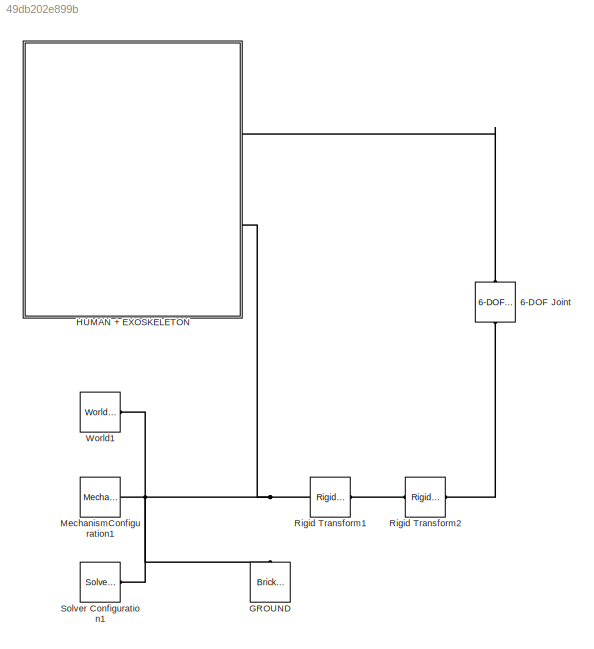
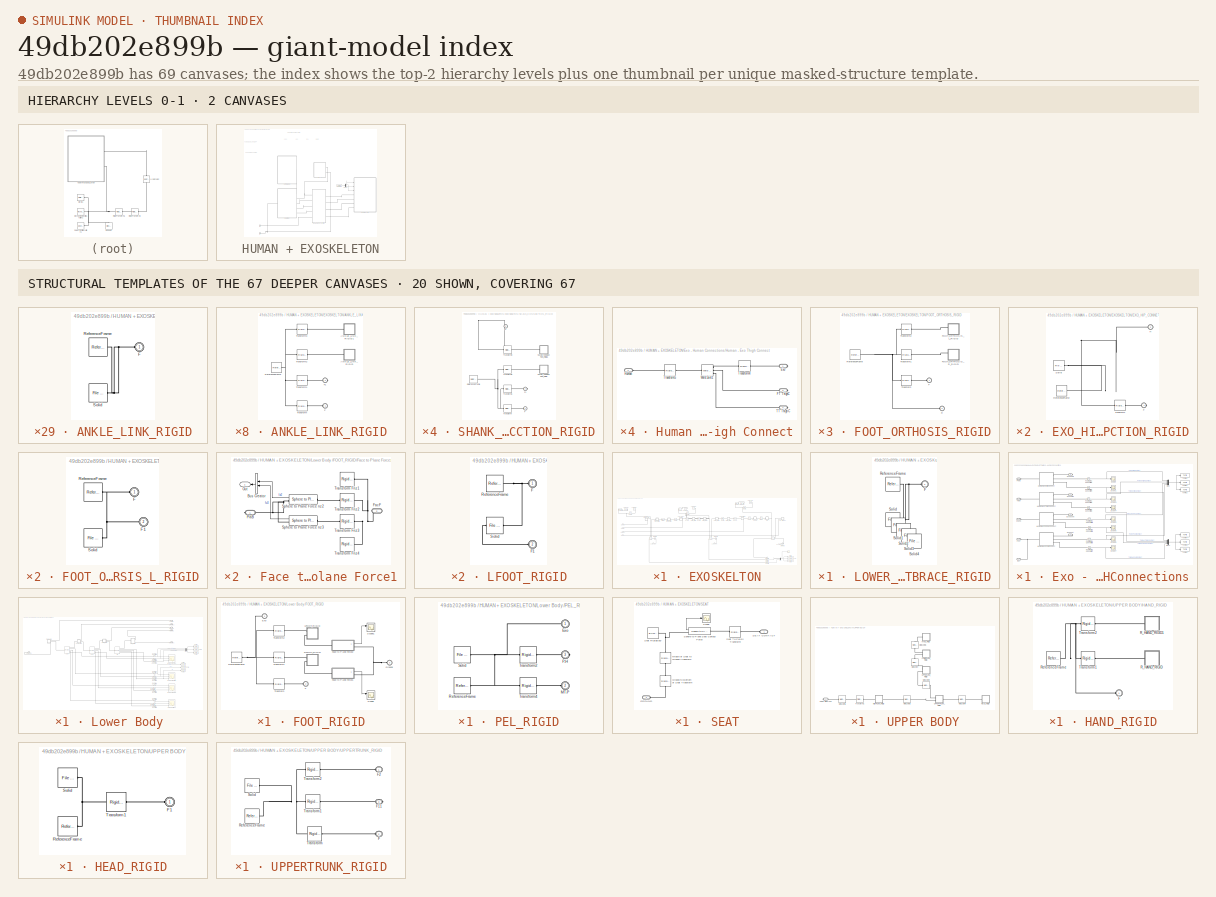
[diagram: thumbnail index - top-2 hierarchy levels (2 canvases) + 20 structural-template representatives of the remaining 67 canvases]
MODEL slx_49db202e899b
KIND model
CONFIG AbsTol = 1e-7
CONFIG EnableMultiTasking = off
CONFIG FixedStep = 0.001
CONFIG InitFcn = interpolating_angle_data;\nHuman_Plus_Exo_DataFile;
CONFIG MaxStep = 1e-2
CONFIG MinStep = auto
CONFIG RelTol = 1e-6
CONFIG SampleTimeConstraint = Unconstrained
CONFIG Solver = ode15s
CONFIG SolverName = ode15s
CONFIG StartTime = SimStart
CONFIG StopTime = SimStop
BLOCK [Reference] 6-DOF Joint  REF=sm_lib/Joints/6-DOF Joint
  Ports = [0, 0, 0, 0, 0, 1, 1]
  SourceBlock = sm_lib/Joints/6-DOF Joint
  SourceProductBaseCode = MS
  SourceProductName = Simscape Multibody
  SourceType = 6-DOF Joint
BLOCK [Reference] GROUND  REF=sm_lib/Body Elements/Brick Solid
  Ports = [0, 0, 0, 0, 0, 0, 1]
  SourceBlock = sm_lib/Body Elements/Brick Solid
  SourceProductBaseCode = MS
  SourceProductName = Simscape Multibody
  SourceType = Brick Solid
BLOCK [SubSystem] HUMAN + EXOSKELETON
  Ports = [0, 0, 0, 0, 0, 0, 2]
  RequestExecContextInheritance = off
BLOCK [Demux] HUMAN + EXOSKELETON/Demux
  DisplayOption = bar
  Outputs = 3
  Ports = [1, 3]
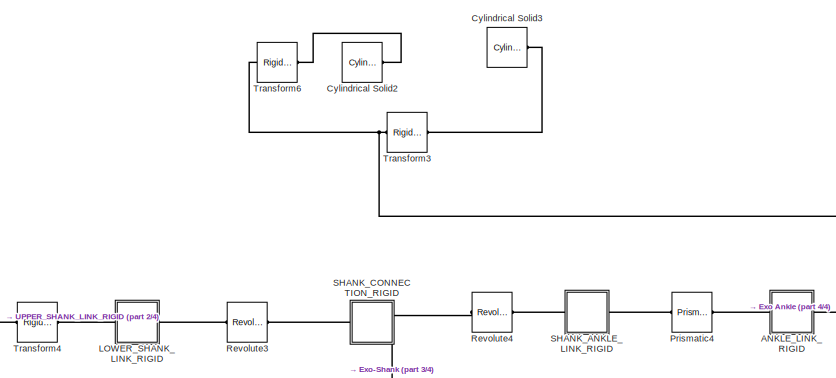
[diagram: HUMAN + EXOSKELETON/EXOSKELTON - part 1/4, top right region]
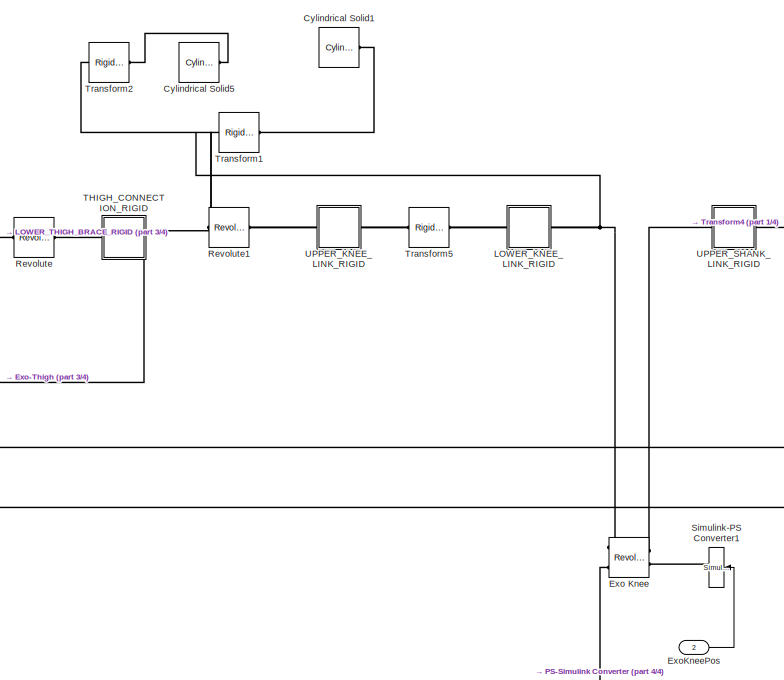
[diagram: HUMAN + EXOSKELETON/EXOSKELTON - part 2/4, central region]
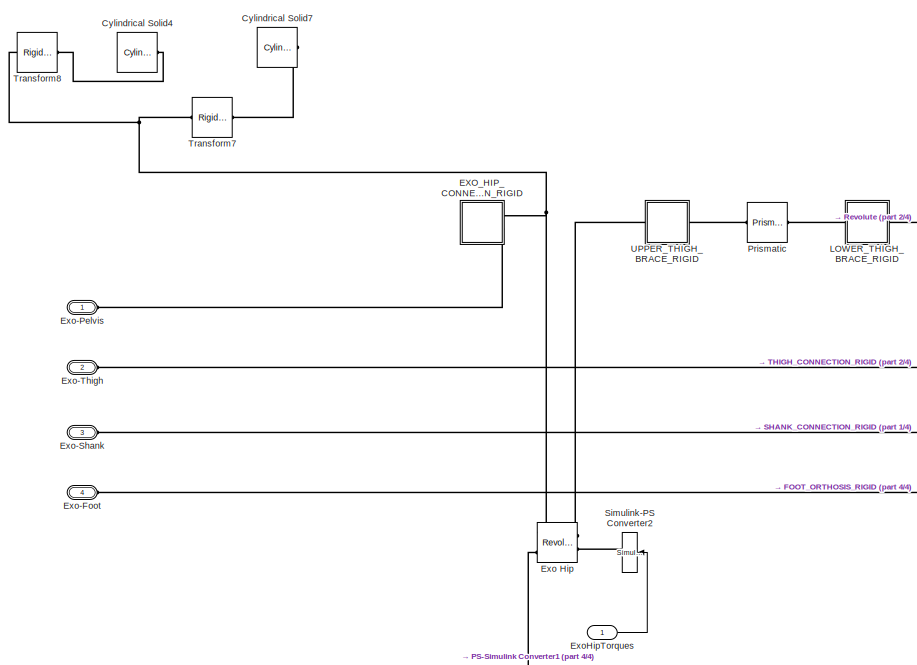
[diagram: HUMAN + EXOSKELETON/EXOSKELTON - part 3/4, middle left region]
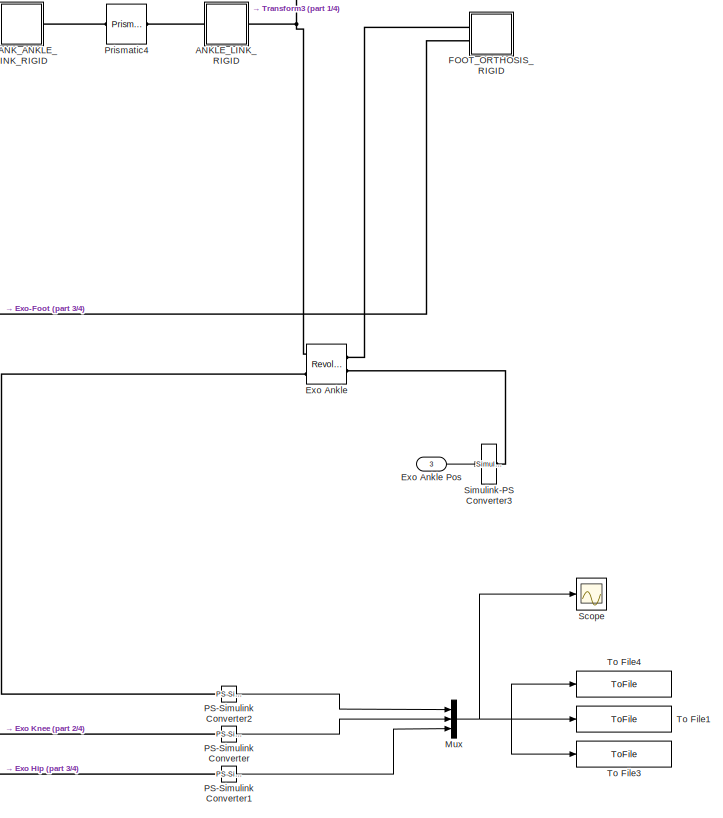
[diagram: HUMAN + EXOSKELETON/EXOSKELTON - part 4/4, middle right region]
BLOCK [SubSystem] HUMAN + EXOSKELETON/EXOSKELTON
  Ports = [3, 0, 0, 0, 0, 4]
  RequestExecContextInheritance = off
BLOCK [Inport] HUMAN + EXOSKELETON/EXOSKELTON/ Exo Ankle Pos
  IconDisplay = Port number
  Port = 3
BLOCK [SubSystem] HUMAN + EXOSKELETON/EXOSKELTON/ANKLE_LINK_RIGID
  Ports = [0, 0, 0, 0, 0, 1, 1]
  RequestExecContextInheritance = off
BLOCK [SubSystem] HUMAN + EXOSKELETON/EXOSKELTON/ANKLE_LINK_RIGID/ANKLE_LINK_RIGID
  Ports = [0, 0, 0, 0, 0, 1]
  RequestExecContextInheritance = off
BLOCK [PMIOPort] HUMAN + EXOSKELETON/EXOSKELTON/ANKLE_LINK_RIGID/ANKLE_LINK_RIGID/F
  Side = Left
BLOCK [Reference] HUMAN + EXOSKELETON/EXOSKELTON/ANKLE_LINK_RIGID/ANKLE_LINK_RIGID/ReferenceFrame  REF=sm_lib/Frames and
Transforms/Reference
Frame
  Ports = [0, 0, 0, 0, 0, 0, 1]
  SourceBlock = sm_lib/Frames and\nTransforms/Reference\nFrame
  SourceProductBaseCode = MS
  SourceProductName = Simscape Multibody
  SourceType = Reference\nFrame
BLOCK [Reference] HUMAN + EXOSKELETON/EXOSKELTON/ANKLE_LINK_RIGID/ANKLE_LINK_RIGID/Solid  REF=sm_lib/Body Elements/File Solid
  Ports = [0, 0, 0, 0, 0, 0, 1]
  SourceBlock = sm_lib/Body Elements/File Solid
  SourceProductBaseCode = MS
  SourceProductName = Simscape Multibody
  SourceType = File Solid
BLOCK [SubSystem] HUMAN + EXOSKELETON/EXOSKELTON/ANKLE_LINK_RIGID/ANKLE_LINK_RIGID1
  Ports = [0, 0, 0, 0, 0, 1]
  RequestExecContextInheritance = off
BLOCK [PMIOPort] HUMAN + EXOSKELETON/EXOSKELTON/ANKLE_LINK_RIGID/ANKLE_LINK_RIGID1/F
  Side = Left
BLOCK [Reference] HUMAN + EXOSKELETON/EXOSKELTON/ANKLE_LINK_RIGID/ANKLE_LINK_RIGID1/ReferenceFrame  REF=sm_lib/Frames and
Transforms/Reference
Frame
  Ports = [0, 0, 0, 0, 0, 0, 1]
  SourceBlock = sm_lib/Frames and\nTransforms/Reference\nFrame
  SourceProductBaseCode = MS
  SourceProductName = Simscape Multibody
  SourceType = Reference\nFrame
BLOCK [Reference] HUMAN + EXOSKELETON/EXOSKELTON/ANKLE_LINK_RIGID/ANKLE_LINK_RIGID1/Solid  REF=sm_lib/Body Elements/File Solid
  Ports = [0, 0, 0, 0, 0, 0, 1]
  SourceBlock = sm_lib/Body Elements/File Solid
  SourceProductBaseCode = MS
  SourceProductName = Simscape Multibody
  SourceType = File Solid
BLOCK [PMIOPort] HUMAN + EXOSKELETON/EXOSKELTON/ANKLE_LINK_RIGID/F
  Side = Left
BLOCK [PMIOPort] HUMAN + EXOSKELETON/EXOSKELTON/ANKLE_LINK_RIGID/F1
  Port = 2
  Side = Right
BLOCK [Reference] HUMAN + EXOSKELETON/EXOSKELTON/ANKLE_LINK_RIGID/ReferenceFrame  REF=sm_lib/Frames and
Transforms/Reference
Frame
  Ports = [0, 0, 0, 0, 0, 0, 1]
  SourceBlock = sm_lib/Frames and\nTransforms/Reference\nFrame
  SourceProductBaseCode = MS
  SourceProductName = Simscape Multibody
  SourceType = Reference\nFrame
BLOCK [Reference] HUMAN + EXOSKELETON/EXOSKELTON/ANKLE_LINK_RIGID/Transform  REF=sm_lib/Frames and
Transforms/Rigid
Transform
  Ports = [0, 0, 0, 0, 0, 1, 1]
  SourceBlock = sm_lib/Frames and\nTransforms/Rigid\nTransform
  SourceProductBaseCode = MS
  SourceProductName = Simscape Multibody
  SourceType = Rigid\nTransform
BLOCK [Reference] HUMAN + EXOSKELETON/EXOSKELTON/ANKLE_LINK_RIGID/Transform1  REF=sm_lib/Frames and
Transforms/Rigid
Transform
  Ports = [0, 0, 0, 0, 0, 1, 1]
  SourceBlock = sm_lib/Frames and\nTransforms/Rigid\nTransform
  SourceProductBaseCode = MS
  SourceProductName = Simscape Multibody
  SourceType = Rigid\nTransform
BLOCK [Reference] HUMAN + EXOSKELETON/EXOSKELTON/ANKLE_LINK_RIGID/Transform2  REF=sm_lib/Frames and
Transforms/Rigid
Transform
  Ports = [0, 0, 0, 0, 0, 1, 1]
  SourceBlock = sm_lib/Frames and\nTransforms/Rigid\nTransform
  SourceProductBaseCode = MS
  SourceProductName = Simscape Multibody
  SourceType = Rigid\nTransform
BLOCK [Reference] HUMAN + EXOSKELETON/EXOSKELTON/ANKLE_LINK_RIGID/Transform3  REF=sm_lib/Frames and
Transforms/Rigid
Transform
  Ports = [0, 0, 0, 0, 0, 1, 1]
  SourceBlock = sm_lib/Frames and\nTransforms/Rigid\nTransform
  SourceProductBaseCode = MS
  SourceProductName = Simscape Multibody
  SourceType = Rigid\nTransform
BLOCK [Reference] HUMAN + EXOSKELETON/EXOSKELTON/Cylindrical Solid1  REF=sm_lib/Body Elements/Cylindrical Solid
  Ports = [0, 0, 0, 0, 0, 1, 1]
  SourceBlock = sm_lib/Body Elements/Cylindrical Solid
  SourceProductBaseCode = MS
  SourceProductName = Simscape Multibody
  SourceType = Cylindrical Solid
BLOCK [Reference] HUMAN + EXOSKELETON/EXOSKELTON/Cylindrical Solid2  REF=sm_lib/Body Elements/Cylindrical Solid
  Ports = [0, 0, 0, 0, 0, 1, 1]
  SourceBlock = sm_lib/Body Elements/Cylindrical Solid
  SourceProductBaseCode = MS
  SourceProductName = Simscape Multibody
  SourceType = Cylindrical Solid
BLOCK [Reference] HUMAN + EXOSKELETON/EXOSKELTON/Cylindrical Solid3  REF=sm_lib/Body Elements/Cylindrical Solid
  Ports = [0, 0, 0, 0, 0, 1, 1]
  SourceBlock = sm_lib/Body Elements/Cylindrical Solid
  SourceProductBaseCode = MS
  SourceProductName = Simscape Multibody
  SourceType = Cylindrical Solid
BLOCK [Reference] HUMAN + EXOSKELETON/EXOSKELTON/Cylindrical Solid4  REF=sm_lib/Body Elements/Cylindrical Solid
  Ports = [0, 0, 0, 0, 0, 1, 1]
  SourceBlock = sm_lib/Body Elements/Cylindrical Solid
  SourceProductBaseCode = MS
  SourceProductName = Simscape Multibody
  SourceType = Cylindrical Solid
BLOCK [Reference] HUMAN + EXOSKELETON/EXOSKELTON/Cylindrical Solid5  REF=sm_lib/Body Elements/Cylindrical Solid
  Ports = [0, 0, 0, 0, 0, 1, 1]
  SourceBlock = sm_lib/Body Elements/Cylindrical Solid
  SourceProductBaseCode = MS
  SourceProductName = Simscape Multibody
  SourceType = Cylindrical Solid
BLOCK [Reference] HUMAN + EXOSKELETON/EXOSKELTON/Cylindrical Solid7  REF=sm_lib/Body Elements/Cylindrical Solid
  Ports = [0, 0, 0, 0, 0, 1, 1]
  SourceBlock = sm_lib/Body Elements/Cylindrical Solid
  SourceProductBaseCode = MS
  SourceProductName = Simscape Multibody
  SourceType = Cylindrical Solid
BLOCK [SubSystem] HUMAN + EXOSKELETON/EXOSKELTON/EXO_HIP_CONNECTION_RIGID
  Ports = [0, 0, 0, 0, 0, 0, 2]
  RequestExecContextInheritance = off
BLOCK [PMIOPort] HUMAN + EXOSKELETON/EXOSKELTON/EXO_HIP_CONNECTION_RIGID/F
  Side = Right
BLOCK [PMIOPort] HUMAN + EXOSKELETON/EXOSKELTON/EXO_HIP_CONNECTION_RIGID/H
  Port = 2
  Side = Right
BLOCK [Reference] HUMAN + EXOSKELETON/EXOSKELTON/EXO_HIP_CONNECTION_RIGID/ReferenceFrame  REF=sm_lib/Frames and
Transforms/Reference
Frame
  Ports = [0, 0, 0, 0, 0, 0, 1]
  SourceBlock = sm_lib/Frames and\nTransforms/Reference\nFrame
  SourceProductBaseCode = MS
  SourceProductName = Simscape Multibody
  SourceType = Reference\nFrame
BLOCK [Reference] HUMAN + EXOSKELETON/EXOSKELTON/EXO_HIP_CONNECTION_RIGID/Solid  REF=sm_lib/Body Elements/File Solid
  Ports = [0, 0, 0, 0, 0, 0, 1]
  SourceBlock = sm_lib/Body Elements/File Solid
  SourceProductBaseCode = MS
  SourceProductName = Simscape Multibody
  SourceType = File Solid
BLOCK [Reference] HUMAN + EXOSKELETON/EXOSKELTON/EXO_HIP_CONNECTION_RIGID/Transform  REF=sm_lib/Frames and
Transforms/Rigid
Transform
  Ports = [0, 0, 0, 0, 0, 1, 1]
  SourceBlock = sm_lib/Frames and\nTransforms/Rigid\nTransform
  SourceProductBaseCode = MS
  SourceProductName = Simscape Multibody
  SourceType = Rigid\nTransform
BLOCK [Reference] HUMAN + EXOSKELETON/EXOSKELTON/Exo Ankle  REF=sm_lib/Joints/Revolute Joint
  Ports = [0, 0, 0, 0, 0, 2, 3]
  SourceBlock = sm_lib/Joints/Revolute Joint
  SourceProductBaseCode = MS
  SourceProductName = Simscape Multibody
  SourceType = Revolute Joint
BLOCK [Reference] HUMAN + EXOSKELETON/EXOSKELTON/Exo Hip  REF=sm_lib/Joints/Revolute Joint
  Ports = [0, 0, 0, 0, 0, 2, 3]
  SourceBlock = sm_lib/Joints/Revolute Joint
  SourceProductBaseCode = MS
  SourceProductName = Simscape Multibody
  SourceType = Revolute Joint
BLOCK [Reference] HUMAN + EXOSKELETON/EXOSKELTON/Exo Knee  REF=sm_lib/Joints/Revolute Joint
  Ports = [0, 0, 0, 0, 0, 2, 3]
  SourceBlock = sm_lib/Joints/Revolute Joint
  SourceProductBaseCode = MS
  SourceProductName = Simscape Multibody
  SourceType = Revolute Joint
BLOCK [PMIOPort] HUMAN + EXOSKELETON/EXOSKELTON/Exo-Foot
  Port = 4
  Side = Left
BLOCK [PMIOPort] HUMAN + EXOSKELETON/EXOSKELTON/Exo-Pelvis
  Side = Left
BLOCK [PMIOPort] HUMAN + EXOSKELETON/EXOSKELTON/Exo-Shank
  Port = 3
  Side = Left
BLOCK [PMIOPort] HUMAN + EXOSKELETON/EXOSKELTON/Exo-Thigh
  Port = 2
  Side = Left
BLOCK [Inport] HUMAN + EXOSKELETON/EXOSKELTON/ExoHipTorques
  IconDisplay = Port number
BLOCK [Inport] HUMAN + EXOSKELETON/EXOSKELTON/ExoKneePos
  IconDisplay = Port number
  Port = 2
BLOCK [SubSystem] HUMAN + EXOSKELETON/EXOSKELTON/FOOT_ORTHOSIS_RIGID
  Ports = [0, 0, 0, 0, 0, 2]
  RequestExecContextInheritance = off
BLOCK [PMIOPort] HUMAN + EXOSKELETON/EXOSKELTON/FOOT_ORTHOSIS_RIGID/F
  Side = Left
BLOCK [SubSystem] HUMAN + EXOSKELETON/EXOSKELTON/FOOT_ORTHOSIS_RIGID/FOOT_ORTHOSIS_L_RIGID
  Ports = [0, 0, 0, 0, 0, 2]
  RequestExecContextInheritance = off
BLOCK [PMIOPort] HUMAN + EXOSKELETON/EXOSKELTON/FOOT_ORTHOSIS_RIGID/FOOT_ORTHOSIS_L_RIGID/F
  Side = Left
BLOCK [PMIOPort] HUMAN + EXOSKELETON/EXOSKELTON/FOOT_ORTHOSIS_RIGID/FOOT_ORTHOSIS_L_RIGID/F1
  Port = 2
  Side = Left
BLOCK [Reference] HUMAN + EXOSKELETON/EXOSKELTON/FOOT_ORTHOSIS_RIGID/FOOT_ORTHOSIS_L_RIGID/ReferenceFrame  REF=sm_lib/Frames and
Transforms/Reference
Frame
  Ports = [0, 0, 0, 0, 0, 0, 1]
  SourceBlock = sm_lib/Frames and\nTransforms/Reference\nFrame
  SourceProductBaseCode = MS
  SourceProductName = Simscape Multibody
  SourceType = Reference\nFrame
BLOCK [Reference] HUMAN + EXOSKELETON/EXOSKELTON/FOOT_ORTHOSIS_RIGID/FOOT_ORTHOSIS_L_RIGID/Solid  REF=sm_lib/Body Elements/File Solid
  Ports = [0, 0, 0, 0, 0, 0, 1]
  SourceBlock = sm_lib/Body Elements/File Solid
  SourceProductBaseCode = MS
  SourceProductName = Simscape Multibody
  SourceType = File Solid
BLOCK [SubSystem] HUMAN + EXOSKELETON/EXOSKELTON/FOOT_ORTHOSIS_RIGID/FOOT_ORTHOSIS_R_RIGID
  Ports = [0, 0, 0, 0, 0, 2]
  RequestExecContextInheritance = off
BLOCK [PMIOPort] HUMAN + EXOSKELETON/EXOSKELTON/FOOT_ORTHOSIS_RIGID/FOOT_ORTHOSIS_R_RIGID/F
  Side = Left
BLOCK [PMIOPort] HUMAN + EXOSKELETON/EXOSKELTON/FOOT_ORTHOSIS_RIGID/FOOT_ORTHOSIS_R_RIGID/F1
  Port = 2
  Side = Left
BLOCK [Reference] HUMAN + EXOSKELETON/EXOSKELTON/FOOT_ORTHOSIS_RIGID/FOOT_ORTHOSIS_R_RIGID/ReferenceFrame  REF=sm_lib/Frames and
Transforms/Reference
Frame
  Ports = [0, 0, 0, 0, 0, 0, 1]
  SourceBlock = sm_lib/Frames and\nTransforms/Reference\nFrame
  SourceProductBaseCode = MS
  SourceProductName = Simscape Multibody
  SourceType = Reference\nFrame
BLOCK [Reference] HUMAN + EXOSKELETON/EXOSKELTON/FOOT_ORTHOSIS_RIGID/FOOT_ORTHOSIS_R_RIGID/Solid  REF=sm_lib/Body Elements/File Solid
  Ports = [0, 0, 0, 0, 0, 0, 1]
  SourceBlock = sm_lib/Body Elements/File Solid
  SourceProductBaseCode = MS
  SourceProductName = Simscape Multibody
  SourceType = File Solid
BLOCK [PMIOPort] HUMAN + EXOSKELETON/EXOSKELTON/FOOT_ORTHOSIS_RIGID/R
  Port = 2
  Side = Left
BLOCK [Reference] HUMAN + EXOSKELETON/EXOSKELTON/FOOT_ORTHOSIS_RIGID/ReferenceFrame  REF=sm_lib/Frames and
Transforms/Reference
Frame
  Ports = [0, 0, 0, 0, 0, 0, 1]
  SourceBlock = sm_lib/Frames and\nTransforms/Reference\nFrame
  SourceProductBaseCode = MS
  SourceProductName = Simscape Multibody
  SourceType = Reference\nFrame
BLOCK [Reference] HUMAN + EXOSKELETON/EXOSKELTON/FOOT_ORTHOSIS_RIGID/Transform  REF=sm_lib/Frames and
Transforms/Rigid
Transform
  Ports = [0, 0, 0, 0, 0, 1, 1]
  SourceBlock = sm_lib/Frames and\nTransforms/Rigid\nTransform
  SourceProductBaseCode = MS
  SourceProductName = Simscape Multibody
  SourceType = Rigid\nTransform
BLOCK [Reference] HUMAN + EXOSKELETON/EXOSKELTON/FOOT_ORTHOSIS_RIGID/Transform1  REF=sm_lib/Frames and
Transforms/Rigid
Transform
  Ports = [0, 0, 0, 0, 0, 1, 1]
  SourceBlock = sm_lib/Frames and\nTransforms/Rigid\nTransform
  SourceProductBaseCode = MS
  SourceProductName = Simscape Multibody
  SourceType = Rigid\nTransform
BLOCK [Reference] HUMAN + EXOSKELETON/EXOSKELTON/FOOT_ORTHOSIS_RIGID/Transform2  REF=sm_lib/Frames and
Transforms/Rigid
Transform
  Ports = [0, 0, 0, 0, 0, 1, 1]
  SourceBlock = sm_lib/Frames and\nTransforms/Rigid\nTransform
  SourceProductBaseCode = MS
  SourceProductName = Simscape Multibody
  SourceType = Rigid\nTransform
BLOCK [SubSystem] HUMAN + EXOSKELETON/EXOSKELTON/LOWER_KNEE_LINK_RIGID
  Ports = [0, 0, 0, 0, 0, 1, 1]
  RequestExecContextInheritance = off
BLOCK [PMIOPort] HUMAN + EXOSKELETON/EXOSKELTON/LOWER_KNEE_LINK_RIGID/F
  Side = Left
BLOCK [PMIOPort] HUMAN + EXOSKELETON/EXOSKELTON/LOWER_KNEE_LINK_RIGID/F1
  Port = 2
  Side = Right
BLOCK [SubSystem] HUMAN + EXOSKELETON/EXOSKELTON/LOWER_KNEE_LINK_RIGID/LOWER_KNEE_LINK_RIGID
  Ports = [0, 0, 0, 0, 0, 1]
  RequestExecContextInheritance = off
BLOCK [PMIOPort] HUMAN + EXOSKELETON/EXOSKELTON/LOWER_KNEE_LINK_RIGID/LOWER_KNEE_LINK_RIGID/F
  Side = Left
BLOCK [Reference] HUMAN + EXOSKELETON/EXOSKELTON/LOWER_KNEE_LINK_RIGID/LOWER_KNEE_LINK_RIGID/ReferenceFrame  REF=sm_lib/Frames and
Transforms/Reference
Frame
  Ports = [0, 0, 0, 0, 0, 0, 1]
  SourceBlock = sm_lib/Frames and\nTransforms/Reference\nFrame
  SourceProductBaseCode = MS
  SourceProductName = Simscape Multibody
  SourceType = Reference\nFrame
BLOCK [Reference] HUMAN + EXOSKELETON/EXOSKELTON/LOWER_KNEE_LINK_RIGID/LOWER_KNEE_LINK_RIGID/Solid  REF=sm_lib/Body Elements/File Solid
  Ports = [0, 0, 0, 0, 0, 0, 1]
  SourceBlock = sm_lib/Body Elements/File Solid
  SourceProductBaseCode = MS
  SourceProductName = Simscape Multibody
  SourceType = File Solid
BLOCK [SubSystem] HUMAN + EXOSKELETON/EXOSKELTON/LOWER_KNEE_LINK_RIGID/LOWER_KNEE_LINK_RIGID1
  Ports = [0, 0, 0, 0, 0, 1]
  RequestExecContextInheritance = off
BLOCK [PMIOPort] HUMAN + EXOSKELETON/EXOSKELTON/LOWER_KNEE_LINK_RIGID/LOWER_KNEE_LINK_RIGID1/F
  Side = Left
BLOCK [Reference] HUMAN + EXOSKELETON/EXOSKELTON/LOWER_KNEE_LINK_RIGID/LOWER_KNEE_LINK_RIGID1/ReferenceFrame  REF=sm_lib/Frames and
Transforms/Reference
Frame
  Ports = [0, 0, 0, 0, 0, 0, 1]
  SourceBlock = sm_lib/Frames and\nTransforms/Reference\nFrame
  SourceProductBaseCode = MS
  SourceProductName = Simscape Multibody
  SourceType = Reference\nFrame
BLOCK [Reference] HUMAN + EXOSKELETON/EXOSKELTON/LOWER_KNEE_LINK_RIGID/LOWER_KNEE_LINK_RIGID1/Solid  REF=sm_lib/Body Elements/File Solid
  Ports = [0, 0, 0, 0, 0, 0, 1]
  SourceBlock = sm_lib/Body Elements/File Solid
  SourceProductBaseCode = MS
  SourceProductName = Simscape Multibody
  SourceType = File Solid
BLOCK [Reference] HUMAN + EXOSKELETON/EXOSKELTON/LOWER_KNEE_LINK_RIGID/ReferenceFrame  REF=sm_lib/Frames and
Transforms/Reference
Frame
  Ports = [0, 0, 0, 0, 0, 0, 1]
  SourceBlock = sm_lib/Frames and\nTransforms/Reference\nFrame
  SourceProductBaseCode = MS
  SourceProductName = Simscape Multibody
  SourceType = Reference\nFrame
BLOCK [Reference] HUMAN + EXOSKELETON/EXOSKELTON/LOWER_KNEE_LINK_RIGID/Transform  REF=sm_lib/Frames and
Transforms/Rigid
Transform
  Ports = [0, 0, 0, 0, 0, 1, 1]
  SourceBlock = sm_lib/Frames and\nTransforms/Rigid\nTransform
  SourceProductBaseCode = MS
  SourceProductName = Simscape Multibody
  SourceType = Rigid\nTransform
BLOCK [Reference] HUMAN + EXOSKELETON/EXOSKELTON/LOWER_KNEE_LINK_RIGID/Transform1  REF=sm_lib/Frames and
Transforms/Rigid
Transform
  Ports = [0, 0, 0, 0, 0, 1, 1]
  SourceBlock = sm_lib/Frames and\nTransforms/Rigid\nTransform
  SourceProductBaseCode = MS
  SourceProductName = Simscape Multibody
  SourceType = Rigid\nTransform
BLOCK [Reference] HUMAN + EXOSKELETON/EXOSKELTON/LOWER_KNEE_LINK_RIGID/Transform2  REF=sm_lib/Frames and
Transforms/Rigid
Transform
  Ports = [0, 0, 0, 0, 0, 1, 1]
  SourceBlock = sm_lib/Frames and\nTransforms/Rigid\nTransform
  SourceProductBaseCode = MS
  SourceProductName = Simscape Multibody
  SourceType = Rigid\nTransform
BLOCK [Reference] HUMAN + EXOSKELETON/EXOSKELTON/LOWER_KNEE_LINK_RIGID/Transform3  REF=sm_lib/Frames and
Transforms/Rigid
Transform
  Ports = [0, 0, 0, 0, 0, 1, 1]
  SourceBlock = sm_lib/Frames and\nTransforms/Rigid\nTransform
  SourceProductBaseCode = MS
  SourceProductName = Simscape Multibody
  SourceType = Rigid\nTransform
BLOCK [SubSystem] HUMAN + EXOSKELETON/EXOSKELTON/LOWER_SHANK_LINK_RIGID
  Ports = [0, 0, 0, 0, 0, 1, 1]
  RequestExecContextInheritance = off
BLOCK [PMIOPort] HUMAN + EXOSKELETON/EXOSKELTON/LOWER_SHANK_LINK_RIGID/F
  Side = Left
BLOCK [PMIOPort] HUMAN + EXOSKELETON/EXOSKELTON/LOWER_SHANK_LINK_RIGID/F1
  Port = 2
  Side = Right
BLOCK [SubSystem] HUMAN + EXOSKELETON/EXOSKELTON/LOWER_SHANK_LINK_RIGID/LOWER_SHANK_LINK_RIGID
  Ports = [0, 0, 0, 0, 0, 1]
  RequestExecContextInheritance = off
BLOCK [PMIOPort] HUMAN + EXOSKELETON/EXOSKELTON/LOWER_SHANK_LINK_RIGID/LOWER_SHANK_LINK_RIGID/F
  Side = Left
BLOCK [Reference] HUMAN + EXOSKELETON/EXOSKELTON/LOWER_SHANK_LINK_RIGID/LOWER_SHANK_LINK_RIGID/ReferenceFrame  REF=sm_lib/Frames and
Transforms/Reference
Frame
  Ports = [0, 0, 0, 0, 0, 0, 1]
  SourceBlock = sm_lib/Frames and\nTransforms/Reference\nFrame
  SourceProductBaseCode = MS
  SourceProductName = Simscape Multibody
  SourceType = Reference\nFrame
BLOCK [Reference] HUMAN + EXOSKELETON/EXOSKELTON/LOWER_SHANK_LINK_RIGID/LOWER_SHANK_LINK_RIGID/Solid  REF=sm_lib/Body Elements/File Solid
  Ports = [0, 0, 0, 0, 0, 0, 1]
  SourceBlock = sm_lib/Body Elements/File Solid
  SourceProductBaseCode = MS
  SourceProductName = Simscape Multibody
  SourceType = File Solid
BLOCK [SubSystem] HUMAN + EXOSKELETON/EXOSKELTON/LOWER_SHANK_LINK_RIGID/LOWER_SHANK_LINK_RIGID1
  Ports = [0, 0, 0, 0, 0, 1]
  RequestExecContextInheritance = off
BLOCK [PMIOPort] HUMAN + EXOSKELETON/EXOSKELTON/LOWER_SHANK_LINK_RIGID/LOWER_SHANK_LINK_RIGID1/F
  Side = Left
BLOCK [Reference] HUMAN + EXOSKELETON/EXOSKELTON/LOWER_SHANK_LINK_RIGID/LOWER_SHANK_LINK_RIGID1/ReferenceFrame  REF=sm_lib/Frames and
Transforms/Reference
Frame
  Ports = [0, 0, 0, 0, 0, 0, 1]
  SourceBlock = sm_lib/Frames and\nTransforms/Reference\nFrame
  SourceProductBaseCode = MS
  SourceProductName = Simscape Multibody
  SourceType = Reference\nFrame
BLOCK [Reference] HUMAN + EXOSKELETON/EXOSKELTON/LOWER_SHANK_LINK_RIGID/LOWER_SHANK_LINK_RIGID1/Solid  REF=sm_lib/Body Elements/File Solid
  Ports = [0, 0, 0, 0, 0, 0, 1]
  SourceBlock = sm_lib/Body Elements/File Solid
  SourceProductBaseCode = MS
  SourceProductName = Simscape Multibody
  SourceType = File Solid
BLOCK [Reference] HUMAN + EXOSKELETON/EXOSKELTON/LOWER_SHANK_LINK_RIGID/ReferenceFrame  REF=sm_lib/Frames and
Transforms/Reference
Frame
  Ports = [0, 0, 0, 0, 0, 0, 1]
  SourceBlock = sm_lib/Frames and\nTransforms/Reference\nFrame
  SourceProductBaseCode = MS
  SourceProductName = Simscape Multibody
  SourceType = Reference\nFrame
BLOCK [Reference] HUMAN + EXOSKELETON/EXOSKELTON/LOWER_SHANK_LINK_RIGID/Transform  REF=sm_lib/Frames and
Transforms/Rigid
Transform
  Ports = [0, 0, 0, 0, 0, 1, 1]
  SourceBlock = sm_lib/Frames and\nTransforms/Rigid\nTransform
  SourceProductBaseCode = MS
  SourceProductName = Simscape Multibody
  SourceType = Rigid\nTransform
BLOCK [Reference] HUMAN + EXOSKELETON/EXOSKELTON/LOWER_SHANK_LINK_RIGID/Transform1  REF=sm_lib/Frames and
Transforms/Rigid
Transform
  Ports = [0, 0, 0, 0, 0, 1, 1]
  SourceBlock = sm_lib/Frames and\nTransforms/Rigid\nTransform
  SourceProductBaseCode = MS
  SourceProductName = Simscape Multibody
  SourceType = Rigid\nTransform
BLOCK [Reference] HUMAN + EXOSKELETON/EXOSKELTON/LOWER_SHANK_LINK_RIGID/Transform2  REF=sm_lib/Frames and
Transforms/Rigid
Transform
  Ports = [0, 0, 0, 0, 0, 1, 1]
  SourceBlock = sm_lib/Frames and\nTransforms/Rigid\nTransform
  SourceProductBaseCode = MS
  SourceProductName = Simscape Multibody
  SourceType = Rigid\nTransform
BLOCK [Reference] HUMAN + EXOSKELETON/EXOSKELTON/LOWER_SHANK_LINK_RIGID/Transform3  REF=sm_lib/Frames and
Transforms/Rigid
Transform
  Ports = [0, 0, 0, 0, 0, 1, 1]
  SourceBlock = sm_lib/Frames and\nTransforms/Rigid\nTransform
  SourceProductBaseCode = MS
  SourceProductName = Simscape Multibody
  SourceType = Rigid\nTransform
BLOCK [SubSystem] HUMAN + EXOSKELETON/EXOSKELTON/LOWER_THIGH_BRACE_RIGID
  Ports = [0, 0, 0, 0, 0, 1, 1]
  RequestExecContextInheritance = off
BLOCK [PMIOPort] HUMAN + EXOSKELETON/EXOSKELTON/LOWER_THIGH_BRACE_RIGID/F
  Side = Left
BLOCK [PMIOPort] HUMAN + EXOSKELETON/EXOSKELTON/LOWER_THIGH_BRACE_RIGID/F1
  Port = 2
  Side = Right
BLOCK [SubSystem] HUMAN + EXOSKELETON/EXOSKELTON/LOWER_THIGH_BRACE_RIGID/LOWER_THIGH_BRACE_RIGID
  Ports = [0, 0, 0, 0, 0, 1]
  RequestExecContextInheritance = off
BLOCK [PMIOPort] HUMAN + EXOSKELETON/EXOSKELTON/LOWER_THIGH_BRACE_RIGID/LOWER_THIGH_BRACE_RIGID/F
  Side = Left
BLOCK [Reference] HUMAN + EXOSKELETON/EXOSKELTON/LOWER_THIGH_BRACE_RIGID/LOWER_THIGH_BRACE_RIGID/ReferenceFrame  REF=sm_lib/Frames and
Transforms/Reference
Frame
  Ports = [0, 0, 0, 0, 0, 0, 1]
  SourceBlock = sm_lib/Frames and\nTransforms/Reference\nFrame
  SourceProductBaseCode = MS
  SourceProductName = Simscape Multibody
  SourceType = Reference\nFrame
BLOCK [Reference] HUMAN + EXOSKELETON/EXOSKELTON/LOWER_THIGH_BRACE_RIGID/LOWER_THIGH_BRACE_RIGID/Solid  REF=sm_lib/Body Elements/File Solid
  Ports = [0, 0, 0, 0, 0, 0, 1]
  SourceBlock = sm_lib/Body Elements/File Solid
  SourceProductBaseCode = MS
  SourceProductName = Simscape Multibody
  SourceType = File Solid
BLOCK [Reference] HUMAN + EXOSKELETON/EXOSKELTON/LOWER_THIGH_BRACE_RIGID/LOWER_THIGH_BRACE_RIGID/Solid1  REF=sm_lib/Body Elements/File Solid
  Ports = [0, 0, 0, 0, 0, 0, 1]
  SourceBlock = sm_lib/Body Elements/File Solid
  SourceProductBaseCode = MS
  SourceProductName = Simscape Multibody
  SourceType = File Solid
BLOCK [Reference] HUMAN + EXOSKELETON/EXOSKELTON/LOWER_THIGH_BRACE_RIGID/LOWER_THIGH_BRACE_RIGID/Solid2  REF=sm_lib/Body Elements/File Solid
  Ports = [0, 0, 0, 0, 0, 0, 1]
  SourceBlock = sm_lib/Body Elements/File Solid
  SourceProductBaseCode = MS
  SourceProductName = Simscape Multibody
  SourceType = File Solid
BLOCK [Reference] HUMAN + EXOSKELETON/EXOSKELTON/LOWER_THIGH_BRACE_RIGID/LOWER_THIGH_BRACE_RIGID/Solid3  REF=sm_lib/Body Elements/File Solid
  Ports = [0, 0, 0, 0, 0, 0, 1]
  SourceBlock = sm_lib/Body Elements/File Solid
  SourceProductBaseCode = MS
  SourceProductName = Simscape Multibody
  SourceType = File Solid
BLOCK [Reference] HUMAN + EXOSKELETON/EXOSKELTON/LOWER_THIGH_BRACE_RIGID/LOWER_THIGH_BRACE_RIGID/Solid4  REF=sm_lib/Body Elements/File Solid
  Ports = [0, 0, 0, 0, 0, 0, 1]
  SourceBlock = sm_lib/Body Elements/File Solid
  SourceProductBaseCode = MS
  SourceProductName = Simscape Multibody
  SourceType = File Solid
BLOCK [SubSystem] HUMAN + EXOSKELETON/EXOSKELTON/LOWER_THIGH_BRACE_RIGID/LOWER_THIGH_BRACE_RIGID1
  Ports = [0, 0, 0, 0, 0, 1]
  RequestExecContextInheritance = off
BLOCK [PMIOPort] HUMAN + EXOSKELETON/EXOSKELTON/LOWER_THIGH_BRACE_RIGID/LOWER_THIGH_BRACE_RIGID1/F
  Side = Left
BLOCK [Reference] HUMAN + EXOSKELETON/EXOSKELTON/LOWER_THIGH_BRACE_RIGID/LOWER_THIGH_BRACE_RIGID1/ReferenceFrame  REF=sm_lib/Frames and
Transforms/Reference
Frame
  Ports = [0, 0, 0, 0, 0, 0, 1]
  SourceBlock = sm_lib/Frames and\nTransforms/Reference\nFrame
  SourceProductBaseCode = MS
  SourceProductName = Simscape Multibody
  SourceType = Reference\nFrame
BLOCK [Reference] HUMAN + EXOSKELETON/EXOSKELTON/LOWER_THIGH_BRACE_RIGID/LOWER_THIGH_BRACE_RIGID1/Solid  REF=sm_lib/Body Elements/File Solid
  Ports = [0, 0, 0, 0, 0, 0, 1]
  SourceBlock = sm_lib/Body Elements/File Solid
  SourceProductBaseCode = MS
  SourceProductName = Simscape Multibody
  SourceType = File Solid
BLOCK [Reference] HUMAN + EXOSKELETON/EXOSKELTON/LOWER_THIGH_BRACE_RIGID/ReferenceFrame  REF=sm_lib/Frames and
Transforms/Reference
Frame
  Ports = [0, 0, 0, 0, 0, 0, 1]
  SourceBlock = sm_lib/Frames and\nTransforms/Reference\nFrame
  SourceProductBaseCode = MS
  SourceProductName = Simscape Multibody
  SourceType = Reference\nFrame
BLOCK [Reference] HUMAN + EXOSKELETON/EXOSKELTON/LOWER_THIGH_BRACE_RIGID/Transform  REF=sm_lib/Frames and
Transforms/Rigid
Transform
  Ports = [0, 0, 0, 0, 0, 1, 1]
  SourceBlock = sm_lib/Frames and\nTransforms/Rigid\nTransform
  SourceProductBaseCode = MS
  SourceProductName = Simscape Multibody
  SourceType = Rigid\nTransform
BLOCK [Reference] HUMAN + EXOSKELETON/EXOSKELTON/LOWER_THIGH_BRACE_RIGID/Transform1  REF=sm_lib/Frames and
Transforms/Rigid
Transform
  Ports = [0, 0, 0, 0, 0, 1, 1]
  SourceBlock = sm_lib/Frames and\nTransforms/Rigid\nTransform
  SourceProductBaseCode = MS
  SourceProductName = Simscape Multibody
  SourceType = Rigid\nTransform
BLOCK [Reference] HUMAN + EXOSKELETON/EXOSKELTON/LOWER_THIGH_BRACE_RIGID/Transform2  REF=sm_lib/Frames and
Transforms/Rigid
Transform
  Ports = [0, 0, 0, 0, 0, 1, 1]
  SourceBlock = sm_lib/Frames and\nTransforms/Rigid\nTransform
  SourceProductBaseCode = MS
  SourceProductName = Simscape Multibody
  SourceType = Rigid\nTransform
BLOCK [Reference] HUMAN + EXOSKELETON/EXOSKELTON/LOWER_THIGH_BRACE_RIGID/Transform3  REF=sm_lib/Frames and
Transforms/Rigid
Transform
  Ports = [0, 0, 0, 0, 0, 1, 1]
  SourceBlock = sm_lib/Frames and\nTransforms/Rigid\nTransform
  SourceProductBaseCode = MS
  SourceProductName = Simscape Multibody
  SourceType = Rigid\nTransform
BLOCK [Mux] HUMAN + EXOSKELETON/EXOSKELTON/Mux
  DisplayOption = bar
  Inputs = 3
  Ports = [3, 1]
BLOCK [Reference] HUMAN + EXOSKELETON/EXOSKELTON/PS-Simulink Converter  REF=nesl_utility/PS-Simulink
Converter
  Ports = [0, 1, 0, 0, 0, 1]
  SourceBlock = nesl_utility/PS-Simulink\nConverter
  SourceProductBaseCode = SS
  SourceProductName = Simscape
  SourceType = PS-Simulink\nConverter
BLOCK [Reference] HUMAN + EXOSKELETON/EXOSKELTON/PS-Simulink Converter1  REF=nesl_utility/PS-Simulink
Converter
  Ports = [0, 1, 0, 0, 0, 1]
  SourceBlock = nesl_utility/PS-Simulink\nConverter
  SourceProductBaseCode = SS
  SourceProductName = Simscape
  SourceType = PS-Simulink\nConverter
BLOCK [Reference] HUMAN + EXOSKELETON/EXOSKELTON/PS-Simulink Converter2  REF=nesl_utility/PS-Simulink
Converter
  Ports = [0, 1, 0, 0, 0, 1]
  SourceBlock = nesl_utility/PS-Simulink\nConverter
  SourceProductBaseCode = SS
  SourceProductName = Simscape
  SourceType = PS-Simulink\nConverter
BLOCK [Reference] HUMAN + EXOSKELETON/EXOSKELTON/Prismatic  REF=sm_lib/Joints/Prismatic
Joint
  Ports = [0, 0, 0, 0, 0, 1, 1]
  SourceBlock = sm_lib/Joints/Prismatic\nJoint
  SourceProductBaseCode = MS
  SourceProductName = Simscape Multibody
  SourceType = Prismatic\nJoint
BLOCK [Reference] HUMAN + EXOSKELETON/EXOSKELTON/Prismatic4  REF=sm_lib/Joints/Prismatic
Joint
  Ports = [0, 0, 0, 0, 0, 1, 1]
  SourceBlock = sm_lib/Joints/Prismatic\nJoint
  SourceProductBaseCode = MS
  SourceProductName = Simscape Multibody
  SourceType = Prismatic\nJoint
BLOCK [Reference] HUMAN + EXOSKELETON/EXOSKELTON/Revolute  REF=sm_lib/Joints/Revolute Joint
  Ports = [0, 0, 0, 0, 0, 1, 1]
  SourceBlock = sm_lib/Joints/Revolute Joint
  SourceProductBaseCode = MS
  SourceProductName = Simscape Multibody
  SourceType = Revolute Joint
BLOCK [Reference] HUMAN + EXOSKELETON/EXOSKELTON/Revolute1  REF=sm_lib/Joints/Revolute Joint
  Ports = [0, 0, 0, 0, 0, 1, 1]
  SourceBlock = sm_lib/Joints/Revolute Joint
  SourceProductBaseCode = MS
  SourceProductName = Simscape Multibody
  SourceType = Revolute Joint
BLOCK [Reference] HUMAN + EXOSKELETON/EXOSKELTON/Revolute3  REF=sm_lib/Joints/Revolute Joint
  Ports = [0, 0, 0, 0, 0, 1, 1]
  SourceBlock = sm_lib/Joints/Revolute Joint
  SourceProductBaseCode = MS
  SourceProductName = Simscape Multibody
  SourceType = Revolute Joint
BLOCK [Reference] HUMAN + EXOSKELETON/EXOSKELTON/Revolute4  REF=sm_lib/Joints/Revolute Joint
  Ports = [0, 0, 0, 0, 0, 1, 1]
  SourceBlock = sm_lib/Joints/Revolute Joint
  SourceProductBaseCode = MS
  SourceProductName = Simscape Multibody
  SourceType = Revolute Joint
BLOCK [SubSystem] HUMAN + EXOSKELETON/EXOSKELTON/SHANK_ANKLE_LINK_RIGID
  Ports = [0, 0, 0, 0, 0, 1, 1]
  RequestExecContextInheritance = off
BLOCK [PMIOPort] HUMAN + EXOSKELETON/EXOSKELTON/SHANK_ANKLE_LINK_RIGID/F
  Side = Left
BLOCK [PMIOPort] HUMAN + EXOSKELETON/EXOSKELTON/SHANK_ANKLE_LINK_RIGID/F1
  Port = 2
  Side = Right
BLOCK [Reference] HUMAN + EXOSKELETON/EXOSKELTON/SHANK_ANKLE_LINK_RIGID/ReferenceFrame  REF=sm_lib/Frames and
Transforms/Reference
Frame
  Ports = [0, 0, 0, 0, 0, 0, 1]
  SourceBlock = sm_lib/Frames and\nTransforms/Reference\nFrame
  SourceProductBaseCode = MS
  SourceProductName = Simscape Multibody
  SourceType = Reference\nFrame
BLOCK [SubSystem] HUMAN + EXOSKELETON/EXOSKELTON/SHANK_ANKLE_LINK_RIGID/SHANK_ANKLE_LINK_RIGID
  Ports = [0, 0, 0, 0, 0, 1]
  RequestExecContextInheritance = off
BLOCK [PMIOPort] HUMAN + EXOSKELETON/EXOSKELTON/SHANK_ANKLE_LINK_RIGID/SHANK_ANKLE_LINK_RIGID/F
  Side = Left
BLOCK [Reference] HUMAN + EXOSKELETON/EXOSKELTON/SHANK_ANKLE_LINK_RIGID/SHANK_ANKLE_LINK_RIGID/ReferenceFrame  REF=sm_lib/Frames and
Transforms/Reference
Frame
  Ports = [0, 0, 0, 0, 0, 0, 1]
  SourceBlock = sm_lib/Frames and\nTransforms/Reference\nFrame
  SourceProductBaseCode = MS
  SourceProductName = Simscape Multibody
  SourceType = Reference\nFrame
BLOCK [Reference] HUMAN + EXOSKELETON/EXOSKELTON/SHANK_ANKLE_LINK_RIGID/SHANK_ANKLE_LINK_RIGID/Solid  REF=sm_lib/Body Elements/File Solid
  Ports = [0, 0, 0, 0, 0, 0, 1]
  SourceBlock = sm_lib/Body Elements/File Solid
  SourceProductBaseCode = MS
  SourceProductName = Simscape Multibody
  SourceType = File Solid
BLOCK [SubSystem] HUMAN + EXOSKELETON/EXOSKELTON/SHANK_ANKLE_LINK_RIGID/SHANK_ANKLE_LINK_RIGID1
  Ports = [0, 0, 0, 0, 0, 1]
  RequestExecContextInheritance = off
BLOCK [PMIOPort] HUMAN + EXOSKELETON/EXOSKELTON/SHANK_ANKLE_LINK_RIGID/SHANK_ANKLE_LINK_RIGID1/F
  Side = Left
BLOCK [Reference] HUMAN + EXOSKELETON/EXOSKELTON/SHANK_ANKLE_LINK_RIGID/SHANK_ANKLE_LINK_RIGID1/ReferenceFrame  REF=sm_lib/Frames and
Transforms/Reference
Frame
  Ports = [0, 0, 0, 0, 0, 0, 1]
  SourceBlock = sm_lib/Frames and\nTransforms/Reference\nFrame
  SourceProductBaseCode = MS
  SourceProductName = Simscape Multibody
  SourceType = Reference\nFrame
BLOCK [Reference] HUMAN + EXOSKELETON/EXOSKELTON/SHANK_ANKLE_LINK_RIGID/SHANK_ANKLE_LINK_RIGID1/Solid  REF=sm_lib/Body Elements/File Solid
  Ports = [0, 0, 0, 0, 0, 0, 1]
  SourceBlock = sm_lib/Body Elements/File Solid
  SourceProductBaseCode = MS
  SourceProductName = Simscape Multibody
  SourceType = File Solid
BLOCK [Reference] HUMAN + EXOSKELETON/EXOSKELTON/SHANK_ANKLE_LINK_RIGID/Transform  REF=sm_lib/Frames and
Transforms/Rigid
Transform
  Ports = [0, 0, 0, 0, 0, 1, 1]
  SourceBlock = sm_lib/Frames and\nTransforms/Rigid\nTransform
  SourceProductBaseCode = MS
  SourceProductName = Simscape Multibody
  SourceType = Rigid\nTransform
BLOCK [Reference] HUMAN + EXOSKELETON/EXOSKELTON/SHANK_ANKLE_LINK_RIGID/Transform1  REF=sm_lib/Frames and
Transforms/Rigid
Transform
  Ports = [0, 0, 0, 0, 0, 1, 1]
  SourceBlock = sm_lib/Frames and\nTransforms/Rigid\nTransform
  SourceProductBaseCode = MS
  SourceProductName = Simscape Multibody
  SourceType = Rigid\nTransform
BLOCK [Reference] HUMAN + EXOSKELETON/EXOSKELTON/SHANK_ANKLE_LINK_RIGID/Transform2  REF=sm_lib/Frames and
Transforms/Rigid
Transform
  Ports = [0, 0, 0, 0, 0, 1, 1]
  SourceBlock = sm_lib/Frames and\nTransforms/Rigid\nTransform
  SourceProductBaseCode = MS
  SourceProductName = Simscape Multibody
  SourceType = Rigid\nTransform
BLOCK [Reference] HUMAN + EXOSKELETON/EXOSKELTON/SHANK_ANKLE_LINK_RIGID/Transform3  REF=sm_lib/Frames and
Transforms/Rigid
Transform
  Ports = [0, 0, 0, 0, 0, 1, 1]
  SourceBlock = sm_lib/Frames and\nTransforms/Rigid\nTransform
  SourceProductBaseCode = MS
  SourceProductName = Simscape Multibody
  SourceType = Rigid\nTransform
BLOCK [SubSystem] HUMAN + EXOSKELETON/EXOSKELTON/SHANK_CONNECTION_RIGID
  Ports = [0, 0, 0, 0, 0, 1, 2]
  RequestExecContextInheritance = off
BLOCK [PMIOPort] HUMAN + EXOSKELETON/EXOSKELTON/SHANK_CONNECTION_RIGID/F
  Side = Left
BLOCK [PMIOPort] HUMAN + EXOSKELETON/EXOSKELTON/SHANK_CONNECTION_RIGID/F1
  Port = 2
  Side = Right
BLOCK [PMIOPort] HUMAN + EXOSKELETON/EXOSKELTON/SHANK_CONNECTION_RIGID/H
  Port = 3
  Side = Right
BLOCK [Reference] HUMAN + EXOSKELETON/EXOSKELTON/SHANK_CONNECTION_RIGID/ReferenceFrame  REF=sm_lib/Frames and
Transforms/Reference
Frame
  Ports = [0, 0, 0, 0, 0, 0, 1]
  SourceBlock = sm_lib/Frames and\nTransforms/Reference\nFrame
  SourceProductBaseCode = MS
  SourceProductName = Simscape Multibody
  SourceType = Reference\nFrame
BLOCK [SubSystem] HUMAN + EXOSKELETON/EXOSKELTON/SHANK_CONNECTION_RIGID/SHANK_CONNECTION_RIGID
  Ports = [0, 0, 0, 0, 0, 1]
  RequestExecContextInheritance = off
BLOCK [PMIOPort] HUMAN + EXOSKELETON/EXOSKELTON/SHANK_CONNECTION_RIGID/SHANK_CONNECTION_RIGID/F
  Side = Left
BLOCK [Reference] HUMAN + EXOSKELETON/EXOSKELTON/SHANK_CONNECTION_RIGID/SHANK_CONNECTION_RIGID/ReferenceFrame  REF=sm_lib/Frames and
Transforms/Reference
Frame
  Ports = [0, 0, 0, 0, 0, 0, 1]
  SourceBlock = sm_lib/Frames and\nTransforms/Reference\nFrame
  SourceProductBaseCode = MS
  SourceProductName = Simscape Multibody
  SourceType = Reference\nFrame
BLOCK [Reference] HUMAN + EXOSKELETON/EXOSKELTON/SHANK_CONNECTION_RIGID/SHANK_CONNECTION_RIGID/Solid  REF=sm_lib/Body Elements/File Solid
  Ports = [0, 0, 0, 0, 0, 0, 1]
  SourceBlock = sm_lib/Body Elements/File Solid
  SourceProductBaseCode = MS
  SourceProductName = Simscape Multibody
  SourceType = File Solid
BLOCK [SubSystem] HUMAN + EXOSKELETON/EXOSKELTON/SHANK_CONNECTION_RIGID/SHANK_CONNECTION_RIGID1
  Ports = [0, 0, 0, 0, 0, 1]
  RequestExecContextInheritance = off
BLOCK [PMIOPort] HUMAN + EXOSKELETON/EXOSKELTON/SHANK_CONNECTION_RIGID/SHANK_CONNECTION_RIGID1/F
  Side = Left
BLOCK [Reference] HUMAN + EXOSKELETON/EXOSKELTON/SHANK_CONNECTION_RIGID/SHANK_CONNECTION_RIGID1/ReferenceFrame  REF=sm_lib/Frames and
Transforms/Reference
Frame
  Ports = [0, 0, 0, 0, 0, 0, 1]
  SourceBlock = sm_lib/Frames and\nTransforms/Reference\nFrame
  SourceProductBaseCode = MS
  SourceProductName = Simscape Multibody
  SourceType = Reference\nFrame
BLOCK [Reference] HUMAN + EXOSKELETON/EXOSKELTON/SHANK_CONNECTION_RIGID/SHANK_CONNECTION_RIGID1/Solid  REF=sm_lib/Body Elements/File Solid
  Ports = [0, 0, 0, 0, 0, 0, 1]
  SourceBlock = sm_lib/Body Elements/File Solid
  SourceProductBaseCode = MS
  SourceProductName = Simscape Multibody
  SourceType = File Solid
BLOCK [Reference] HUMAN + EXOSKELETON/EXOSKELTON/SHANK_CONNECTION_RIGID/Transform  REF=sm_lib/Frames and
Transforms/Rigid
Transform
  Ports = [0, 0, 0, 0, 0, 1, 1]
  SourceBlock = sm_lib/Frames and\nTransforms/Rigid\nTransform
  SourceProductBaseCode = MS
  SourceProductName = Simscape Multibody
  SourceType = Rigid\nTransform
BLOCK [Reference] HUMAN + EXOSKELETON/EXOSKELTON/SHANK_CONNECTION_RIGID/Transform1  REF=sm_lib/Frames and
Transforms/Rigid
Transform
  Ports = [0, 0, 0, 0, 0, 1, 1]
  SourceBlock = sm_lib/Frames and\nTransforms/Rigid\nTransform
  SourceProductBaseCode = MS
  SourceProductName = Simscape Multibody
  SourceType = Rigid\nTransform
BLOCK [Reference] HUMAN + EXOSKELETON/EXOSKELTON/SHANK_CONNECTION_RIGID/Transform2  REF=sm_lib/Frames and
Transforms/Rigid
Transform
  Ports = [0, 0, 0, 0, 0, 1, 1]
  SourceBlock = sm_lib/Frames and\nTransforms/Rigid\nTransform
  SourceProductBaseCode = MS
  SourceProductName = Simscape Multibody
  SourceType = Rigid\nTransform
BLOCK [Reference] HUMAN + EXOSKELETON/EXOSKELTON/SHANK_CONNECTION_RIGID/Transform3  REF=sm_lib/Frames and
Transforms/Rigid
Transform
  Ports = [0, 0, 0, 0, 0, 1, 1]
  SourceBlock = sm_lib/Frames and\nTransforms/Rigid\nTransform
  SourceProductBaseCode = MS
  SourceProductName = Simscape Multibody
  SourceType = Rigid\nTransform
BLOCK [Scope] HUMAN + EXOSKELETON/EXOSKELTON/Scope
  Floating = off
  NumInputPorts = 1
  Ports = [1]
  ScopeSpecificationString = Simulink.scopes.TimeScopeBlockCfg('CurrentConfiguration', extmgr.ConfigurationSet(extmgr.Configuration('Core','General UI',true),extmgr.Configuration('Core','Source UI',true),extmgr.Configuration('Sources','WiredSimulink',true,'DataLoggingVariableName','ScopeData1'),extmgr.Configuration('Visuals','Time Domain',true,'SerializedDisplays',{struct('MinYLimReal','-76.58223','MaxYLimReal','110.67822','Y...<+1540ch>
BLOCK [Reference] HUMAN + EXOSKELETON/EXOSKELTON/Simulink-PS Converter1  REF=nesl_utility/Simulink-PS
Converter
  Ports = [1, 0, 0, 0, 0, 0, 1]
  SourceBlock = nesl_utility/Simulink-PS\nConverter
  SourceProductBaseCode = SS
  SourceProductName = Simscape
  SourceType = Simulink-PS\nConverter
BLOCK [Reference] HUMAN + EXOSKELETON/EXOSKELTON/Simulink-PS Converter2  REF=nesl_utility/Simulink-PS
Converter
  Ports = [1, 0, 0, 0, 0, 0, 1]
  SourceBlock = nesl_utility/Simulink-PS\nConverter
  SourceProductBaseCode = SS
  SourceProductName = Simscape
  SourceType = Simulink-PS\nConverter
BLOCK [Reference] HUMAN + EXOSKELETON/EXOSKELTON/Simulink-PS Converter3  REF=nesl_utility/Simulink-PS
Converter
  Ports = [1, 0, 0, 0, 0, 0, 1]
  SourceBlock = nesl_utility/Simulink-PS\nConverter
  SourceProductBaseCode = SS
  SourceProductName = Simscape
  SourceType = Simulink-PS\nConverter
BLOCK [SubSystem] HUMAN + EXOSKELETON/EXOSKELTON/THIGH_CONNECTION_RIGID
  Ports = [0, 0, 0, 0, 0, 1, 2]
  RequestExecContextInheritance = off
BLOCK [PMIOPort] HUMAN + EXOSKELETON/EXOSKELTON/THIGH_CONNECTION_RIGID/F
  Side = Left
BLOCK [PMIOPort] HUMAN + EXOSKELETON/EXOSKELTON/THIGH_CONNECTION_RIGID/F1
  Port = 2
  Side = Right
BLOCK [PMIOPort] HUMAN + EXOSKELETON/EXOSKELTON/THIGH_CONNECTION_RIGID/H
  Port = 3
  Side = Right
BLOCK [Reference] HUMAN + EXOSKELETON/EXOSKELTON/THIGH_CONNECTION_RIGID/ReferenceFrame  REF=sm_lib/Frames and
Transforms/Reference
Frame
  Ports = [0, 0, 0, 0, 0, 0, 1]
  SourceBlock = sm_lib/Frames and\nTransforms/Reference\nFrame
  SourceProductBaseCode = MS
  SourceProductName = Simscape Multibody
  SourceType = Reference\nFrame
BLOCK [SubSystem] HUMAN + EXOSKELETON/EXOSKELTON/THIGH_CONNECTION_RIGID/THIGH_CONNECTION_RIGID
  Ports = [0, 0, 0, 0, 0, 1]
  RequestExecContextInheritance = off
BLOCK [PMIOPort] HUMAN + EXOSKELETON/EXOSKELTON/THIGH_CONNECTION_RIGID/THIGH_CONNECTION_RIGID/F
  Side = Left
BLOCK [Reference] HUMAN + EXOSKELETON/EXOSKELTON/THIGH_CONNECTION_RIGID/THIGH_CONNECTION_RIGID/ReferenceFrame  REF=sm_lib/Frames and
Transforms/Reference
Frame
  Ports = [0, 0, 0, 0, 0, 0, 1]
  SourceBlock = sm_lib/Frames and\nTransforms/Reference\nFrame
  SourceProductBaseCode = MS
  SourceProductName = Simscape Multibody
  SourceType = Reference\nFrame
BLOCK [Reference] HUMAN + EXOSKELETON/EXOSKELTON/THIGH_CONNECTION_RIGID/THIGH_CONNECTION_RIGID/Solid  REF=sm_lib/Body Elements/File Solid
  Ports = [0, 0, 0, 0, 0, 0, 1]
  SourceBlock = sm_lib/Body Elements/File Solid
  SourceProductBaseCode = MS
  SourceProductName = Simscape Multibody
  SourceType = File Solid
BLOCK [SubSystem] HUMAN + EXOSKELETON/EXOSKELTON/THIGH_CONNECTION_RIGID/THIGH_CONNECTION_RIGID1
  Ports = [0, 0, 0, 0, 0, 1]
  RequestExecContextInheritance = off
BLOCK [PMIOPort] HUMAN + EXOSKELETON/EXOSKELTON/THIGH_CONNECTION_RIGID/THIGH_CONNECTION_RIGID1/F
  Side = Left
BLOCK [Reference] HUMAN + EXOSKELETON/EXOSKELTON/THIGH_CONNECTION_RIGID/THIGH_CONNECTION_RIGID1/ReferenceFrame  REF=sm_lib/Frames and
Transforms/Reference
Frame
  Ports = [0, 0, 0, 0, 0, 0, 1]
  SourceBlock = sm_lib/Frames and\nTransforms/Reference\nFrame
  SourceProductBaseCode = MS
  SourceProductName = Simscape Multibody
  SourceType = Reference\nFrame
BLOCK [Reference] HUMAN + EXOSKELETON/EXOSKELTON/THIGH_CONNECTION_RIGID/THIGH_CONNECTION_RIGID1/Solid  REF=sm_lib/Body Elements/File Solid
  Ports = [0, 0, 0, 0, 0, 0, 1]
  SourceBlock = sm_lib/Body Elements/File Solid
  SourceProductBaseCode = MS
  SourceProductName = Simscape Multibody
  SourceType = File Solid
BLOCK [Reference] HUMAN + EXOSKELETON/EXOSKELTON/THIGH_CONNECTION_RIGID/Transform  REF=sm_lib/Frames and
Transforms/Rigid
Transform
  Ports = [0, 0, 0, 0, 0, 1, 1]
  SourceBlock = sm_lib/Frames and\nTransforms/Rigid\nTransform
  SourceProductBaseCode = MS
  SourceProductName = Simscape Multibody
  SourceType = Rigid\nTransform
BLOCK [Reference] HUMAN + EXOSKELETON/EXOSKELTON/THIGH_CONNECTION_RIGID/Transform1  REF=sm_lib/Frames and
Transforms/Rigid
Transform
  Ports = [0, 0, 0, 0, 0, 1, 1]
  SourceBlock = sm_lib/Frames and\nTransforms/Rigid\nTransform
  SourceProductBaseCode = MS
  SourceProductName = Simscape Multibody
  SourceType = Rigid\nTransform
BLOCK [Reference] HUMAN + EXOSKELETON/EXOSKELTON/THIGH_CONNECTION_RIGID/Transform2  REF=sm_lib/Frames and
Transforms/Rigid
Transform
  Ports = [0, 0, 0, 0, 0, 1, 1]
  SourceBlock = sm_lib/Frames and\nTransforms/Rigid\nTransform
  SourceProductBaseCode = MS
  SourceProductName = Simscape Multibody
  SourceType = Rigid\nTransform
BLOCK [Reference] HUMAN + EXOSKELETON/EXOSKELTON/THIGH_CONNECTION_RIGID/Transform3  REF=sm_lib/Frames and
Transforms/Rigid
Transform
  Ports = [0, 0, 0, 0, 0, 1, 1]
  SourceBlock = sm_lib/Frames and\nTransforms/Rigid\nTransform
  SourceProductBaseCode = MS
  SourceProductName = Simscape Multibody
  SourceType = Rigid\nTransform
BLOCK [ToFile] HUMAN + EXOSKELETON/EXOSKELTON/To File1
  Commented = on
  Filename = ExoskeletonTorquesNom.mat
  MatrixName = ExoskeletonTorquesNom
  Ports = [1]
  SampleTime = 0.001
BLOCK [ToFile] HUMAN + EXOSKELETON/EXOSKELTON/To File3
  Commented = on
  Filename = ExoskeletonTorquesMinus15.mat
  MatrixName = ExoskeletonTorques30
  Ports = [1]
  SampleTime = 0.001
BLOCK [ToFile] HUMAN + EXOSKELETON/EXOSKELTON/To File4
  Filename = ExoskeletonTorquesPlus15.mat
  MatrixName = ExoskeletonTorquesPlus15
  Ports = [1]
  SampleTime = 0.001
BLOCK [Reference] HUMAN + EXOSKELETON/EXOSKELTON/Transform1  REF=sm_lib/Frames and
Transforms/Rigid
Transform
  Ports = [0, 0, 0, 0, 0, 1, 1]
  SourceBlock = sm_lib/Frames and\nTransforms/Rigid\nTransform
  SourceProductBaseCode = MS
  SourceProductName = Simscape Multibody
  SourceType = Rigid\nTransform
BLOCK [Reference] HUMAN + EXOSKELETON/EXOSKELTON/Transform2  REF=sm_lib/Frames and
Transforms/Rigid
Transform
  Ports = [0, 0, 0, 0, 0, 1, 1]
  SourceBlock = sm_lib/Frames and\nTransforms/Rigid\nTransform
  SourceProductBaseCode = MS
  SourceProductName = Simscape Multibody
  SourceType = Rigid\nTransform
BLOCK [Reference] HUMAN + EXOSKELETON/EXOSKELTON/Transform3  REF=sm_lib/Frames and
Transforms/Rigid
Transform
  Ports = [0, 0, 0, 0, 0, 1, 1]
  SourceBlock = sm_lib/Frames and\nTransforms/Rigid\nTransform
  SourceProductBaseCode = MS
  SourceProductName = Simscape Multibody
  SourceType = Rigid\nTransform
BLOCK [Reference] HUMAN + EXOSKELETON/EXOSKELTON/Transform4  REF=sm_lib/Frames and
Transforms/Rigid
Transform
  Ports = [0, 0, 0, 0, 0, 1, 1]
  SourceBlock = sm_lib/Frames and\nTransforms/Rigid\nTransform
  SourceProductBaseCode = MS
  SourceProductName = Simscape Multibody
  SourceType = Rigid\nTransform
BLOCK [Reference] HUMAN + EXOSKELETON/EXOSKELTON/Transform5  REF=sm_lib/Frames and
Transforms/Rigid
Transform
  Ports = [0, 0, 0, 0, 0, 1, 1]
  SourceBlock = sm_lib/Frames and\nTransforms/Rigid\nTransform
  SourceProductBaseCode = MS
  SourceProductName = Simscape Multibody
  SourceType = Rigid\nTransform
BLOCK [Reference] HUMAN + EXOSKELETON/EXOSKELTON/Transform6  REF=sm_lib/Frames and
Transforms/Rigid
Transform
  Ports = [0, 0, 0, 0, 0, 1, 1]
  SourceBlock = sm_lib/Frames and\nTransforms/Rigid\nTransform
  SourceProductBaseCode = MS
  SourceProductName = Simscape Multibody
  SourceType = Rigid\nTransform
BLOCK [Reference] HUMAN + EXOSKELETON/EXOSKELTON/Transform7  REF=sm_lib/Frames and
Transforms/Rigid
Transform
  Ports = [0, 0, 0, 0, 0, 1, 1]
  SourceBlock = sm_lib/Frames and\nTransforms/Rigid\nTransform
  SourceProductBaseCode = MS
  SourceProductName = Simscape Multibody
  SourceType = Rigid\nTransform
BLOCK [Reference] HUMAN + EXOSKELETON/EXOSKELTON/Transform8  REF=sm_lib/Frames and
Transforms/Rigid
Transform
  Ports = [0, 0, 0, 0, 0, 1, 1]
  SourceBlock = sm_lib/Frames and\nTransforms/Rigid\nTransform
  SourceProductBaseCode = MS
  SourceProductName = Simscape Multibody
  SourceType = Rigid\nTransform
BLOCK [SubSystem] HUMAN + EXOSKELETON/EXOSKELTON/UPPER_KNEE_LINK_RIGID
  Ports = [0, 0, 0, 0, 0, 1, 1]
  RequestExecContextInheritance = off
BLOCK [PMIOPort] HUMAN + EXOSKELETON/EXOSKELTON/UPPER_KNEE_LINK_RIGID/F
  Side = Left
BLOCK [PMIOPort] HUMAN + EXOSKELETON/EXOSKELTON/UPPER_KNEE_LINK_RIGID/F1
  Port = 2
  Side = Right
BLOCK [Reference] HUMAN + EXOSKELETON/EXOSKELTON/UPPER_KNEE_LINK_RIGID/ReferenceFrame  REF=sm_lib/Frames and
Transforms/Reference
Frame
  Ports = [0, 0, 0, 0, 0, 0, 1]
  SourceBlock = sm_lib/Frames and\nTransforms/Reference\nFrame
  SourceProductBaseCode = MS
  SourceProductName = Simscape Multibody
  SourceType = Reference\nFrame
BLOCK [Reference] HUMAN + EXOSKELETON/EXOSKELTON/UPPER_KNEE_LINK_RIGID/Transform  REF=sm_lib/Frames and
Transforms/Rigid
Transform
  Ports = [0, 0, 0, 0, 0, 1, 1]
  SourceBlock = sm_lib/Frames and\nTransforms/Rigid\nTransform
  SourceProductBaseCode = MS
  SourceProductName = Simscape Multibody
  SourceType = Rigid\nTransform
BLOCK [Reference] HUMAN + EXOSKELETON/EXOSKELTON/UPPER_KNEE_LINK_RIGID/Transform1  REF=sm_lib/Frames and
Transforms/Rigid
Transform
  Ports = [0, 0, 0, 0, 0, 1, 1]
  SourceBlock = sm_lib/Frames and\nTransforms/Rigid\nTransform
  SourceProductBaseCode = MS
  SourceProductName = Simscape Multibody
  SourceType = Rigid\nTransform
BLOCK [Reference] HUMAN + EXOSKELETON/EXOSKELTON/UPPER_KNEE_LINK_RIGID/Transform2  REF=sm_lib/Frames and
Transforms/Rigid
Transform
  Ports = [0, 0, 0, 0, 0, 1, 1]
  SourceBlock = sm_lib/Frames and\nTransforms/Rigid\nTransform
  SourceProductBaseCode = MS
  SourceProductName = Simscape Multibody
  SourceType = Rigid\nTransform
BLOCK [Reference] HUMAN + EXOSKELETON/EXOSKELTON/UPPER_KNEE_LINK_RIGID/Transform3  REF=sm_lib/Frames and
Transforms/Rigid
Transform
  Ports = [0, 0, 0, 0, 0, 1, 1]
  SourceBlock = sm_lib/Frames and\nTransforms/Rigid\nTransform
  SourceProductBaseCode = MS
  SourceProductName = Simscape Multibody
  SourceType = Rigid\nTransform
BLOCK [SubSystem] HUMAN + EXOSKELETON/EXOSKELTON/UPPER_KNEE_LINK_RIGID/UPPER_KNEE_LINK_RIGID
  Ports = [0, 0, 0, 0, 0, 1]
  RequestExecContextInheritance = off
BLOCK [PMIOPort] HUMAN + EXOSKELETON/EXOSKELTON/UPPER_KNEE_LINK_RIGID/UPPER_KNEE_LINK_RIGID/F
  Side = Left
BLOCK [Reference] HUMAN + EXOSKELETON/EXOSKELTON/UPPER_KNEE_LINK_RIGID/UPPER_KNEE_LINK_RIGID/ReferenceFrame  REF=sm_lib/Frames and
Transforms/Reference
Frame
  Ports = [0, 0, 0, 0, 0, 0, 1]
  SourceBlock = sm_lib/Frames and\nTransforms/Reference\nFrame
  SourceProductBaseCode = MS
  SourceProductName = Simscape Multibody
  SourceType = Reference\nFrame
BLOCK [Reference] HUMAN + EXOSKELETON/EXOSKELTON/UPPER_KNEE_LINK_RIGID/UPPER_KNEE_LINK_RIGID/Solid  REF=sm_lib/Body Elements/File Solid
  Ports = [0, 0, 0, 0, 0, 0, 1]
  SourceBlock = sm_lib/Body Elements/File Solid
  SourceProductBaseCode = MS
  SourceProductName = Simscape Multibody
  SourceType = File Solid
BLOCK [SubSystem] HUMAN + EXOSKELETON/EXOSKELTON/UPPER_KNEE_LINK_RIGID/UPPER_KNEE_LINK_RIGID1
  Ports = [0, 0, 0, 0, 0, 1]
  RequestExecContextInheritance = off
BLOCK [PMIOPort] HUMAN + EXOSKELETON/EXOSKELTON/UPPER_KNEE_LINK_RIGID/UPPER_KNEE_LINK_RIGID1/F
  Side = Left
BLOCK [Reference] HUMAN + EXOSKELETON/EXOSKELTON/UPPER_KNEE_LINK_RIGID/UPPER_KNEE_LINK_RIGID1/ReferenceFrame  REF=sm_lib/Frames and
Transforms/Reference
Frame
  Ports = [0, 0, 0, 0, 0, 0, 1]
  SourceBlock = sm_lib/Frames and\nTransforms/Reference\nFrame
  SourceProductBaseCode = MS
  SourceProductName = Simscape Multibody
  SourceType = Reference\nFrame
BLOCK [Reference] HUMAN + EXOSKELETON/EXOSKELTON/UPPER_KNEE_LINK_RIGID/UPPER_KNEE_LINK_RIGID1/Solid  REF=sm_lib/Body Elements/File Solid
  Ports = [0, 0, 0, 0, 0, 0, 1]
  SourceBlock = sm_lib/Body Elements/File Solid
  SourceProductBaseCode = MS
  SourceProductName = Simscape Multibody
  SourceType = File Solid
BLOCK [SubSystem] HUMAN + EXOSKELETON/EXOSKELTON/UPPER_SHANK_LINK_RIGID
  Ports = [0, 0, 0, 0, 0, 1, 1]
  RequestExecContextInheritance = off
BLOCK [PMIOPort] HUMAN + EXOSKELETON/EXOSKELTON/UPPER_SHANK_LINK_RIGID/F
  Side = Left
BLOCK [PMIOPort] HUMAN + EXOSKELETON/EXOSKELTON/UPPER_SHANK_LINK_RIGID/F1
  Port = 2
  Side = Right
BLOCK [Reference] HUMAN + EXOSKELETON/EXOSKELTON/UPPER_SHANK_LINK_RIGID/ReferenceFrame  REF=sm_lib/Frames and
Transforms/Reference
Frame
  Ports = [0, 0, 0, 0, 0, 0, 1]
  SourceBlock = sm_lib/Frames and\nTransforms/Reference\nFrame
  SourceProductBaseCode = MS
  SourceProductName = Simscape Multibody
  SourceType = Reference\nFrame
BLOCK [Reference] HUMAN + EXOSKELETON/EXOSKELTON/UPPER_SHANK_LINK_RIGID/Transform  REF=sm_lib/Frames and
Transforms/Rigid
Transform
  Ports = [0, 0, 0, 0, 0, 1, 1]
  SourceBlock = sm_lib/Frames and\nTransforms/Rigid\nTransform
  SourceProductBaseCode = MS
  SourceProductName = Simscape Multibody
  SourceType = Rigid\nTransform
BLOCK [Reference] HUMAN + EXOSKELETON/EXOSKELTON/UPPER_SHANK_LINK_RIGID/Transform1  REF=sm_lib/Frames and
Transforms/Rigid
Transform
  Ports = [0, 0, 0, 0, 0, 1, 1]
  SourceBlock = sm_lib/Frames and\nTransforms/Rigid\nTransform
  SourceProductBaseCode = MS
  SourceProductName = Simscape Multibody
  SourceType = Rigid\nTransform
BLOCK [Reference] HUMAN + EXOSKELETON/EXOSKELTON/UPPER_SHANK_LINK_RIGID/Transform2  REF=sm_lib/Frames and
Transforms/Rigid
Transform
  Ports = [0, 0, 0, 0, 0, 1, 1]
  SourceBlock = sm_lib/Frames and\nTransforms/Rigid\nTransform
  SourceProductBaseCode = MS
  SourceProductName = Simscape Multibody
  SourceType = Rigid\nTransform
BLOCK [Reference] HUMAN + EXOSKELETON/EXOSKELTON/UPPER_SHANK_LINK_RIGID/Transform3  REF=sm_lib/Frames and
Transforms/Rigid
Transform
  Ports = [0, 0, 0, 0, 0, 1, 1]
  SourceBlock = sm_lib/Frames and\nTransforms/Rigid\nTransform
  SourceProductBaseCode = MS
  SourceProductName = Simscape Multibody
  SourceType = Rigid\nTransform
BLOCK [SubSystem] HUMAN + EXOSKELETON/EXOSKELTON/UPPER_SHANK_LINK_RIGID/UPPER_SHANK_LINK_RIGID
  Ports = [0, 0, 0, 0, 0, 1]
  RequestExecContextInheritance = off
BLOCK [PMIOPort] HUMAN + EXOSKELETON/EXOSKELTON/UPPER_SHANK_LINK_RIGID/UPPER_SHANK_LINK_RIGID/F
  Side = Left
BLOCK [Reference] HUMAN + EXOSKELETON/EXOSKELTON/UPPER_SHANK_LINK_RIGID/UPPER_SHANK_LINK_RIGID/ReferenceFrame  REF=sm_lib/Frames and
Transforms/Reference
Frame
  Ports = [0, 0, 0, 0, 0, 0, 1]
  SourceBlock = sm_lib/Frames and\nTransforms/Reference\nFrame
  SourceProductBaseCode = MS
  SourceProductName = Simscape Multibody
  SourceType = Reference\nFrame
BLOCK [Reference] HUMAN + EXOSKELETON/EXOSKELTON/UPPER_SHANK_LINK_RIGID/UPPER_SHANK_LINK_RIGID/Solid  REF=sm_lib/Body Elements/File Solid
  Ports = [0, 0, 0, 0, 0, 0, 1]
  SourceBlock = sm_lib/Body Elements/File Solid
  SourceProductBaseCode = MS
  SourceProductName = Simscape Multibody
  SourceType = File Solid
BLOCK [SubSystem] HUMAN + EXOSKELETON/EXOSKELTON/UPPER_SHANK_LINK_RIGID/UPPER_SHANK_LINK_RIGID1
  Ports = [0, 0, 0, 0, 0, 1]
  RequestExecContextInheritance = off
BLOCK [PMIOPort] HUMAN + EXOSKELETON/EXOSKELTON/UPPER_SHANK_LINK_RIGID/UPPER_SHANK_LINK_RIGID1/F
  Side = Left
BLOCK [Reference] HUMAN + EXOSKELETON/EXOSKELTON/UPPER_SHANK_LINK_RIGID/UPPER_SHANK_LINK_RIGID1/ReferenceFrame  REF=sm_lib/Frames and
Transforms/Reference
Frame
  Ports = [0, 0, 0, 0, 0, 0, 1]
  SourceBlock = sm_lib/Frames and\nTransforms/Reference\nFrame
  SourceProductBaseCode = MS
  SourceProductName = Simscape Multibody
  SourceType = Reference\nFrame
BLOCK [Reference] HUMAN + EXOSKELETON/EXOSKELTON/UPPER_SHANK_LINK_RIGID/UPPER_SHANK_LINK_RIGID1/Solid  REF=sm_lib/Body Elements/File Solid
  Ports = [0, 0, 0, 0, 0, 0, 1]
  SourceBlock = sm_lib/Body Elements/File Solid
  SourceProductBaseCode = MS
  SourceProductName = Simscape Multibody
  SourceType = File Solid
BLOCK [SubSystem] HUMAN + EXOSKELETON/EXOSKELTON/UPPER_THIGH_BRACE_RIGID
  Ports = [0, 0, 0, 0, 0, 1, 1]
  RequestExecContextInheritance = off
BLOCK [PMIOPort] HUMAN + EXOSKELETON/EXOSKELTON/UPPER_THIGH_BRACE_RIGID/F
  Side = Left
BLOCK [PMIOPort] HUMAN + EXOSKELETON/EXOSKELTON/UPPER_THIGH_BRACE_RIGID/F1
  Port = 2
  Side = Right
BLOCK [Reference] HUMAN + EXOSKELETON/EXOSKELTON/UPPER_THIGH_BRACE_RIGID/ReferenceFrame  REF=sm_lib/Frames and
Transforms/Reference
Frame
  Ports = [0, 0, 0, 0, 0, 0, 1]
  SourceBlock = sm_lib/Frames and\nTransforms/Reference\nFrame
  SourceProductBaseCode = MS
  SourceProductName = Simscape Multibody
  SourceType = Reference\nFrame
BLOCK [Reference] HUMAN + EXOSKELETON/EXOSKELTON/UPPER_THIGH_BRACE_RIGID/Transform  REF=sm_lib/Frames and
Transforms/Rigid
Transform
  Ports = [0, 0, 0, 0, 0, 1, 1]
  SourceBlock = sm_lib/Frames and\nTransforms/Rigid\nTransform
  SourceProductBaseCode = MS
  SourceProductName = Simscape Multibody
  SourceType = Rigid\nTransform
BLOCK [Reference] HUMAN + EXOSKELETON/EXOSKELTON/UPPER_THIGH_BRACE_RIGID/Transform1  REF=sm_lib/Frames and
Transforms/Rigid
Transform
  Ports = [0, 0, 0, 0, 0, 1, 1]
  SourceBlock = sm_lib/Frames and\nTransforms/Rigid\nTransform
  SourceProductBaseCode = MS
  SourceProductName = Simscape Multibody
  SourceType = Rigid\nTransform
BLOCK [Reference] HUMAN + EXOSKELETON/EXOSKELTON/UPPER_THIGH_BRACE_RIGID/Transform3  REF=sm_lib/Frames and
Transforms/Rigid
Transform
  Ports = [0, 0, 0, 0, 0, 1, 1]
  SourceBlock = sm_lib/Frames and\nTransforms/Rigid\nTransform
  SourceProductBaseCode = MS
  SourceProductName = Simscape Multibody
  SourceType = Rigid\nTransform
BLOCK [Reference] HUMAN + EXOSKELETON/EXOSKELTON/UPPER_THIGH_BRACE_RIGID/Transform4  REF=sm_lib/Frames and
Transforms/Rigid
Transform
  Ports = [0, 0, 0, 0, 0, 1, 1]
  SourceBlock = sm_lib/Frames and\nTransforms/Rigid\nTransform
  SourceProductBaseCode = MS
  SourceProductName = Simscape Multibody
  SourceType = Rigid\nTransform
BLOCK [SubSystem] HUMAN + EXOSKELETON/EXOSKELTON/UPPER_THIGH_BRACE_RIGID/UPPER_THIGH_BRACE_RIGID
  Ports = [0, 0, 0, 0, 0, 1]
  RequestExecContextInheritance = off
BLOCK [PMIOPort] HUMAN + EXOSKELETON/EXOSKELTON/UPPER_THIGH_BRACE_RIGID/UPPER_THIGH_BRACE_RIGID/F
  Side = Left
BLOCK [Reference] HUMAN + EXOSKELETON/EXOSKELTON/UPPER_THIGH_BRACE_RIGID/UPPER_THIGH_BRACE_RIGID/ReferenceFrame  REF=sm_lib/Frames and
Transforms/Reference
Frame
  Ports = [0, 0, 0, 0, 0, 0, 1]
  SourceBlock = sm_lib/Frames and\nTransforms/Reference\nFrame
  SourceProductBaseCode = MS
  SourceProductName = Simscape Multibody
  SourceType = Reference\nFrame
BLOCK [Reference] HUMAN + EXOSKELETON/EXOSKELTON/UPPER_THIGH_BRACE_RIGID/UPPER_THIGH_BRACE_RIGID/Solid  REF=sm_lib/Body Elements/File Solid
  Ports = [0, 0, 0, 0, 0, 0, 1]
  SourceBlock = sm_lib/Body Elements/File Solid
  SourceProductBaseCode = MS
  SourceProductName = Simscape Multibody
  SourceType = File Solid
BLOCK [SubSystem] HUMAN + EXOSKELETON/EXOSKELTON/UPPER_THIGH_BRACE_RIGID/UPPER_THIGH_BRACE_RIGID1
  Ports = [0, 0, 0, 0, 0, 1]
  RequestExecContextInheritance = off
BLOCK [PMIOPort] HUMAN + EXOSKELETON/EXOSKELTON/UPPER_THIGH_BRACE_RIGID/UPPER_THIGH_BRACE_RIGID1/F
  Side = Left
BLOCK [Reference] HUMAN + EXOSKELETON/EXOSKELTON/UPPER_THIGH_BRACE_RIGID/UPPER_THIGH_BRACE_RIGID1/ReferenceFrame  REF=sm_lib/Frames and
Transforms/Reference
Frame
  Ports = [0, 0, 0, 0, 0, 0, 1]
  SourceBlock = sm_lib/Frames and\nTransforms/Reference\nFrame
  SourceProductBaseCode = MS
  SourceProductName = Simscape Multibody
  SourceType = Reference\nFrame
BLOCK [Reference] HUMAN + EXOSKELETON/EXOSKELTON/UPPER_THIGH_BRACE_RIGID/UPPER_THIGH_BRACE_RIGID1/Solid  REF=sm_lib/Body Elements/File Solid
  Ports = [0, 0, 0, 0, 0, 0, 1]
  SourceBlock = sm_lib/Body Elements/File Solid
  SourceProductBaseCode = MS
  SourceProductName = Simscape Multibody
  SourceType = File Solid
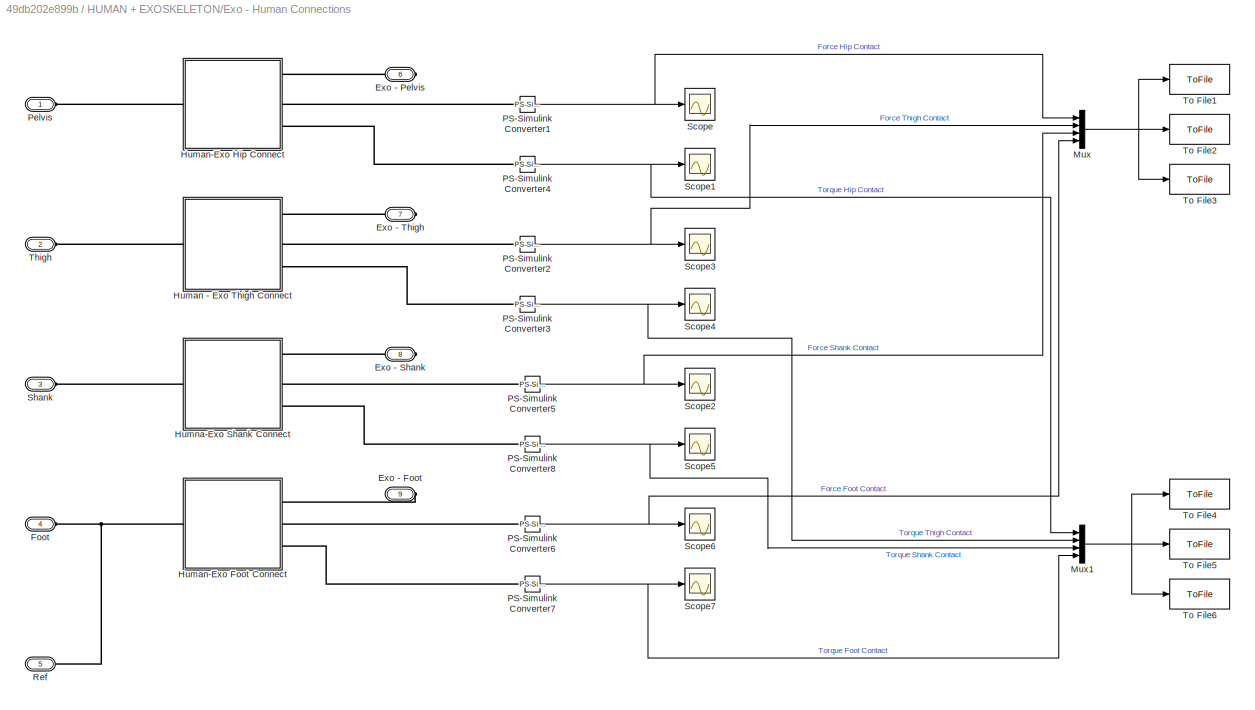
BLOCK [SubSystem] HUMAN + EXOSKELETON/Exo - Human Connections
  Ports = [0, 0, 0, 0, 0, 5, 4]
  RequestExecContextInheritance = off
BLOCK [PMIOPort] HUMAN + EXOSKELETON/Exo - Human Connections/Exo - Foot
  Port = 9
  Side = Right
BLOCK [PMIOPort] HUMAN + EXOSKELETON/Exo - Human Connections/Exo - Pelvis
  Port = 6
  Side = Right
BLOCK [PMIOPort] HUMAN + EXOSKELETON/Exo - Human Connections/Exo - Shank
  Port = 8
  Side = Right
BLOCK [PMIOPort] HUMAN + EXOSKELETON/Exo - Human Connections/Exo - Thigh
  Port = 7
  Side = Right
BLOCK [PMIOPort] HUMAN + EXOSKELETON/Exo - Human Connections/Foot
  Port = 4
  Side = Left
BLOCK [SubSystem] HUMAN + EXOSKELETON/Exo - Human Connections/Human - Exo Thigh Connect
  Ports = [0, 0, 0, 0, 0, 1, 3]
  RequestExecContextInheritance = off
BLOCK [PMIOPort] HUMAN + EXOSKELETON/Exo - Human Connections/Human - Exo Thigh Connect/Exo
  Side = Right
BLOCK [PMIOPort] HUMAN + EXOSKELETON/Exo - Human Connections/Human - Exo Thigh Connect/FT ThighC
  Port = 3
  Side = Right
BLOCK [PMIOPort] HUMAN + EXOSKELETON/Exo - Human Connections/Human - Exo Thigh Connect/Human
  Port = 2
  Side = Left
BLOCK [PMIOPort] HUMAN + EXOSKELETON/Exo - Human Connections/Human - Exo Thigh Connect/TT Thigh C
  Port = 4
  Side = Right
BLOCK [Reference] HUMAN + EXOSKELETON/Exo - Human Connections/Human - Exo Thigh Connect/Transform4  REF=sm_lib/Frames and
Transforms/Rigid
Transform
  Ports = [0, 0, 0, 0, 0, 1, 1]
  SourceBlock = sm_lib/Frames and\nTransforms/Rigid\nTransform
  SourceProductBaseCode = MS
  SourceProductName = Simscape Multibody
  SourceType = Rigid\nTransform
BLOCK [Reference] HUMAN + EXOSKELETON/Exo - Human Connections/Human - Exo Thigh Connect/Transform5  REF=sm_lib/Frames and
Transforms/Rigid
Transform
  Ports = [0, 0, 0, 0, 0, 1, 1]
  SourceBlock = sm_lib/Frames and\nTransforms/Rigid\nTransform
  SourceProductBaseCode = MS
  SourceProductName = Simscape Multibody
  SourceType = Rigid\nTransform
BLOCK [Reference] HUMAN + EXOSKELETON/Exo - Human Connections/Human - Exo Thigh Connect/Weld Joint1  REF=sm_lib/Joints/Weld Joint
  Ports = [0, 0, 0, 0, 0, 1, 3]
  SourceBlock = sm_lib/Joints/Weld Joint
  SourceProductBaseCode = MS
  SourceProductName = Simscape Multibody
  SourceType = Weld Joint
BLOCK [SubSystem] HUMAN + EXOSKELETON/Exo - Human Connections/Human-Exo Foot Connect
  Ports = [0, 0, 0, 0, 0, 1, 3]
  RequestExecContextInheritance = off
BLOCK [PMIOPort] HUMAN + EXOSKELETON/Exo - Human Connections/Human-Exo Foot Connect/Exo
  Port = 2
  Side = Right
BLOCK [PMIOPort] HUMAN + EXOSKELETON/Exo - Human Connections/Human-Exo Foot Connect/FT footC
  Port = 3
  Side = Right
BLOCK [PMIOPort] HUMAN + EXOSKELETON/Exo - Human Connections/Human-Exo Foot Connect/Human
  Side = Left
BLOCK [PMIOPort] HUMAN + EXOSKELETON/Exo - Human Connections/Human-Exo Foot Connect/TT footC
  Port = 4
  Side = Right
BLOCK [Reference] HUMAN + EXOSKELETON/Exo - Human Connections/Human-Exo Foot Connect/Transform4  REF=sm_lib/Frames and
Transforms/Rigid
Transform
  Ports = [0, 0, 0, 0, 0, 1, 1]
  SourceBlock = sm_lib/Frames and\nTransforms/Rigid\nTransform
  SourceProductBaseCode = MS
  SourceProductName = Simscape Multibody
  SourceType = Rigid\nTransform
BLOCK [Reference] HUMAN + EXOSKELETON/Exo - Human Connections/Human-Exo Foot Connect/Transform5  REF=sm_lib/Frames and
Transforms/Rigid
Transform
  Ports = [0, 0, 0, 0, 0, 1, 1]
  SourceBlock = sm_lib/Frames and\nTransforms/Rigid\nTransform
  SourceProductBaseCode = MS
  SourceProductName = Simscape Multibody
  SourceType = Rigid\nTransform
BLOCK [Reference] HUMAN + EXOSKELETON/Exo - Human Connections/Human-Exo Foot Connect/Weld Joint1  REF=sm_lib/Joints/Weld Joint
  Ports = [0, 0, 0, 0, 0, 1, 3]
  SourceBlock = sm_lib/Joints/Weld Joint
  SourceProductBaseCode = MS
  SourceProductName = Simscape Multibody
  SourceType = Weld Joint
BLOCK [SubSystem] HUMAN + EXOSKELETON/Exo - Human Connections/Human-Exo Hip Connect
  Ports = [0, 0, 0, 0, 0, 1, 3]
  RequestExecContextInheritance = off
BLOCK [PMIOPort] HUMAN + EXOSKELETON/Exo - Human Connections/Human-Exo Hip Connect/Exo
  Side = Right
BLOCK [PMIOPort] HUMAN + EXOSKELETON/Exo - Human Connections/Human-Exo Hip Connect/FT HipC
  Port = 3
  Side = Right
BLOCK [PMIOPort] HUMAN + EXOSKELETON/Exo - Human Connections/Human-Exo Hip Connect/Human
  Port = 2
  Side = Left
BLOCK [PMIOPort] HUMAN + EXOSKELETON/Exo - Human Connections/Human-Exo Hip Connect/TT Hip 
  Port = 4
  Side = Right
BLOCK [Reference] HUMAN + EXOSKELETON/Exo - Human Connections/Human-Exo Hip Connect/Transform1  REF=sm_lib/Frames and
Transforms/Rigid
Transform
  Ports = [0, 0, 0, 0, 0, 1, 1]
  SourceBlock = sm_lib/Frames and\nTransforms/Rigid\nTransform
  SourceProductBaseCode = MS
  SourceProductName = Simscape Multibody
  SourceType = Rigid\nTransform
BLOCK [Reference] HUMAN + EXOSKELETON/Exo - Human Connections/Human-Exo Hip Connect/Transform3  REF=sm_lib/Frames and
Transforms/Rigid
Transform
  Ports = [0, 0, 0, 0, 0, 1, 1]
  SourceBlock = sm_lib/Frames and\nTransforms/Rigid\nTransform
  SourceProductBaseCode = MS
  SourceProductName = Simscape Multibody
  SourceType = Rigid\nTransform
BLOCK [Reference] HUMAN + EXOSKELETON/Exo - Human Connections/Human-Exo Hip Connect/Weld Joint  REF=sm_lib/Joints/Weld Joint
  Ports = [0, 0, 0, 0, 0, 1, 3]
  SourceBlock = sm_lib/Joints/Weld Joint
  SourceProductBaseCode = MS
  SourceProductName = Simscape Multibody
  SourceType = Weld Joint
BLOCK [SubSystem] HUMAN + EXOSKELETON/Exo - Human Connections/Humna-Exo Shank Connect
  Ports = [0, 0, 0, 0, 0, 1, 3]
  RequestExecContextInheritance = off
BLOCK [PMIOPort] HUMAN + EXOSKELETON/Exo - Human Connections/Humna-Exo Shank Connect/Exo
  Side = Right
BLOCK [PMIOPort] HUMAN + EXOSKELETON/Exo - Human Connections/Humna-Exo Shank Connect/FT ShankC 
  Port = 3
  Side = Right
BLOCK [PMIOPort] HUMAN + EXOSKELETON/Exo - Human Connections/Humna-Exo Shank Connect/Human
  Port = 2
  Side = Left
BLOCK [PMIOPort] HUMAN + EXOSKELETON/Exo - Human Connections/Humna-Exo Shank Connect/TT ShankC
  Port = 4
  Side = Right
BLOCK [Reference] HUMAN + EXOSKELETON/Exo - Human Connections/Humna-Exo Shank Connect/Transform6  REF=sm_lib/Frames and
Transforms/Rigid
Transform
  Ports = [0, 0, 0, 0, 0, 1, 1]
  SourceBlock = sm_lib/Frames and\nTransforms/Rigid\nTransform
  SourceProductBaseCode = MS
  SourceProductName = Simscape Multibody
  SourceType = Rigid\nTransform
BLOCK [Reference] HUMAN + EXOSKELETON/Exo - Human Connections/Humna-Exo Shank Connect/Transform7  REF=sm_lib/Frames and
Transforms/Rigid
Transform
  Ports = [0, 0, 0, 0, 0, 1, 1]
  SourceBlock = sm_lib/Frames and\nTransforms/Rigid\nTransform
  SourceProductBaseCode = MS
  SourceProductName = Simscape Multibody
  SourceType = Rigid\nTransform
BLOCK [Reference] HUMAN + EXOSKELETON/Exo - Human Connections/Humna-Exo Shank Connect/Weld Joint2  REF=sm_lib/Joints/Weld Joint
  Ports = [0, 0, 0, 0, 0, 1, 3]
  SourceBlock = sm_lib/Joints/Weld Joint
  SourceProductBaseCode = MS
  SourceProductName = Simscape Multibody
  SourceType = Weld Joint
BLOCK [Mux] HUMAN + EXOSKELETON/Exo - Human Connections/Mux
  DisplayOption = bar
  Ports = [4, 1]
BLOCK [Mux] HUMAN + EXOSKELETON/Exo - Human Connections/Mux1
  DisplayOption = bar
  Ports = [4, 1]
BLOCK [Reference] HUMAN + EXOSKELETON/Exo - Human Connections/PS-Simulink Converter1  REF=nesl_utility/PS-Simulink
Converter
  Ports = [0, 1, 0, 0, 0, 1]
  SourceBlock = nesl_utility/PS-Simulink\nConverter
  SourceProductBaseCode = SS
  SourceProductName = Simscape
  SourceType = PS-Simulink\nConverter
BLOCK [Reference] HUMAN + EXOSKELETON/Exo - Human Connections/PS-Simulink Converter2  REF=nesl_utility/PS-Simulink
Converter
  Ports = [0, 1, 0, 0, 0, 1]
  SourceBlock = nesl_utility/PS-Simulink\nConverter
  SourceProductBaseCode = SS
  SourceProductName = Simscape
  SourceType = PS-Simulink\nConverter
BLOCK [Reference] HUMAN + EXOSKELETON/Exo - Human Connections/PS-Simulink Converter3  REF=nesl_utility/PS-Simulink
Converter
  Ports = [0, 1, 0, 0, 0, 1]
  SourceBlock = nesl_utility/PS-Simulink\nConverter
  SourceProductBaseCode = SS
  SourceProductName = Simscape
  SourceType = PS-Simulink\nConverter
BLOCK [Reference] HUMAN + EXOSKELETON/Exo - Human Connections/PS-Simulink Converter4  REF=nesl_utility/PS-Simulink
Converter
  Ports = [0, 1, 0, 0, 0, 1]
  SourceBlock = nesl_utility/PS-Simulink\nConverter
  SourceProductBaseCode = SS
  SourceProductName = Simscape
  SourceType = PS-Simulink\nConverter
BLOCK [Reference] HUMAN + EXOSKELETON/Exo - Human Connections/PS-Simulink Converter5  REF=nesl_utility/PS-Simulink
Converter
  Ports = [0, 1, 0, 0, 0, 1]
  SourceBlock = nesl_utility/PS-Simulink\nConverter
  SourceProductBaseCode = SS
  SourceProductName = Simscape
  SourceType = PS-Simulink\nConverter
BLOCK [Reference] HUMAN + EXOSKELETON/Exo - Human Connections/PS-Simulink Converter6  REF=nesl_utility/PS-Simulink
Converter
  Ports = [0, 1, 0, 0, 0, 1]
  SourceBlock = nesl_utility/PS-Simulink\nConverter
  SourceProductBaseCode = SS
  SourceProductName = Simscape
  SourceType = PS-Simulink\nConverter
BLOCK [Reference] HUMAN + EXOSKELETON/Exo - Human Connections/PS-Simulink Converter7  REF=nesl_utility/PS-Simulink
Converter
  Ports = [0, 1, 0, 0, 0, 1]
  SourceBlock = nesl_utility/PS-Simulink\nConverter
  SourceProductBaseCode = SS
  SourceProductName = Simscape
  SourceType = PS-Simulink\nConverter
BLOCK [Reference] HUMAN + EXOSKELETON/Exo - Human Connections/PS-Simulink Converter8  REF=nesl_utility/PS-Simulink
Converter
  Ports = [0, 1, 0, 0, 0, 1]
  SourceBlock = nesl_utility/PS-Simulink\nConverter
  SourceProductBaseCode = SS
  SourceProductName = Simscape
  SourceType = PS-Simulink\nConverter
BLOCK [PMIOPort] HUMAN + EXOSKELETON/Exo - Human Connections/Pelvis
  Side = Left
BLOCK [PMIOPort] HUMAN + EXOSKELETON/Exo - Human Connections/Ref
  Port = 5
  Side = Left
BLOCK [Scope] HUMAN + EXOSKELETON/Exo - Human Connections/Scope
  Floating = off
  NumInputPorts = 1
  Ports = [1]
  ScopeSpecificationString = Simulink.scopes.TimeScopeBlockCfg('CurrentConfiguration', extmgr.ConfigurationSet(extmgr.Configuration('Core','General UI',true),extmgr.Configuration('Core','Source UI',true),extmgr.Configuration('Sources','WiredSimulink',true,'DataLoggingVariableName','ScopeData1'),extmgr.Configuration('Visuals','Time Domain',true,'SerializedDisplays',{struct('MinYLimReal','-106.07849','MaxYLimReal','310.54006','...<+1466ch>
BLOCK [Scope] HUMAN + EXOSKELETON/Exo - Human Connections/Scope1
  Floating = off
  NumInputPorts = 1
  Ports = [1]
  ScopeSpecificationString = Simulink.scopes.TimeScopeBlockCfg('CurrentConfiguration', extmgr.ConfigurationSet(extmgr.Configuration('Core','General UI',true),extmgr.Configuration('Core','Source UI',true),extmgr.Configuration('Sources','WiredSimulink',true,'DataLoggingVariableName','ScopeData2'),extmgr.Configuration('Visuals','Time Domain',true,'SerializedDisplays',{struct('MinYLimReal','-10.2677','MaxYLimReal','12.97103','YLa...<+1459ch>
BLOCK [Scope] HUMAN + EXOSKELETON/Exo - Human Connections/Scope2
  Floating = off
  NumInputPorts = 1
  Ports = [1]
  ScopeSpecificationString = Simulink.scopes.TimeScopeBlockCfg('CurrentConfiguration', extmgr.ConfigurationSet(extmgr.Configuration('Core','General UI',true),extmgr.Configuration('Core','Source UI',true),extmgr.Configuration('Sources','WiredSimulink',true,'DataLoggingVariableName','ScopeData3'),extmgr.Configuration('Visuals','Time Domain',true,'SerializedDisplays',{struct('MinYLimReal','-470.41656','MaxYLimReal','343.85606','...<+1472ch>
BLOCK [Scope] HUMAN + EXOSKELETON/Exo - Human Connections/Scope3
  Floating = off
  NumInputPorts = 1
  Ports = [1]
  ScopeSpecificationString = Simulink.scopes.TimeScopeBlockCfg('CurrentConfiguration', extmgr.ConfigurationSet(extmgr.Configuration('Core','General UI',true),extmgr.Configuration('Core','Source UI',true),extmgr.Configuration('Sources','WiredSimulink',true,'DataLoggingVariableName','ScopeData4'),extmgr.Configuration('Visuals','Time Domain',true,'SerializedDisplays',{struct('MinYLimReal','-13.08594','MaxYLimReal','117.7735','YL...<+1464ch>
BLOCK [Scope] HUMAN + EXOSKELETON/Exo - Human Connections/Scope4
  Floating = off
  NumInputPorts = 1
  Ports = [1]
  ScopeSpecificationString = Simulink.scopes.TimeScopeBlockCfg('CurrentConfiguration', extmgr.ConfigurationSet(extmgr.Configuration('Core','General UI',true),extmgr.Configuration('Core','Source UI',true),extmgr.Configuration('Sources','WiredSimulink',true,'DataLoggingVariableName','ScopeData5'),extmgr.Configuration('Visuals','Time Domain',true,'SerializedDisplays',{struct('MinYLimReal','-0.31855','MaxYLimReal','2.86691','YLab...<+1461ch>
BLOCK [Scope] HUMAN + EXOSKELETON/Exo - Human Connections/Scope5
  Floating = off
  NumInputPorts = 1
  Ports = [1]
  ScopeSpecificationString = Simulink.scopes.TimeScopeBlockCfg('CurrentConfiguration', extmgr.ConfigurationSet(extmgr.Configuration('Core','General UI',true),extmgr.Configuration('Core','Source UI',true),extmgr.Configuration('Sources','WiredSimulink',true,'DataLoggingVariableName','ScopeData6'),extmgr.Configuration('Visuals','Time Domain',true,'SerializedDisplays',{struct('MinYLimReal','-5.19611','MaxYLimReal','0.57735','YLab...<+1461ch>
BLOCK [Scope] HUMAN + EXOSKELETON/Exo - Human Connections/Scope6
  Floating = off
  NumInputPorts = 1
  Ports = [1]
  ScopeSpecificationString = Simulink.scopes.TimeScopeBlockCfg('CurrentConfiguration', extmgr.ConfigurationSet(extmgr.Configuration('Core','General UI',true),extmgr.Configuration('Core','Source UI',true),extmgr.Configuration('Sources','WiredSimulink',true,'DataLoggingVariableName','ScopeData7'),extmgr.Configuration('Visuals','Time Domain',true,'SerializedDisplays',{struct('MinYLimReal','-11.92078','MaxYLimReal','26.85159','YL...<+1461ch>
BLOCK [Scope] HUMAN + EXOSKELETON/Exo - Human Connections/Scope7
  Floating = off
  NumInputPorts = 1
  Ports = [1]
  ScopeSpecificationString = Simulink.scopes.TimeScopeBlockCfg('CurrentConfiguration', extmgr.ConfigurationSet(extmgr.Configuration('Core','General UI',true),extmgr.Configuration('Core','Source UI',true),extmgr.Configuration('Sources','WiredSimulink',true,'DataLoggingVariableName','ScopeData8'),extmgr.Configuration('Visuals','Time Domain',true,'SerializedDisplays',{struct('MinYLimReal','-0.73051','MaxYLimReal','6.57454','YLab...<+1458ch>
BLOCK [PMIOPort] HUMAN + EXOSKELETON/Exo - Human Connections/Shank
  Port = 3
  Side = Left
BLOCK [PMIOPort] HUMAN + EXOSKELETON/Exo - Human Connections/Thigh
  Port = 2
  Side = Left
BLOCK [ToFile] HUMAN + EXOSKELETON/Exo - Human Connections/To File1
  Filename = ForceContact100.mat
  MatrixName = ForceContact100
  Ports = [1]
  SampleTime = 0.001
BLOCK [ToFile] HUMAN + EXOSKELETON/Exo - Human Connections/To File2
  Filename = ForceContact60.mat
  MatrixName = ForceContact60
  Ports = [1]
  SampleTime = 0.001
BLOCK [ToFile] HUMAN + EXOSKELETON/Exo - Human Connections/To File3
  Filename = ForceContact30.mat
  MatrixName = ForceContact30
  Ports = [1]
  SampleTime = 0.001
BLOCK [ToFile] HUMAN + EXOSKELETON/Exo - Human Connections/To File4
  Filename = TorqueContact100.mat
  MatrixName = ForceContact100
  Ports = [1]
  SampleTime = 0.001
BLOCK [ToFile] HUMAN + EXOSKELETON/Exo - Human Connections/To File5
  Filename = TorqueContact60.mat
  MatrixName = TorqueContact60
  Ports = [1]
  SampleTime = 0.001
BLOCK [ToFile] HUMAN + EXOSKELETON/Exo - Human Connections/To File6
  Filename = TorqueContact30.mat
  MatrixName = TorqueContact30
  Ports = [1]
  SampleTime = 0.001
BLOCK [FromFile] HUMAN + EXOSKELETON/From File4
  FileName = ExoskeletonPositions.mat
  SampleTime = 0.001
BLOCK [PMIOPort] HUMAN + EXOSKELETON/G
  Port = 2
  Side = Right
BLOCK [SubSystem] HUMAN + EXOSKELETON/Lower Body 
  Ports = [0, 0, 0, 0, 0, 1, 5]
  RequestExecContextInheritance = off
BLOCK [Reference] HUMAN + EXOSKELETON/Lower Body /Ankle   REF=sm_lib/Joints/Revolute Joint
  Ports = [0, 0, 0, 0, 0, 1, 5]
  SourceBlock = sm_lib/Joints/Revolute Joint
  SourceProductBaseCode = MS
  SourceProductName = Simscape Multibody
  SourceType = Revolute Joint
BLOCK [SubSystem] HUMAN + EXOSKELETON/Lower Body /FOOT_RIGID
  Ports = [0, 0, 0, 0, 0, 3]
  RequestExecContextInheritance = off
BLOCK [PMIOPort] HUMAN + EXOSKELETON/Lower Body /FOOT_RIGID/Exo
  Side = Left
BLOCK [PMIOPort] HUMAN + EXOSKELETON/Lower Body /FOOT_RIGID/F
  Port = 2
  Side = Left
BLOCK [SubSystem] HUMAN + EXOSKELETON/Lower Body /FOOT_RIGID/Face to Plane Force1
  AncestorBlock = Contact_Forces_Lib/3D/Composite\nForces/Face to Plane Force
  Ports = [0, 1, 0, 0, 0, 1, 1]
  RequestExecContextInheritance = off
BLOCK [BusCreator] HUMAN + EXOSKELETON/Lower Body /FOOT_RIGID/Face to Plane Force1/Bus Creator
  DisplayOption = bar
  InheritFromInputs = on
  Inputs = 4
  Ports = [4, 1]
BLOCK [PMIOPort] HUMAN + EXOSKELETON/Lower Body /FOOT_RIGID/Face to Plane Force1/FacF
  Port = 2
  Side = Left
BLOCK [Outport] HUMAN + EXOSKELETON/Lower Body /FOOT_RIGID/Face to Plane Force1/Out
  IconDisplay = Port number
  VectorParamsAs1DForOutWhenUnconnected = off
BLOCK [PMIOPort] HUMAN + EXOSKELETON/Lower Body /FOOT_RIGID/Face to Plane Force1/PlaB
  Side = Right
BLOCK [Reference] HUMAN + EXOSKELETON/Lower Body /FOOT_RIGID/Face to Plane Force1/Sphere to Plane Force nz2  REF=Contact_Forces_Lib/3D/Sphere to Plane Force
  Ports = [0, 1, 0, 0, 0, 1, 1]
  SourceBlock = Contact_Forces_Lib/3D/Sphere to Plane Force
  SourceProductName = Simscape Multibody Contact Forces Library
  SourceType = Sphere to Plane Force
BLOCK [Reference] HUMAN + EXOSKELETON/Lower Body /FOOT_RIGID/Face to Plane Force1/Sphere to Plane Force nz3  REF=Contact_Forces_Lib/3D/Sphere to Plane Force
  Ports = [0, 1, 0, 0, 0, 1, 1]
  SourceBlock = Contact_Forces_Lib/3D/Sphere to Plane Force
  SourceProductName = Simscape Multibody Contact Forces Library
  SourceType = Sphere to Plane Force
BLOCK [Reference] HUMAN + EXOSKELETON/Lower Body /FOOT_RIGID/Face to Plane Force1/Transform Fnz1  REF=sm_lib/Frames and
Transforms/Rigid
Transform
  Ports = [0, 0, 0, 0, 0, 1, 1]
  SourceBlock = sm_lib/Frames and\nTransforms/Rigid\nTransform
  SourceProductBaseCode = MS
  SourceProductName = Simscape Multibody
  SourceType = Rigid\nTransform
BLOCK [Reference] HUMAN + EXOSKELETON/Lower Body /FOOT_RIGID/Face to Plane Force1/Transform Fnz2  REF=sm_lib/Frames and
Transforms/Rigid
Transform
  Ports = [0, 0, 0, 0, 0, 1, 1]
  SourceBlock = sm_lib/Frames and\nTransforms/Rigid\nTransform
  SourceProductBaseCode = MS
  SourceProductName = Simscape Multibody
  SourceType = Rigid\nTransform
BLOCK [Reference] HUMAN + EXOSKELETON/Lower Body /FOOT_RIGID/Face to Plane Force1/Transform Fnz3  REF=sm_lib/Frames and
Transforms/Rigid
Transform
  Ports = [0, 0, 0, 0, 0, 1, 1]
  SourceBlock = sm_lib/Frames and\nTransforms/Rigid\nTransform
  SourceProductBaseCode = MS
  SourceProductName = Simscape Multibody
  SourceType = Rigid\nTransform
BLOCK [Reference] HUMAN + EXOSKELETON/Lower Body /FOOT_RIGID/Face to Plane Force1/Transform Fnz4  REF=sm_lib/Frames and
Transforms/Rigid
Transform
  Ports = [0, 0, 0, 0, 0, 1, 1]
  SourceBlock = sm_lib/Frames and\nTransforms/Rigid\nTransform
  SourceProductBaseCode = MS
  SourceProductName = Simscape Multibody
  SourceType = Rigid\nTransform
BLOCK [SubSystem] HUMAN + EXOSKELETON/Lower Body /FOOT_RIGID/Face to Plane Force2
  AncestorBlock = Contact_Forces_Lib/3D/Composite\nForces/Face to Plane Force
  Ports = [0, 1, 0, 0, 0, 1, 1]
  RequestExecContextInheritance = off
BLOCK [BusCreator] HUMAN + EXOSKELETON/Lower Body /FOOT_RIGID/Face to Plane Force2/Bus Creator
  DisplayOption = bar
  InheritFromInputs = on
  Inputs = 4
  Ports = [4, 1]
BLOCK [PMIOPort] HUMAN + EXOSKELETON/Lower Body /FOOT_RIGID/Face to Plane Force2/FacF
  Port = 2
  Side = Left
BLOCK [Outport] HUMAN + EXOSKELETON/Lower Body /FOOT_RIGID/Face to Plane Force2/Out
  IconDisplay = Port number
  VectorParamsAs1DForOutWhenUnconnected = off
BLOCK [PMIOPort] HUMAN + EXOSKELETON/Lower Body /FOOT_RIGID/Face to Plane Force2/PlaB
  Side = Right
BLOCK [Reference] HUMAN + EXOSKELETON/Lower Body /FOOT_RIGID/Face to Plane Force2/Sphere to Plane Force nz1  REF=Contact_Forces_Lib/3D/Sphere to Plane Force
  Ports = [0, 1, 0, 0, 0, 1, 1]
  SourceBlock = Contact_Forces_Lib/3D/Sphere to Plane Force
  SourceProductName = Simscape Multibody Contact Forces Library
  SourceType = Sphere to Plane Force
BLOCK [Reference] HUMAN + EXOSKELETON/Lower Body /FOOT_RIGID/Face to Plane Force2/Sphere to Plane Force nz4  REF=Contact_Forces_Lib/3D/Sphere to Plane Force
  Ports = [0, 1, 0, 0, 0, 1, 1]
  SourceBlock = Contact_Forces_Lib/3D/Sphere to Plane Force
  SourceProductName = Simscape Multibody Contact Forces Library
  SourceType = Sphere to Plane Force
BLOCK [Reference] HUMAN + EXOSKELETON/Lower Body /FOOT_RIGID/Face to Plane Force2/Transform Fnz1  REF=sm_lib/Frames and
Transforms/Rigid
Transform
  Ports = [0, 0, 0, 0, 0, 1, 1]
  SourceBlock = sm_lib/Frames and\nTransforms/Rigid\nTransform
  SourceProductBaseCode = MS
  SourceProductName = Simscape Multibody
  SourceType = Rigid\nTransform
BLOCK [Reference] HUMAN + EXOSKELETON/Lower Body /FOOT_RIGID/Face to Plane Force2/Transform Fnz2  REF=sm_lib/Frames and
Transforms/Rigid
Transform
  Ports = [0, 0, 0, 0, 0, 1, 1]
  SourceBlock = sm_lib/Frames and\nTransforms/Rigid\nTransform
  SourceProductBaseCode = MS
  SourceProductName = Simscape Multibody
  SourceType = Rigid\nTransform
BLOCK [Reference] HUMAN + EXOSKELETON/Lower Body /FOOT_RIGID/Face to Plane Force2/Transform Fnz3  REF=sm_lib/Frames and
Transforms/Rigid
Transform
  Ports = [0, 0, 0, 0, 0, 1, 1]
  SourceBlock = sm_lib/Frames and\nTransforms/Rigid\nTransform
  SourceProductBaseCode = MS
  SourceProductName = Simscape Multibody
  SourceType = Rigid\nTransform
BLOCK [Reference] HUMAN + EXOSKELETON/Lower Body /FOOT_RIGID/Face to Plane Force2/Transform Fnz4  REF=sm_lib/Frames and
Transforms/Rigid
Transform
  Ports = [0, 0, 0, 0, 0, 1, 1]
  SourceBlock = sm_lib/Frames and\nTransforms/Rigid\nTransform
  SourceProductBaseCode = MS
  SourceProductName = Simscape Multibody
  SourceType = Rigid\nTransform
BLOCK [PMIOPort] HUMAN + EXOSKELETON/Lower Body /FOOT_RIGID/Ground 
  Port = 3
  Side = Left
BLOCK [SubSystem] HUMAN + EXOSKELETON/Lower Body /FOOT_RIGID/LFOOT_RIGID
  Ports = [0, 0, 0, 0, 0, 2]
  RequestExecContextInheritance = off
BLOCK [PMIOPort] HUMAN + EXOSKELETON/Lower Body /FOOT_RIGID/LFOOT_RIGID/F
  Side = Left
BLOCK [PMIOPort] HUMAN + EXOSKELETON/Lower Body /FOOT_RIGID/LFOOT_RIGID/F1
  Port = 2
  Side = Left
BLOCK [Reference] HUMAN + EXOSKELETON/Lower Body /FOOT_RIGID/LFOOT_RIGID/ReferenceFrame  REF=sm_lib/Frames and
Transforms/Reference
Frame
  Ports = [0, 0, 0, 0, 0, 0, 1]
  SourceBlock = sm_lib/Frames and\nTransforms/Reference\nFrame
  SourceProductBaseCode = MS
  SourceProductName = Simscape Multibody
  SourceType = Reference\nFrame
BLOCK [Reference] HUMAN + EXOSKELETON/Lower Body /FOOT_RIGID/LFOOT_RIGID/Solid  REF=sm_lib/Body Elements/File Solid
  Ports = [0, 0, 0, 0, 0, 1, 1]
  SourceBlock = sm_lib/Body Elements/File Solid
  SourceProductBaseCode = MS
  SourceProductName = Simscape Multibody
  SourceType = File Solid
BLOCK [SubSystem] HUMAN + EXOSKELETON/Lower Body /FOOT_RIGID/RFOOT_RIGID
  Ports = [0, 0, 0, 0, 0, 2]
  RequestExecContextInheritance = off
BLOCK [PMIOPort] HUMAN + EXOSKELETON/Lower Body /FOOT_RIGID/RFOOT_RIGID/F
  Side = Left
BLOCK [PMIOPort] HUMAN + EXOSKELETON/Lower Body /FOOT_RIGID/RFOOT_RIGID/F1
  Port = 2
  Side = Left
BLOCK [Reference] HUMAN + EXOSKELETON/Lower Body /FOOT_RIGID/RFOOT_RIGID/ReferenceFrame  REF=sm_lib/Frames and
Transforms/Reference
Frame
  Ports = [0, 0, 0, 0, 0, 0, 1]
  SourceBlock = sm_lib/Frames and\nTransforms/Reference\nFrame
  SourceProductBaseCode = MS
  SourceProductName = Simscape Multibody
  SourceType = Reference\nFrame
BLOCK [Reference] HUMAN + EXOSKELETON/Lower Body /FOOT_RIGID/RFOOT_RIGID/Solid  REF=sm_lib/Body Elements/File Solid
  Ports = [0, 0, 0, 0, 0, 1, 1]
  SourceBlock = sm_lib/Body Elements/File Solid
  SourceProductBaseCode = MS
  SourceProductName = Simscape Multibody
  SourceType = File Solid
BLOCK [Reference] HUMAN + EXOSKELETON/Lower Body /FOOT_RIGID/ReferenceFrame  REF=sm_lib/Frames and
Transforms/Reference
Frame
  Ports = [0, 0, 0, 0, 0, 0, 1]
  SourceBlock = sm_lib/Frames and\nTransforms/Reference\nFrame
  SourceProductBaseCode = MS
  SourceProductName = Simscape Multibody
  SourceType = Reference\nFrame
BLOCK [Scope] HUMAN + EXOSKELETON/Lower Body /FOOT_RIGID/Scope
  Floating = off
  NumInputPorts = 2
  Ports = [2]
  ScopeSpecificationString = Simulink.scopes.TimeScopeBlockCfg('CurrentConfiguration', extmgr.ConfigurationSet(extmgr.Configuration('Core','General UI',true),extmgr.Configuration('Core','Source UI',true),extmgr.Configuration('Sources','WiredSimulink',true,'DataLoggingVariableName','ScopeData1'),extmgr.Configuration('Visuals','Time Domain',true,'SerializedDisplays',{struct('MinYLimReal','-47.2849','MaxYLimReal','403.28154','YL...<+2048ch>
BLOCK [Scope] HUMAN + EXOSKELETON/Lower Body /FOOT_RIGID/Scope1
  Floating = off
  NumInputPorts = 2
  Ports = [2]
  ScopeSpecificationString = Simulink.scopes.TimeScopeBlockCfg('CurrentConfiguration', extmgr.ConfigurationSet(extmgr.Configuration('Core','General UI',true),extmgr.Configuration('Core','Source UI',true),extmgr.Configuration('Sources','WiredSimulink',true,'DataLoggingVariableName','ScopeData2'),extmgr.Configuration('Visuals','Time Domain',true,'SerializedDisplays',{struct('MinYLimReal','-47.2849','MaxYLimReal','403.28153','YL...<+2045ch>
BLOCK [Reference] HUMAN + EXOSKELETON/Lower Body /FOOT_RIGID/Transform  REF=sm_lib/Frames and
Transforms/Rigid
Transform
  Ports = [0, 0, 0, 0, 0, 1, 1]
  SourceBlock = sm_lib/Frames and\nTransforms/Rigid\nTransform
  SourceProductBaseCode = MS
  SourceProductName = Simscape Multibody
  SourceType = Rigid\nTransform
BLOCK [Reference] HUMAN + EXOSKELETON/Lower Body /FOOT_RIGID/Transform1  REF=sm_lib/Frames and
Transforms/Rigid
Transform
  Ports = [0, 0, 0, 0, 0, 1, 1]
  SourceBlock = sm_lib/Frames and\nTransforms/Rigid\nTransform
  SourceProductBaseCode = MS
  SourceProductName = Simscape Multibody
  SourceType = Rigid\nTransform
BLOCK [Reference] HUMAN + EXOSKELETON/Lower Body /FOOT_RIGID/Transform2  REF=sm_lib/Frames and
Transforms/Rigid
Transform
  Ports = [0, 0, 0, 0, 0, 1, 1]
  SourceBlock = sm_lib/Frames and\nTransforms/Rigid\nTransform
  SourceProductBaseCode = MS
  SourceProductName = Simscape Multibody
  SourceType = Rigid\nTransform
BLOCK [PMIOPort] HUMAN + EXOSKELETON/Lower Body /Foot - Exo
  Port = 5
  Side = Right
BLOCK [PMIOPort] HUMAN + EXOSKELETON/Lower Body /Foot-Ground
  Port = 6
  Side = Left
BLOCK [Reference] HUMAN + EXOSKELETON/Lower Body /Hip  REF=sm_lib/Joints/Revolute Joint
  Ports = [0, 0, 0, 0, 0, 1, 5]
  SourceBlock = sm_lib/Joints/Revolute Joint
  SourceProductBaseCode = MS
  SourceProductName = Simscape Multibody
  SourceType = Revolute Joint
BLOCK [Scope] HUMAN + EXOSKELETON/Lower Body /Human Joint Position
  Floating = off
  NumInputPorts = 3
  Ports = [3]
  ScopeSpecificationString = Simulink.scopes.TimeScopeBlockCfg('CurrentConfiguration', extmgr.ConfigurationSet(extmgr.Configuration('Core','General UI',true),extmgr.Configuration('Core','Source UI',true),extmgr.Configuration('Sources','WiredSimulink',true,'DataLoggingVariableName','ScopeData2','SampleTime','0.001'),extmgr.Configuration('Visuals','Time Domain',true,'SerializedDisplays',{struct('MinYLimReal','-2.15165','MaxYLim...<+1501ch>
BLOCK [Scope] HUMAN + EXOSKELETON/Lower Body /Human Joint Torque
  Floating = off
  NumInputPorts = 3
  Ports = [3]
  ScopeSpecificationString = Simulink.scopes.TimeScopeBlockCfg('CurrentConfiguration', extmgr.ConfigurationSet(extmgr.Configuration('Core','General UI',true),extmgr.Configuration('Core','Source UI',true),extmgr.Configuration('Sources','WiredSimulink',true,'DataLoggingVariableName','HumanActiveTorque','DataLogging',true,'DataLoggingSaveFormat','Structure','SampleTime','0.001'),extmgr.Configuration('Visuals','Time Domain',true,...<+2163ch>
BLOCK [Scope] HUMAN + EXOSKELETON/Lower Body /Human Joint Velocity
  Floating = off
  NumInputPorts = 3
  Ports = [3]
  ScopeSpecificationString = Simulink.scopes.TimeScopeBlockCfg('CurrentConfiguration', extmgr.ConfigurationSet(extmgr.Configuration('Core','General UI',true),extmgr.Configuration('Core','Source UI',true),extmgr.Configuration('Sources','WiredSimulink',true,'DataLoggingVariableName','ScopeData3','SampleTime','0.001'),extmgr.Configuration('Visuals','Time Domain',true,'SerializedDisplays',{struct('MinYLimReal','-2.54468','MaxYLim...<+1551ch>
BLOCK [Scope] HUMAN + EXOSKELETON/Lower Body /Human Positions1
  Floating = off
  NumInputPorts = 3
  Ports = [3]
  ScopeSpecificationString = Simulink.scopes.TimeScopeBlockCfg('CurrentConfiguration', extmgr.ConfigurationSet(extmgr.Configuration('Core','General UI',true),extmgr.Configuration('Core','Source UI',true),extmgr.Configuration('Sources','WiredSimulink',true,'DataLoggingVariableName','ScopeData1','SampleTime','0.001'),extmgr.Configuration('Visuals','Time Domain',true,'SerializedDisplays',{struct('MinYLimReal','-16.15281','MaxYLi...<+1553ch>
BLOCK [Reference] HUMAN + EXOSKELETON/Lower Body /Knee  REF=sm_lib/Joints/Revolute Joint
  Ports = [0, 0, 0, 0, 0, 1, 5]
  SourceBlock = sm_lib/Joints/Revolute Joint
  SourceProductBaseCode = MS
  SourceProductName = Simscape Multibody
  SourceType = Revolute Joint
BLOCK [Mux] HUMAN + EXOSKELETON/Lower Body /Mux
  DisplayOption = bar
  Inputs = 3
  Ports = [3, 1]
BLOCK [SubSystem] HUMAN + EXOSKELETON/Lower Body /PEL_RIGID
  Ports = [0, 0, 0, 0, 0, 2, 1]
  RequestExecContextInheritance = off
BLOCK [PMIOPort] HUMAN + EXOSKELETON/Lower Body /PEL_RIGID/Exo
  Side = Left
BLOCK [PMIOPort] HUMAN + EXOSKELETON/Lower Body /PEL_RIGID/MT-P 
  Port = 2
  Side = Left
BLOCK [PMIOPort] HUMAN + EXOSKELETON/Lower Body /PEL_RIGID/P-H
  Port = 3
  Side = Right
BLOCK [Reference] HUMAN + EXOSKELETON/Lower Body /PEL_RIGID/ReferenceFrame  REF=sm_lib/Frames and
Transforms/Reference
Frame
  Ports = [0, 0, 0, 0, 0, 0, 1]
  SourceBlock = sm_lib/Frames and\nTransforms/Reference\nFrame
  SourceProductBaseCode = MS
  SourceProductName = Simscape Multibody
  SourceType = Reference\nFrame
BLOCK [Reference] HUMAN + EXOSKELETON/Lower Body /PEL_RIGID/Solid  REF=sm_lib/Body Elements/File Solid
  Ports = [0, 0, 0, 0, 0, 0, 1]
  SourceBlock = sm_lib/Body Elements/File Solid
  SourceProductBaseCode = MS
  SourceProductName = Simscape Multibody
  SourceType = File Solid
BLOCK [Reference] HUMAN + EXOSKELETON/Lower Body /PEL_RIGID/Transform2  REF=sm_lib/Frames and
Transforms/Rigid
Transform
  Ports = [0, 0, 0, 0, 0, 1, 1]
  SourceBlock = sm_lib/Frames and\nTransforms/Rigid\nTransform
  SourceProductBaseCode = MS
  SourceProductName = Simscape Multibody
  SourceType = Rigid\nTransform
BLOCK [Reference] HUMAN + EXOSKELETON/Lower Body /PEL_RIGID/Transform4  REF=sm_lib/Frames and
Transforms/Rigid
Transform
  Ports = [0, 0, 0, 0, 0, 1, 1]
  SourceBlock = sm_lib/Frames and\nTransforms/Rigid\nTransform
  SourceProductBaseCode = MS
  SourceProductName = Simscape Multibody
  SourceType = Rigid\nTransform
BLOCK [Reference] HUMAN + EXOSKELETON/Lower Body /PS-Simulink Converter  REF=nesl_utility/PS-Simulink
Converter
  Ports = [0, 1, 0, 0, 0, 1]
  SourceBlock = nesl_utility/PS-Simulink\nConverter
  SourceProductBaseCode = SS
  SourceProductName = Simscape
  SourceType = PS-Simulink\nConverter
BLOCK [Reference] HUMAN + EXOSKELETON/Lower Body /PS-Simulink Converter1  REF=nesl_utility/PS-Simulink
Converter
  Ports = [0, 1, 0, 0, 0, 1]
  SourceBlock = nesl_utility/PS-Simulink\nConverter
  SourceProductBaseCode = SS
  SourceProductName = Simscape
  SourceType = PS-Simulink\nConverter
BLOCK [Reference] HUMAN + EXOSKELETON/Lower Body /PS-Simulink Converter10  REF=nesl_utility/PS-Simulink
Converter
  Ports = [0, 1, 0, 0, 0, 1]
  SourceBlock = nesl_utility/PS-Simulink\nConverter
  SourceProductBaseCode = SS
  SourceProductName = Simscape
  SourceType = PS-Simulink\nConverter
BLOCK [Reference] HUMAN + EXOSKELETON/Lower Body /PS-Simulink Converter11  REF=nesl_utility/PS-Simulink
Converter
  Ports = [0, 1, 0, 0, 0, 1]
  SourceBlock = nesl_utility/PS-Simulink\nConverter
  SourceProductBaseCode = SS
  SourceProductName = Simscape
  SourceType = PS-Simulink\nConverter
BLOCK [Reference] HUMAN + EXOSKELETON/Lower Body /PS-Simulink Converter2  REF=nesl_utility/PS-Simulink
Converter
  Ports = [0, 1, 0, 0, 0, 1]
  SourceBlock = nesl_utility/PS-Simulink\nConverter
  SourceProductBaseCode = SS
  SourceProductName = Simscape
  SourceType = PS-Simulink\nConverter
BLOCK [Reference] HUMAN + EXOSKELETON/Lower Body /PS-Simulink Converter3  REF=nesl_utility/PS-Simulink
Converter
  Ports = [0, 1, 0, 0, 0, 1]
  SourceBlock = nesl_utility/PS-Simulink\nConverter
  SourceProductBaseCode = SS
  SourceProductName = Simscape
  SourceType = PS-Simulink\nConverter
BLOCK [Reference] HUMAN + EXOSKELETON/Lower Body /PS-Simulink Converter4  REF=nesl_utility/PS-Simulink
Converter
  Ports = [0, 1, 0, 0, 0, 1]
  SourceBlock = nesl_utility/PS-Simulink\nConverter
  SourceProductBaseCode = SS
  SourceProductName = Simscape
  SourceType = PS-Simulink\nConverter
BLOCK [Reference] HUMAN + EXOSKELETON/Lower Body /PS-Simulink Converter5  REF=nesl_utility/PS-Simulink
Converter
  Ports = [0, 1, 0, 0, 0, 1]
  SourceBlock = nesl_utility/PS-Simulink\nConverter
  SourceProductBaseCode = SS
  SourceProductName = Simscape
  SourceType = PS-Simulink\nConverter
BLOCK [Reference] HUMAN + EXOSKELETON/Lower Body /PS-Simulink Converter6  REF=nesl_utility/PS-Simulink
Converter
  Ports = [0, 1, 0, 0, 0, 1]
  SourceBlock = nesl_utility/PS-Simulink\nConverter
  SourceProductBaseCode = SS
  SourceProductName = Simscape
  SourceType = PS-Simulink\nConverter
BLOCK [Reference] HUMAN + EXOSKELETON/Lower Body /PS-Simulink Converter7  REF=nesl_utility/PS-Simulink
Converter
  Ports = [0, 1, 0, 0, 0, 1]
  SourceBlock = nesl_utility/PS-Simulink\nConverter
  SourceProductBaseCode = SS
  SourceProductName = Simscape
  SourceType = PS-Simulink\nConverter
BLOCK [Reference] HUMAN + EXOSKELETON/Lower Body /PS-Simulink Converter8  REF=nesl_utility/PS-Simulink
Converter
  Ports = [0, 1, 0, 0, 0, 1]
  SourceBlock = nesl_utility/PS-Simulink\nConverter
  SourceProductBaseCode = SS
  SourceProductName = Simscape
  SourceType = PS-Simulink\nConverter
BLOCK [Reference] HUMAN + EXOSKELETON/Lower Body /PS-Simulink Converter9  REF=nesl_utility/PS-Simulink
Converter
  Ports = [0, 1, 0, 0, 0, 1]
  SourceBlock = nesl_utility/PS-Simulink\nConverter
  SourceProductBaseCode = SS
  SourceProductName = Simscape
  SourceType = PS-Simulink\nConverter
BLOCK [PMIOPort] HUMAN + EXOSKELETON/Lower Body /Pelvis - Exo
  Port = 2
  Side = Right
BLOCK [PMIOPort] HUMAN + EXOSKELETON/Lower Body /Pelvis-Trunk
  Side = Right
BLOCK [SubSystem] HUMAN + EXOSKELETON/Lower Body /SHANK_RIGID
  Ports = [0, 0, 0, 0, 0, 2, 1]
  RequestExecContextInheritance = off
BLOCK [PMIOPort] HUMAN + EXOSKELETON/Lower Body /SHANK_RIGID/Exo
  Side = Left
BLOCK [PMIOPort] HUMAN + EXOSKELETON/Lower Body /SHANK_RIGID/F
  Port = 2
  Side = Left
BLOCK [PMIOPort] HUMAN + EXOSKELETON/Lower Body /SHANK_RIGID/F1
  Port = 3
  Side = Right
BLOCK [SubSystem] HUMAN + EXOSKELETON/Lower Body /SHANK_RIGID/LSHANK_RIGID
  Ports = [0, 0, 0, 0, 0, 1]
  RequestExecContextInheritance = off
BLOCK [PMIOPort] HUMAN + EXOSKELETON/Lower Body /SHANK_RIGID/LSHANK_RIGID/F
  Side = Left
BLOCK [Reference] HUMAN + EXOSKELETON/Lower Body /SHANK_RIGID/LSHANK_RIGID/ReferenceFrame  REF=sm_lib/Frames and
Transforms/Reference
Frame
  Ports = [0, 0, 0, 0, 0, 0, 1]
  SourceBlock = sm_lib/Frames and\nTransforms/Reference\nFrame
  SourceProductBaseCode = MS
  SourceProductName = Simscape Multibody
  SourceType = Reference\nFrame
BLOCK [Reference] HUMAN + EXOSKELETON/Lower Body /SHANK_RIGID/LSHANK_RIGID/Solid  REF=sm_lib/Body Elements/File Solid
  Ports = [0, 0, 0, 0, 0, 0, 1]
  SourceBlock = sm_lib/Body Elements/File Solid
  SourceProductBaseCode = MS
  SourceProductName = Simscape Multibody
  SourceType = File Solid
BLOCK [SubSystem] HUMAN + EXOSKELETON/Lower Body /SHANK_RIGID/RSHANK_RIGID
  Ports = [0, 0, 0, 0, 0, 1]
  RequestExecContextInheritance = off
BLOCK [PMIOPort] HUMAN + EXOSKELETON/Lower Body /SHANK_RIGID/RSHANK_RIGID/F
  Side = Left
BLOCK [Reference] HUMAN + EXOSKELETON/Lower Body /SHANK_RIGID/RSHANK_RIGID/ReferenceFrame  REF=sm_lib/Frames and
Transforms/Reference
Frame
  Ports = [0, 0, 0, 0, 0, 0, 1]
  SourceBlock = sm_lib/Frames and\nTransforms/Reference\nFrame
  SourceProductBaseCode = MS
  SourceProductName = Simscape Multibody
  SourceType = Reference\nFrame
BLOCK [Reference] HUMAN + EXOSKELETON/Lower Body /SHANK_RIGID/RSHANK_RIGID/Solid  REF=sm_lib/Body Elements/File Solid
  Ports = [0, 0, 0, 0, 0, 0, 1]
  SourceBlock = sm_lib/Body Elements/File Solid
  SourceProductBaseCode = MS
  SourceProductName = Simscape Multibody
  SourceType = File Solid
BLOCK [Reference] HUMAN + EXOSKELETON/Lower Body /SHANK_RIGID/ReferenceFrame  REF=sm_lib/Frames and
Transforms/Reference
Frame
  Ports = [0, 0, 0, 0, 0, 0, 1]
  SourceBlock = sm_lib/Frames and\nTransforms/Reference\nFrame
  SourceProductBaseCode = MS
  SourceProductName = Simscape Multibody
  SourceType = Reference\nFrame
BLOCK [Reference] HUMAN + EXOSKELETON/Lower Body /SHANK_RIGID/Transform  REF=sm_lib/Frames and
Transforms/Rigid
Transform
  Ports = [0, 0, 0, 0, 0, 1, 1]
  SourceBlock = sm_lib/Frames and\nTransforms/Rigid\nTransform
  SourceProductBaseCode = MS
  SourceProductName = Simscape Multibody
  SourceType = Rigid\nTransform
BLOCK [Reference] HUMAN + EXOSKELETON/Lower Body /SHANK_RIGID/Transform1  REF=sm_lib/Frames and
Transforms/Rigid
Transform
  Ports = [0, 0, 0, 0, 0, 1, 1]
  SourceBlock = sm_lib/Frames and\nTransforms/Rigid\nTransform
  SourceProductBaseCode = MS
  SourceProductName = Simscape Multibody
  SourceType = Rigid\nTransform
BLOCK [Reference] HUMAN + EXOSKELETON/Lower Body /SHANK_RIGID/Transform2  REF=sm_lib/Frames and
Transforms/Rigid
Transform
  Ports = [0, 0, 0, 0, 0, 1, 1]
  SourceBlock = sm_lib/Frames and\nTransforms/Rigid\nTransform
  SourceProductBaseCode = MS
  SourceProductName = Simscape Multibody
  SourceType = Rigid\nTransform
BLOCK [Reference] HUMAN + EXOSKELETON/Lower Body /SHANK_RIGID/Transform3  REF=sm_lib/Frames and
Transforms/Rigid
Transform
  Ports = [0, 0, 0, 0, 0, 1, 1]
  SourceBlock = sm_lib/Frames and\nTransforms/Rigid\nTransform
  SourceProductBaseCode = MS
  SourceProductName = Simscape Multibody
  SourceType = Rigid\nTransform
BLOCK [PMIOPort] HUMAN + EXOSKELETON/Lower Body /Shank - Exo
  Port = 4
  Side = Right
BLOCK [SubSystem] HUMAN + EXOSKELETON/Lower Body /THIGH_RIGID
  Ports = [0, 0, 0, 0, 0, 2, 1]
  RequestExecContextInheritance = off
BLOCK [PMIOPort] HUMAN + EXOSKELETON/Lower Body /THIGH_RIGID/Exo
  Side = Left
BLOCK [PMIOPort] HUMAN + EXOSKELETON/Lower Body /THIGH_RIGID/F
  Port = 2
  Side = Left
BLOCK [PMIOPort] HUMAN + EXOSKELETON/Lower Body /THIGH_RIGID/F2
  Port = 3
  Side = Right
BLOCK [SubSystem] HUMAN + EXOSKELETON/Lower Body /THIGH_RIGID/LTHIGH_RIGID
  Ports = [0, 0, 0, 0, 0, 1]
  RequestExecContextInheritance = off
BLOCK [PMIOPort] HUMAN + EXOSKELETON/Lower Body /THIGH_RIGID/LTHIGH_RIGID/F
  Side = Left
BLOCK [Reference] HUMAN + EXOSKELETON/Lower Body /THIGH_RIGID/LTHIGH_RIGID/ReferenceFrame  REF=sm_lib/Frames and
Transforms/Reference
Frame
  Ports = [0, 0, 0, 0, 0, 0, 1]
  SourceBlock = sm_lib/Frames and\nTransforms/Reference\nFrame
  SourceProductBaseCode = MS
  SourceProductName = Simscape Multibody
  SourceType = Reference\nFrame
BLOCK [Reference] HUMAN + EXOSKELETON/Lower Body /THIGH_RIGID/LTHIGH_RIGID/Solid  REF=sm_lib/Body Elements/File Solid
  Ports = [0, 0, 0, 0, 0, 0, 1]
  SourceBlock = sm_lib/Body Elements/File Solid
  SourceProductBaseCode = MS
  SourceProductName = Simscape Multibody
  SourceType = File Solid
BLOCK [SubSystem] HUMAN + EXOSKELETON/Lower Body /THIGH_RIGID/RTHIGH_RIGID
  Ports = [0, 0, 0, 0, 0, 1]
  RequestExecContextInheritance = off
BLOCK [PMIOPort] HUMAN + EXOSKELETON/Lower Body /THIGH_RIGID/RTHIGH_RIGID/F
  Side = Left
BLOCK [Reference] HUMAN + EXOSKELETON/Lower Body /THIGH_RIGID/RTHIGH_RIGID/ReferenceFrame  REF=sm_lib/Frames and
Transforms/Reference
Frame
  Ports = [0, 0, 0, 0, 0, 0, 1]
  SourceBlock = sm_lib/Frames and\nTransforms/Reference\nFrame
  SourceProductBaseCode = MS
  SourceProductName = Simscape Multibody
  SourceType = Reference\nFrame
BLOCK [Reference] HUMAN + EXOSKELETON/Lower Body /THIGH_RIGID/RTHIGH_RIGID/Solid  REF=sm_lib/Body Elements/File Solid
  Ports = [0, 0, 0, 0, 0, 0, 1]
  SourceBlock = sm_lib/Body Elements/File Solid
  SourceProductBaseCode = MS
  SourceProductName = Simscape Multibody
  SourceType = File Solid
BLOCK [Reference] HUMAN + EXOSKELETON/Lower Body /THIGH_RIGID/ReferenceFrame  REF=sm_lib/Frames and
Transforms/Reference
Frame
  Ports = [0, 0, 0, 0, 0, 0, 1]
  SourceBlock = sm_lib/Frames and\nTransforms/Reference\nFrame
  SourceProductBaseCode = MS
  SourceProductName = Simscape Multibody
  SourceType = Reference\nFrame
BLOCK [Reference] HUMAN + EXOSKELETON/Lower Body /THIGH_RIGID/Transform  REF=sm_lib/Frames and
Transforms/Rigid
Transform
  Ports = [0, 0, 0, 0, 0, 1, 1]
  SourceBlock = sm_lib/Frames and\nTransforms/Rigid\nTransform
  SourceProductBaseCode = MS
  SourceProductName = Simscape Multibody
  SourceType = Rigid\nTransform
BLOCK [Reference] HUMAN + EXOSKELETON/Lower Body /THIGH_RIGID/Transform2  REF=sm_lib/Frames and
Transforms/Rigid
Transform
  Ports = [0, 0, 0, 0, 0, 1, 1]
  SourceBlock = sm_lib/Frames and\nTransforms/Rigid\nTransform
  SourceProductBaseCode = MS
  SourceProductName = Simscape Multibody
  SourceType = Rigid\nTransform
BLOCK [Reference] HUMAN + EXOSKELETON/Lower Body /THIGH_RIGID/Transform3  REF=sm_lib/Frames and
Transforms/Rigid
Transform
  Ports = [0, 0, 0, 0, 0, 1, 1]
  SourceBlock = sm_lib/Frames and\nTransforms/Rigid\nTransform
  SourceProductBaseCode = MS
  SourceProductName = Simscape Multibody
  SourceType = Rigid\nTransform
BLOCK [Reference] HUMAN + EXOSKELETON/Lower Body /THIGH_RIGID/Transform4  REF=sm_lib/Frames and
Transforms/Rigid
Transform
  Ports = [0, 0, 0, 0, 0, 1, 1]
  SourceBlock = sm_lib/Frames and\nTransforms/Rigid\nTransform
  SourceProductBaseCode = MS
  SourceProductName = Simscape Multibody
  SourceType = Rigid\nTransform
BLOCK [PMIOPort] HUMAN + EXOSKELETON/Lower Body /Thigh - Exo
  Port = 3
  Side = Right
BLOCK [ToFile] HUMAN + EXOSKELETON/Lower Body /To File1
  Commented = on
  Filename = HumanTorques60.mat
  MatrixName = HumanHipTorques60
  Ports = [1]
  SampleTime = 0.001
BLOCK [ToFile] HUMAN + EXOSKELETON/Lower Body /To File2
  Commented = on
  Filename = HumanTorques30.mat
  MatrixName = HumanHipTorques30
  Ports = [1]
  SampleTime = 0.001
BLOCK [ToFile] HUMAN + EXOSKELETON/Lower Body /To File3
  Commented = on
  Filename = HumanKneePos.mat
  MatrixName = HumanKneePos
  Ports = [1]
BLOCK [ToFile] HUMAN + EXOSKELETON/Lower Body /To File4
  Commented = on
  Filename = HumanAnklePos.mat
  MatrixName = HumanAnklePos
  Ports = [1]
BLOCK [ToFile] HUMAN + EXOSKELETON/Lower Body /To File5
  Commented = on
  Filename = HumanHipPos.mat
  MatrixName = HumanHipPos
  Ports = [1]
BLOCK [ToFile] HUMAN + EXOSKELETON/Lower Body /To File6
  Commented = on
  Filename = HumanTorques100.mat
  MatrixName = HumanHipTorques100
  Ports = [1]
  SampleTime = 0.001
BLOCK [PMIOPort] HUMAN + EXOSKELETON/R 
  Side = Right
BLOCK [SubSystem] HUMAN + EXOSKELETON/SEAT
  Ports = [0, 0, 0, 0, 0, 2]
  RequestExecContextInheritance = off
BLOCK [PMIOPort] HUMAN + EXOSKELETON/SEAT/GROUND
  Port = 2
  Side = Left
BLOCK [Reference] HUMAN + EXOSKELETON/SEAT/Ground to Bottom of Seat Transform  REF=sm_lib/Frames and
Transforms/Rigid
Transform
  Ports = [0, 0, 0, 0, 0, 1, 1]
  SourceBlock = sm_lib/Frames and\nTransforms/Rigid\nTransform
  SourceProductBaseCode = MS
  SourceProductName = Simscape Multibody
  SourceType = Rigid\nTransform
BLOCK [Reference] HUMAN + EXOSKELETON/SEAT/Middle of Seat to Ground Transform  REF=sm_lib/Frames and
Transforms/Rigid
Transform
  Ports = [0, 0, 0, 0, 0, 1, 1]
  SourceBlock = sm_lib/Frames and\nTransforms/Rigid\nTransform
  SourceProductBaseCode = MS
  SourceProductName = Simscape Multibody
  SourceType = Rigid\nTransform
BLOCK [PMIOPort] HUMAN + EXOSKELETON/SEAT/SEAT CONTACT
  Side = Left
BLOCK [Scope] HUMAN + EXOSKELETON/SEAT/Scope
  Floating = off
  NumInputPorts = 1
  Ports = [1]
  ScopeSpecificationString = Simulink.scopes.TimeScopeBlockCfg('CurrentConfiguration', extmgr.ConfigurationSet(extmgr.Configuration('Core','General UI',true),extmgr.Configuration('Core','Source UI',true),extmgr.Configuration('Sources','WiredSimulink',true,'DataLoggingVariableName','ScopeData3'),extmgr.Configuration('Visuals','Time Domain',true,'SerializedDisplays',{struct('MinYLimReal','-198.13958','MaxYLimReal','547.62918','...<+2834ch>
BLOCK [Reference] HUMAN + EXOSKELETON/SEAT/Seat RigidBody  REF=sm_lib/Body Elements/Brick Solid
  Ports = [0, 0, 0, 0, 0, 0, 1]
  SourceBlock = sm_lib/Body Elements/Brick Solid
  SourceProductBaseCode = MS
  SourceProductName = Simscape Multibody
  SourceType = Brick Solid
BLOCK [Reference] HUMAN + EXOSKELETON/SEAT/Seat To Pelvis Transform  REF=sm_lib/Frames and
Transforms/Rigid
Transform
  Ports = [0, 0, 0, 0, 0, 1, 1]
  SourceBlock = sm_lib/Frames and\nTransforms/Rigid\nTransform
  SourceProductBaseCode = MS
  SourceProductName = Simscape Multibody
  SourceType = Rigid\nTransform
BLOCK [Reference] HUMAN + EXOSKELETON/SEAT/Sphere to Plane Seat Contact Force  REF=Contact_Forces_Lib/3D/Sphere to Plane Force
  Ports = [0, 1, 0, 0, 0, 1, 1]
  SourceBlock = Contact_Forces_Lib/3D/Sphere to Plane Force
  SourceProductName = Simscape Multibody Contact Forces Library
  SourceType = Sphere to Plane Force
BLOCK [SubSystem] HUMAN + EXOSKELETON/UPPER BODY
  Ports = [0, 0, 0, 0, 0, 0, 1]
  RequestExecContextInheritance = off
BLOCK [SubSystem] HUMAN + EXOSKELETON/UPPER BODY/HAND_RIGID
  Ports = [0, 0, 0, 0, 0, 1]
  RequestExecContextInheritance = off
BLOCK [PMIOPort] HUMAN + EXOSKELETON/UPPER BODY/HAND_RIGID/F
  Side = Left
BLOCK [SubSystem] HUMAN + EXOSKELETON/UPPER BODY/HAND_RIGID/R_HAND_RIGID
  Ports = [0, 0, 0, 0, 0, 1]
  RequestExecContextInheritance = off
BLOCK [PMIOPort] HUMAN + EXOSKELETON/UPPER BODY/HAND_RIGID/R_HAND_RIGID/F
  Side = Left
BLOCK [Reference] HUMAN + EXOSKELETON/UPPER BODY/HAND_RIGID/R_HAND_RIGID/ReferenceFrame  REF=sm_lib/Frames and
Transforms/Reference
Frame
  Ports = [0, 0, 0, 0, 0, 0, 1]
  SourceBlock = sm_lib/Frames and\nTransforms/Reference\nFrame
  SourceProductBaseCode = MS
  SourceProductName = Simscape Multibody
  SourceType = Reference\nFrame
BLOCK [Reference] HUMAN + EXOSKELETON/UPPER BODY/HAND_RIGID/R_HAND_RIGID/Solid  REF=sm_lib/Body Elements/File Solid
  Ports = [0, 0, 0, 0, 0, 0, 1]
  SourceBlock = sm_lib/Body Elements/File Solid
  SourceProductBaseCode = MS
  SourceProductName = Simscape Multibody
  SourceType = File Solid
BLOCK [SubSystem] HUMAN + EXOSKELETON/UPPER BODY/HAND_RIGID/R_HAND_RIGID1
  Ports = [0, 0, 0, 0, 0, 1]
  RequestExecContextInheritance = off
BLOCK [PMIOPort] HUMAN + EXOSKELETON/UPPER BODY/HAND_RIGID/R_HAND_RIGID1/F
  Side = Left
BLOCK [Reference] HUMAN + EXOSKELETON/UPPER BODY/HAND_RIGID/R_HAND_RIGID1/ReferenceFrame  REF=sm_lib/Frames and
Transforms/Reference
Frame
  Ports = [0, 0, 0, 0, 0, 0, 1]
  SourceBlock = sm_lib/Frames and\nTransforms/Reference\nFrame
  SourceProductBaseCode = MS
  SourceProductName = Simscape Multibody
  SourceType = Reference\nFrame
BLOCK [Reference] HUMAN + EXOSKELETON/UPPER BODY/HAND_RIGID/R_HAND_RIGID1/Solid  REF=sm_lib/Body Elements/File Solid
  Ports = [0, 0, 0, 0, 0, 0, 1]
  SourceBlock = sm_lib/Body Elements/File Solid
  SourceProductBaseCode = MS
  SourceProductName = Simscape Multibody
  SourceType = File Solid
BLOCK [Reference] HUMAN + EXOSKELETON/UPPER BODY/HAND_RIGID/ReferenceFrame  REF=sm_lib/Frames and
Transforms/Reference
Frame
  Ports = [0, 0, 0, 0, 0, 0, 1]
  SourceBlock = sm_lib/Frames and\nTransforms/Reference\nFrame
  SourceProductBaseCode = MS
  SourceProductName = Simscape Multibody
  SourceType = Reference\nFrame
BLOCK [Reference] HUMAN + EXOSKELETON/UPPER BODY/HAND_RIGID/Transform1  REF=sm_lib/Frames and
Transforms/Rigid
Transform
  Ports = [0, 0, 0, 0, 0, 1, 1]
  SourceBlock = sm_lib/Frames and\nTransforms/Rigid\nTransform
  SourceProductBaseCode = MS
  SourceProductName = Simscape Multibody
  SourceType = Rigid\nTransform
BLOCK [Reference] HUMAN + EXOSKELETON/UPPER BODY/HAND_RIGID/Transform2  REF=sm_lib/Frames and
Transforms/Rigid
Transform
  Ports = [0, 0, 0, 0, 0, 1, 1]
  SourceBlock = sm_lib/Frames and\nTransforms/Rigid\nTransform
  SourceProductBaseCode = MS
  SourceProductName = Simscape Multibody
  SourceType = Rigid\nTransform
BLOCK [SubSystem] HUMAN + EXOSKELETON/UPPER BODY/HEAD_RIGID
  Ports = [0, 0, 0, 0, 0, 1]
  RequestExecContextInheritance = off
BLOCK [PMIOPort] HUMAN + EXOSKELETON/UPPER BODY/HEAD_RIGID/F1
  Side = Left
BLOCK [Reference] HUMAN + EXOSKELETON/UPPER BODY/HEAD_RIGID/ReferenceFrame  REF=sm_lib/Frames and
Transforms/Reference
Frame
  Ports = [0, 0, 0, 0, 0, 0, 1]
  SourceBlock = sm_lib/Frames and\nTransforms/Reference\nFrame
  SourceProductBaseCode = MS
  SourceProductName = Simscape Multibody
  SourceType = Reference\nFrame
BLOCK [Reference] HUMAN + EXOSKELETON/UPPER BODY/HEAD_RIGID/Solid  REF=sm_lib/Body Elements/File Solid
  Ports = [0, 0, 0, 0, 0, 0, 1]
  SourceBlock = sm_lib/Body Elements/File Solid
  SourceProductBaseCode = MS
  SourceProductName = Simscape Multibody
  SourceType = File Solid
BLOCK [Reference] HUMAN + EXOSKELETON/UPPER BODY/HEAD_RIGID/Transform1  REF=sm_lib/Frames and
Transforms/Rigid
Transform
  Ports = [0, 0, 0, 0, 0, 1, 1]
  SourceBlock = sm_lib/Frames and\nTransforms/Rigid\nTransform
  SourceProductBaseCode = MS
  SourceProductName = Simscape Multibody
  SourceType = Rigid\nTransform
BLOCK [SubSystem] HUMAN + EXOSKELETON/UPPER BODY/LOWERARM_RIGID
  Ports = [0, 0, 0, 0, 0, 2]
  RequestExecContextInheritance = off
BLOCK [PMIOPort] HUMAN + EXOSKELETON/UPPER BODY/LOWERARM_RIGID/F
  Port = 2
  Side = Left
BLOCK [PMIOPort] HUMAN + EXOSKELETON/UPPER BODY/LOWERARM_RIGID/F1
  Side = Left
BLOCK [SubSystem] HUMAN + EXOSKELETON/UPPER BODY/LOWERARM_RIGID/L_LOWER_ARM_RIGID
  Ports = [0, 0, 0, 0, 0, 1]
  RequestExecContextInheritance = off
BLOCK [PMIOPort] HUMAN + EXOSKELETON/UPPER BODY/LOWERARM_RIGID/L_LOWER_ARM_RIGID/F
  Side = Left
BLOCK [Reference] HUMAN + EXOSKELETON/UPPER BODY/LOWERARM_RIGID/L_LOWER_ARM_RIGID/ReferenceFrame  REF=sm_lib/Frames and
Transforms/Reference
Frame
  Ports = [0, 0, 0, 0, 0, 0, 1]
  SourceBlock = sm_lib/Frames and\nTransforms/Reference\nFrame
  SourceProductBaseCode = MS
  SourceProductName = Simscape Multibody
  SourceType = Reference\nFrame
BLOCK [Reference] HUMAN + EXOSKELETON/UPPER BODY/LOWERARM_RIGID/L_LOWER_ARM_RIGID/Solid  REF=sm_lib/Body Elements/File Solid
  Ports = [0, 0, 0, 0, 0, 0, 1]
  SourceBlock = sm_lib/Body Elements/File Solid
  SourceProductBaseCode = MS
  SourceProductName = Simscape Multibody
  SourceType = File Solid
BLOCK [SubSystem] HUMAN + EXOSKELETON/UPPER BODY/LOWERARM_RIGID/R_LOWER_ARM_RIGID
  Ports = [0, 0, 0, 0, 0, 1]
  RequestExecContextInheritance = off
BLOCK [PMIOPort] HUMAN + EXOSKELETON/UPPER BODY/LOWERARM_RIGID/R_LOWER_ARM_RIGID/F
  Side = Left
BLOCK [Reference] HUMAN + EXOSKELETON/UPPER BODY/LOWERARM_RIGID/R_LOWER_ARM_RIGID/ReferenceFrame  REF=sm_lib/Frames and
Transforms/Reference
Frame
  Ports = [0, 0, 0, 0, 0, 0, 1]
  SourceBlock = sm_lib/Frames and\nTransforms/Reference\nFrame
  SourceProductBaseCode = MS
  SourceProductName = Simscape Multibody
  SourceType = Reference\nFrame
BLOCK [Reference] HUMAN + EXOSKELETON/UPPER BODY/LOWERARM_RIGID/R_LOWER_ARM_RIGID/Solid  REF=sm_lib/Body Elements/File Solid
  Ports = [0, 0, 0, 0, 0, 0, 1]
  SourceBlock = sm_lib/Body Elements/File Solid
  SourceProductBaseCode = MS
  SourceProductName = Simscape Multibody
  SourceType = File Solid
BLOCK [Reference] HUMAN + EXOSKELETON/UPPER BODY/LOWERARM_RIGID/ReferenceFrame  REF=sm_lib/Frames and
Transforms/Reference
Frame
  Ports = [0, 0, 0, 0, 0, 0, 1]
  SourceBlock = sm_lib/Frames and\nTransforms/Reference\nFrame
  SourceProductBaseCode = MS
  SourceProductName = Simscape Multibody
  SourceType = Reference\nFrame
BLOCK [Reference] HUMAN + EXOSKELETON/UPPER BODY/LOWERARM_RIGID/Transform1  REF=sm_lib/Frames and
Transforms/Rigid
Transform
  Ports = [0, 0, 0, 0, 0, 1, 1]
  SourceBlock = sm_lib/Frames and\nTransforms/Rigid\nTransform
  SourceProductBaseCode = MS
  SourceProductName = Simscape Multibody
  SourceType = Rigid\nTransform
BLOCK [Reference] HUMAN + EXOSKELETON/UPPER BODY/LOWERARM_RIGID/Transform2  REF=sm_lib/Frames and
Transforms/Rigid
Transform
  Ports = [0, 0, 0, 0, 0, 1, 1]
  SourceBlock = sm_lib/Frames and\nTransforms/Rigid\nTransform
  SourceProductBaseCode = MS
  SourceProductName = Simscape Multibody
  SourceType = Rigid\nTransform
BLOCK [Reference] HUMAN + EXOSKELETON/UPPER BODY/LOWERARM_RIGID/Transform3  REF=sm_lib/Frames and
Transforms/Rigid
Transform
  Ports = [0, 0, 0, 0, 0, 1, 1]
  SourceBlock = sm_lib/Frames and\nTransforms/Rigid\nTransform
  SourceProductBaseCode = MS
  SourceProductName = Simscape Multibody
  SourceType = Rigid\nTransform
BLOCK [SubSystem] HUMAN + EXOSKELETON/UPPER BODY/MIDTRUNK_RIGID
  Ports = [0, 0, 0, 0, 0, 1, 1]
  RequestExecContextInheritance = off
BLOCK [PMIOPort] HUMAN + EXOSKELETON/UPPER BODY/MIDTRUNK_RIGID/F1
  Port = 2
  Side = Right
BLOCK [PMIOPort] HUMAN + EXOSKELETON/UPPER BODY/MIDTRUNK_RIGID/F2
  Side = Left
BLOCK [Reference] HUMAN + EXOSKELETON/UPPER BODY/MIDTRUNK_RIGID/ReferenceFrame  REF=sm_lib/Frames and
Transforms/Reference
Frame
  Ports = [0, 0, 0, 0, 0, 0, 1]
  SourceBlock = sm_lib/Frames and\nTransforms/Reference\nFrame
  SourceProductBaseCode = MS
  SourceProductName = Simscape Multibody
  SourceType = Reference\nFrame
BLOCK [Reference] HUMAN + EXOSKELETON/UPPER BODY/MIDTRUNK_RIGID/Solid  REF=sm_lib/Body Elements/File Solid
  Ports = [0, 0, 0, 0, 0, 0, 1]
  SourceBlock = sm_lib/Body Elements/File Solid
  SourceProductBaseCode = MS
  SourceProductName = Simscape Multibody
  SourceType = File Solid
BLOCK [Reference] HUMAN + EXOSKELETON/UPPER BODY/MIDTRUNK_RIGID/Transform1  REF=sm_lib/Frames and
Transforms/Rigid
Transform
  Ports = [0, 0, 0, 0, 0, 1, 1]
  SourceBlock = sm_lib/Frames and\nTransforms/Rigid\nTransform
  SourceProductBaseCode = MS
  SourceProductName = Simscape Multibody
  SourceType = Rigid\nTransform
BLOCK [PMIOPort] HUMAN + EXOSKELETON/UPPER BODY/Pelvis - Mid Trunk
  Side = Right
BLOCK [Reference] HUMAN + EXOSKELETON/UPPER BODY/Transform1  REF=sm_lib/Frames and
Transforms/Rigid
Transform
  Ports = [0, 0, 0, 0, 0, 1, 1]
  SourceBlock = sm_lib/Frames and\nTransforms/Rigid\nTransform
  SourceProductBaseCode = MS
  SourceProductName = Simscape Multibody
  SourceType = Rigid\nTransform
BLOCK [SubSystem] HUMAN + EXOSKELETON/UPPER BODY/UPPERARM_RIGID
  Ports = [0, 0, 0, 0, 0, 2]
  RequestExecContextInheritance = off
BLOCK [PMIOPort] HUMAN + EXOSKELETON/UPPER BODY/UPPERARM_RIGID/F
  Port = 2
  Side = Left
BLOCK [PMIOPort] HUMAN + EXOSKELETON/UPPER BODY/UPPERARM_RIGID/F2
  Side = Left
BLOCK [SubSystem] HUMAN + EXOSKELETON/UPPER BODY/UPPERARM_RIGID/L_UPPER_ARM_RIGID
  Ports = [0, 0, 0, 0, 0, 1]
  RequestExecContextInheritance = off
BLOCK [PMIOPort] HUMAN + EXOSKELETON/UPPER BODY/UPPERARM_RIGID/L_UPPER_ARM_RIGID/F
  Side = Left
BLOCK [Reference] HUMAN + EXOSKELETON/UPPER BODY/UPPERARM_RIGID/L_UPPER_ARM_RIGID/ReferenceFrame  REF=sm_lib/Frames and
Transforms/Reference
Frame
  Ports = [0, 0, 0, 0, 0, 0, 1]
  SourceBlock = sm_lib/Frames and\nTransforms/Reference\nFrame
  SourceProductBaseCode = MS
  SourceProductName = Simscape Multibody
  SourceType = Reference\nFrame
BLOCK [Reference] HUMAN + EXOSKELETON/UPPER BODY/UPPERARM_RIGID/L_UPPER_ARM_RIGID/Solid  REF=sm_lib/Body Elements/File Solid
  Ports = [0, 0, 0, 0, 0, 0, 1]
  SourceBlock = sm_lib/Body Elements/File Solid
  SourceProductBaseCode = MS
  SourceProductName = Simscape Multibody
  SourceType = File Solid
BLOCK [SubSystem] HUMAN + EXOSKELETON/UPPER BODY/UPPERARM_RIGID/R_UPPER_ARM_RIGID
  Ports = [0, 0, 0, 0, 0, 1]
  RequestExecContextInheritance = off
BLOCK [PMIOPort] HUMAN + EXOSKELETON/UPPER BODY/UPPERARM_RIGID/R_UPPER_ARM_RIGID/F
  Side = Left
BLOCK [Reference] HUMAN + EXOSKELETON/UPPER BODY/UPPERARM_RIGID/R_UPPER_ARM_RIGID/ReferenceFrame  REF=sm_lib/Frames and
Transforms/Reference
Frame
  Ports = [0, 0, 0, 0, 0, 0, 1]
  SourceBlock = sm_lib/Frames and\nTransforms/Reference\nFrame
  SourceProductBaseCode = MS
  SourceProductName = Simscape Multibody
  SourceType = Reference\nFrame
BLOCK [Reference] HUMAN + EXOSKELETON/UPPER BODY/UPPERARM_RIGID/R_UPPER_ARM_RIGID/Solid  REF=sm_lib/Body Elements/File Solid
  Ports = [0, 0, 0, 0, 0, 0, 1]
  SourceBlock = sm_lib/Body Elements/File Solid
  SourceProductBaseCode = MS
  SourceProductName = Simscape Multibody
  SourceType = File Solid
BLOCK [Reference] HUMAN + EXOSKELETON/UPPER BODY/UPPERARM_RIGID/ReferenceFrame  REF=sm_lib/Frames and
Transforms/Reference
Frame
  Ports = [0, 0, 0, 0, 0, 0, 1]
  SourceBlock = sm_lib/Frames and\nTransforms/Reference\nFrame
  SourceProductBaseCode = MS
  SourceProductName = Simscape Multibody
  SourceType = Reference\nFrame
BLOCK [Reference] HUMAN + EXOSKELETON/UPPER BODY/UPPERARM_RIGID/Transform2  REF=sm_lib/Frames and
Transforms/Rigid
Transform
  Ports = [0, 0, 0, 0, 0, 1, 1]
  SourceBlock = sm_lib/Frames and\nTransforms/Rigid\nTransform
  SourceProductBaseCode = MS
  SourceProductName = Simscape Multibody
  SourceType = Rigid\nTransform
BLOCK [Reference] HUMAN + EXOSKELETON/UPPER BODY/UPPERARM_RIGID/Transform3  REF=sm_lib/Frames and
Transforms/Rigid
Transform
  Ports = [0, 0, 0, 0, 0, 1, 1]
  SourceBlock = sm_lib/Frames and\nTransforms/Rigid\nTransform
  SourceProductBaseCode = MS
  SourceProductName = Simscape Multibody
  SourceType = Rigid\nTransform
BLOCK [Reference] HUMAN + EXOSKELETON/UPPER BODY/UPPERARM_RIGID/Transform4  REF=sm_lib/Frames and
Transforms/Rigid
Transform
  Ports = [0, 0, 0, 0, 0, 1, 1]
  SourceBlock = sm_lib/Frames and\nTransforms/Rigid\nTransform
  SourceProductBaseCode = MS
  SourceProductName = Simscape Multibody
  SourceType = Rigid\nTransform
BLOCK [SubSystem] HUMAN + EXOSKELETON/UPPER BODY/UPPERTRUNK_RIGID
  Ports = [0, 0, 0, 0, 0, 2, 1]
  RequestExecContextInheritance = off
BLOCK [PMIOPort] HUMAN + EXOSKELETON/UPPER BODY/UPPERTRUNK_RIGID/F
  Port = 2
  Side = Left
BLOCK [PMIOPort] HUMAN + EXOSKELETON/UPPER BODY/UPPERTRUNK_RIGID/F11
  Port = 3
  Side = Right
BLOCK [PMIOPort] HUMAN + EXOSKELETON/UPPER BODY/UPPERTRUNK_RIGID/F2
  Side = Left
BLOCK [Reference] HUMAN + EXOSKELETON/UPPER BODY/UPPERTRUNK_RIGID/ReferenceFrame  REF=sm_lib/Frames and
Transforms/Reference
Frame
  Ports = [0, 0, 0, 0, 0, 0, 1]
  SourceBlock = sm_lib/Frames and\nTransforms/Reference\nFrame
  SourceProductBaseCode = MS
  SourceProductName = Simscape Multibody
  SourceType = Reference\nFrame
BLOCK [Reference] HUMAN + EXOSKELETON/UPPER BODY/UPPERTRUNK_RIGID/Solid  REF=sm_lib/Body Elements/File Solid
  Ports = [0, 0, 0, 0, 0, 0, 1]
  SourceBlock = sm_lib/Body Elements/File Solid
  SourceProductBaseCode = MS
  SourceProductName = Simscape Multibody
  SourceType = File Solid
BLOCK [Reference] HUMAN + EXOSKELETON/UPPER BODY/UPPERTRUNK_RIGID/Transform  REF=sm_lib/Frames and
Transforms/Rigid
Transform
  Ports = [0, 0, 0, 0, 0, 1, 1]
  SourceBlock = sm_lib/Frames and\nTransforms/Rigid\nTransform
  SourceProductBaseCode = MS
  SourceProductName = Simscape Multibody
  SourceType = Rigid\nTransform
BLOCK [Reference] HUMAN + EXOSKELETON/UPPER BODY/UPPERTRUNK_RIGID/Transform1  REF=sm_lib/Frames and
Transforms/Rigid
Transform
  Ports = [0, 0, 0, 0, 0, 1, 1]
  SourceBlock = sm_lib/Frames and\nTransforms/Rigid\nTransform
  SourceProductBaseCode = MS
  SourceProductName = Simscape Multibody
  SourceType = Rigid\nTransform
BLOCK [Reference] HUMAN + EXOSKELETON/UPPER BODY/UPPERTRUNK_RIGID/Transform2  REF=sm_lib/Frames and
Transforms/Rigid
Transform
  Ports = [0, 0, 0, 0, 0, 1, 1]
  SourceBlock = sm_lib/Frames and\nTransforms/Rigid\nTransform
  SourceProductBaseCode = MS
  SourceProductName = Simscape Multibody
  SourceType = Rigid\nTransform
BLOCK [Reference] HUMAN + EXOSKELETON/UPPER BODY/Weld Joint  REF=sm_lib/Joints/Weld Joint
  Ports = [0, 0, 0, 0, 0, 1, 1]
  SourceBlock = sm_lib/Joints/Weld Joint
  SourceProductBaseCode = MS
  SourceProductName = Simscape Multibody
  SourceType = Weld Joint
BLOCK [Reference] HUMAN + EXOSKELETON/UPPER BODY/Weld Joint1  REF=sm_lib/Joints/Weld Joint
  Ports = [0, 0, 0, 0, 0, 1, 1]
  SourceBlock = sm_lib/Joints/Weld Joint
  SourceProductBaseCode = MS
  SourceProductName = Simscape Multibody
  SourceType = Weld Joint
BLOCK [Reference] HUMAN + EXOSKELETON/UPPER BODY/Weld Joint2  REF=sm_lib/Joints/Weld Joint
  Ports = [0, 0, 0, 0, 0, 1, 1]
  SourceBlock = sm_lib/Joints/Weld Joint
  SourceProductBaseCode = MS
  SourceProductName = Simscape Multibody
  SourceType = Weld Joint
BLOCK [Reference] HUMAN + EXOSKELETON/UPPER BODY/Weld Joint3  REF=sm_lib/Joints/Weld Joint
  Ports = [0, 0, 0, 0, 0, 1, 1]
  SourceBlock = sm_lib/Joints/Weld Joint
  SourceProductBaseCode = MS
  SourceProductName = Simscape Multibody
  SourceType = Weld Joint
BLOCK [Reference] HUMAN + EXOSKELETON/UPPER BODY/Weld Joint4  REF=sm_lib/Joints/Weld Joint
  Ports = [0, 0, 0, 0, 0, 1, 1]
  SourceBlock = sm_lib/Joints/Weld Joint
  SourceProductBaseCode = MS
  SourceProductName = Simscape Multibody
  SourceType = Weld Joint
BLOCK [Reference] HUMAN + EXOSKELETON/UPPER BODY/Weld Joint5  REF=sm_lib/Joints/Weld Joint
  Ports = [0, 0, 0, 0, 0, 1, 1]
  SourceBlock = sm_lib/Joints/Weld Joint
  SourceProductBaseCode = MS
  SourceProductName = Simscape Multibody
  SourceType = Weld Joint
BLOCK [Reference] MechanismConfiguration1  REF=sm_lib/Utilities/Mechanism
Configuration
  Ports = [0, 0, 0, 0, 0, 0, 1]
  SourceBlock = sm_lib/Utilities/Mechanism\nConfiguration
  SourceProductBaseCode = MS
  SourceProductName = Simscape Multibody
  SourceType = Mechanism\nConfiguration
BLOCK [Reference] Rigid Transform1  REF=sm_lib/Frames and
Transforms/Rigid
Transform
  Ports = [0, 0, 0, 0, 0, 1, 1]
  SourceBlock = sm_lib/Frames and\nTransforms/Rigid\nTransform
  SourceProductBaseCode = MS
  SourceProductName = Simscape Multibody
  SourceType = Rigid\nTransform
BLOCK [Reference] Rigid Transform2  REF=sm_lib/Frames and
Transforms/Rigid
Transform
  Ports = [0, 0, 0, 0, 0, 1, 1]
  SourceBlock = sm_lib/Frames and\nTransforms/Rigid\nTransform
  SourceProductBaseCode = MS
  SourceProductName = Simscape Multibody
  SourceType = Rigid\nTransform
BLOCK [Reference] Solver Configuration1  REF=nesl_utility/Solver
Configuration
  Ports = [0, 0, 0, 0, 0, 0, 1]
  SourceBlock = nesl_utility/Solver\nConfiguration
  SourceProductBaseCode = SS
  SourceProductName = Simscape
  SourceType = Solver\nConfiguration
BLOCK [Reference] World1  REF=sm_lib/Frames and
Transforms/World Frame
  Ports = [0, 0, 0, 0, 0, 0, 1]
  SourceBlock = sm_lib/Frames and\nTransforms/World Frame
  SourceProductBaseCode = MS
  SourceProductName = Simscape Multibody
  SourceType = World Frame
ANNOTATION HUMAN + EXOSKELETON: TAKE EXOSKELETON OFF
ANNOTATION HUMAN + EXOSKELETON: 30%
ANNOTATION HUMAN + EXOSKELETON: 60%
ANNOTATION HUMAN + EXOSKELETON: PUT EXOSKELETON ON
ANNOTATION HUMAN + EXOSKELETON: Percentage Compensation
ANNOTATION HUMAN + EXOSKELETON: 100%
ANNOTATION HUMAN + EXOSKELETON: NONE
LINE HUMAN + EXOSKELETON/Demux:1 -> HUMAN + EXOSKELETON/EXOSKELTON:3
LINE HUMAN + EXOSKELETON/Demux:2 -> HUMAN + EXOSKELETON/EXOSKELTON:2
LINE HUMAN + EXOSKELETON/Demux:3 -> HUMAN + EXOSKELETON/EXOSKELTON:1
LINE HUMAN + EXOSKELETON/EXOSKELTON/ Exo Ankle Pos:1 -> HUMAN + EXOSKELETON/EXOSKELTON/Simulink-PS Converter3:1
LINE HUMAN + EXOSKELETON/EXOSKELTON/ExoHipTorques:1 -> HUMAN + EXOSKELETON/EXOSKELTON/Simulink-PS Converter2:1
LINE HUMAN + EXOSKELETON/EXOSKELTON/ExoKneePos:1 -> HUMAN + EXOSKELETON/EXOSKELTON/Simulink-PS Converter1:1
NET HUMAN + EXOSKELETON/EXOSKELTON/Mux:1 -> HUMAN + EXOSKELETON/EXOSKELTON/Scope:1, HUMAN + EXOSKELETON/EXOSKELTON/To File1:1, HUMAN + EXOSKELETON/EXOSKELTON/To File3:1, HUMAN + EXOSKELETON/EXOSKELTON/To File4:1
LINE HUMAN + EXOSKELETON/EXOSKELTON/PS-Simulink Converter1:1 -> HUMAN + EXOSKELETON/EXOSKELTON/Mux:3
LINE HUMAN + EXOSKELETON/EXOSKELTON/PS-Simulink Converter2:1 -> HUMAN + EXOSKELETON/EXOSKELTON/Mux:1
LINE HUMAN + EXOSKELETON/EXOSKELTON/PS-Simulink Converter:1 -> HUMAN + EXOSKELETON/EXOSKELTON/Mux:2
NET HUMAN + EXOSKELETON/Exo - Human Connections/Mux1:1 -> HUMAN + EXOSKELETON/Exo - Human Connections/To File4:1, HUMAN + EXOSKELETON/Exo - Human Connections/To File5:1, HUMAN + EXOSKELETON/Exo - Human Connections/To File6:1
NET HUMAN + EXOSKELETON/Exo - Human Connections/Mux:1 -> HUMAN + EXOSKELETON/Exo - Human Connections/To File1:1, HUMAN + EXOSKELETON/Exo - Human Connections/To File2:1, HUMAN + EXOSKELETON/Exo - Human Connections/To File3:1
NET HUMAN + EXOSKELETON/Exo - Human Connections/PS-Simulink Converter1:1 -> HUMAN + EXOSKELETON/Exo - Human Connections/Mux:1, HUMAN + EXOSKELETON/Exo - Human Connections/Scope:1
NET HUMAN + EXOSKELETON/Exo - Human Connections/PS-Simulink Converter2:1 -> HUMAN + EXOSKELETON/Exo - Human Connections/Mux:2, HUMAN + EXOSKELETON/Exo - Human Connections/Scope3:1
NET HUMAN + EXOSKELETON/Exo - Human Connections/PS-Simulink Converter3:1 -> HUMAN + EXOSKELETON/Exo - Human Connections/Mux1:2, HUMAN + EXOSKELETON/Exo - Human Connections/Scope4:1
NET HUMAN + EXOSKELETON/Exo - Human Connections/PS-Simulink Converter4:1 -> HUMAN + EXOSKELETON/Exo - Human Connections/Mux1:1, HUMAN + EXOSKELETON/Exo - Human Connections/Scope1:1
NET HUMAN + EXOSKELETON/Exo - Human Connections/PS-Simulink Converter5:1 -> HUMAN + EXOSKELETON/Exo - Human Connections/Mux:3, HUMAN + EXOSKELETON/Exo - Human Connections/Scope2:1
NET HUMAN + EXOSKELETON/Exo - Human Connections/PS-Simulink Converter6:1 -> HUMAN + EXOSKELETON/Exo - Human Connections/Mux:4, HUMAN + EXOSKELETON/Exo - Human Connections/Scope6:1
NET HUMAN + EXOSKELETON/Exo - Human Connections/PS-Simulink Converter7:1 -> HUMAN + EXOSKELETON/Exo - Human Connections/Mux1:4, HUMAN + EXOSKELETON/Exo - Human Connections/Scope7:1
NET HUMAN + EXOSKELETON/Exo - Human Connections/PS-Simulink Converter8:1 -> HUMAN + EXOSKELETON/Exo - Human Connections/Mux1:3, HUMAN + EXOSKELETON/Exo - Human Connections/Scope5:1
LINE HUMAN + EXOSKELETON/From File4:1 -> HUMAN + EXOSKELETON/Demux:1
LINE HUMAN + EXOSKELETON/Lower Body /FOOT_RIGID/Face to Plane Force1:1 -> HUMAN + EXOSKELETON/Lower Body /FOOT_RIGID/Scope:1
LINE HUMAN + EXOSKELETON/Lower Body /FOOT_RIGID/Face to Plane Force2:1 -> HUMAN + EXOSKELETON/Lower Body /FOOT_RIGID/Scope1:1
NET HUMAN + EXOSKELETON/Lower Body /Mux:1 -> HUMAN + EXOSKELETON/Lower Body /To File1:1, HUMAN + EXOSKELETON/Lower Body /To File2:1, HUMAN + EXOSKELETON/Lower Body /To File6:1
NET HUMAN + EXOSKELETON/Lower Body /PS-Simulink Converter10:1 -> HUMAN + EXOSKELETON/Lower Body /Human Joint Torque:2, HUMAN + EXOSKELETON/Lower Body /Mux:2
NET HUMAN + EXOSKELETON/Lower Body /PS-Simulink Converter11:1 -> HUMAN + EXOSKELETON/Lower Body /Human Joint Torque:3, HUMAN + EXOSKELETON/Lower Body /Mux:3
NET HUMAN + EXOSKELETON/Lower Body /PS-Simulink Converter1:1 -> HUMAN + EXOSKELETON/Lower Body /Human Joint Position:2, HUMAN + EXOSKELETON/Lower Body /To File3:1
NET HUMAN + EXOSKELETON/Lower Body /PS-Simulink Converter2:1 -> HUMAN + EXOSKELETON/Lower Body /Human Joint Position:3, HUMAN + EXOSKELETON/Lower Body /To File5:1
LINE HUMAN + EXOSKELETON/Lower Body /PS-Simulink Converter3:1 -> HUMAN + EXOSKELETON/Lower Body /Human Joint Velocity:1
LINE HUMAN + EXOSKELETON/Lower Body /PS-Simulink Converter4:1 -> HUMAN + EXOSKELETON/Lower Body /Human Joint Velocity:2
LINE HUMAN + EXOSKELETON/Lower Body /PS-Simulink Converter5:1 -> HUMAN + EXOSKELETON/Lower Body /Human Joint Velocity:3
LINE HUMAN + EXOSKELETON/Lower Body /PS-Simulink Converter6:1 -> HUMAN + EXOSKELETON/Lower Body /Human Positions1:1
LINE HUMAN + EXOSKELETON/Lower Body /PS-Simulink Converter7:1 -> HUMAN + EXOSKELETON/Lower Body /Human Positions1:2
LINE HUMAN + EXOSKELETON/Lower Body /PS-Simulink Converter8:1 -> HUMAN + EXOSKELETON/Lower Body /Human Positions1:3
NET HUMAN + EXOSKELETON/Lower Body /PS-Simulink Converter9:1 -> HUMAN + EXOSKELETON/Lower Body /Human Joint Torque:1, HUMAN + EXOSKELETON/Lower Body /Mux:1
NET HUMAN + EXOSKELETON/Lower Body /PS-Simulink Converter:1 -> HUMAN + EXOSKELETON/Lower Body /Human Joint Position:1, HUMAN + EXOSKELETON/Lower Body /To File4:1
LINE HUMAN + EXOSKELETON/SEAT/Sphere to Plane Seat Contact Force:1 -> HUMAN + EXOSKELETON/SEAT/Scope:1
PLINE 6-DOF Joint:LConn1 -- Rigid Transform2:RConn1
PLINE 6-DOF Joint:RConn1 -- HUMAN + EXOSKELETON:RConn1
PNET net1: GROUND:RConn1 -- HUMAN + EXOSKELETON:RConn2 -- MechanismConfiguration1:RConn1 -- Rigid Transform1:LConn1 -- Solver Configuration1:RConn1 -- World1:RConn1
PNET net2: HUMAN + EXOSKELETON/EXOSKELTON/ANKLE_LINK_RIGID/ANKLE_LINK_RIGID/F:RConn1 -- HUMAN + EXOSKELETON/EXOSKELTON/ANKLE_LINK_RIGID/ANKLE_LINK_RIGID/ReferenceFrame:RConn1 -- HUMAN + EXOSKELETON/EXOSKELTON/ANKLE_LINK_RIGID/ANKLE_LINK_RIGID/Solid:RConn1
PNET net3: HUMAN + EXOSKELETON/EXOSKELTON/ANKLE_LINK_RIGID/ANKLE_LINK_RIGID1/F:RConn1 -- HUMAN + EXOSKELETON/EXOSKELTON/ANKLE_LINK_RIGID/ANKLE_LINK_RIGID1/ReferenceFrame:RConn1 -- HUMAN + EXOSKELETON/EXOSKELTON/ANKLE_LINK_RIGID/ANKLE_LINK_RIGID1/Solid:RConn1
PLINE HUMAN + EXOSKELETON/EXOSKELTON/ANKLE_LINK_RIGID/ANKLE_LINK_RIGID1:LConn1 -- HUMAN + EXOSKELETON/EXOSKELTON/ANKLE_LINK_RIGID/Transform3:RConn1
PLINE HUMAN + EXOSKELETON/EXOSKELTON/ANKLE_LINK_RIGID/ANKLE_LINK_RIGID:LConn1 -- HUMAN + EXOSKELETON/EXOSKELTON/ANKLE_LINK_RIGID/Transform2:RConn1
PLINE HUMAN + EXOSKELETON/EXOSKELTON/ANKLE_LINK_RIGID/F1:RConn1 -- HUMAN + EXOSKELETON/EXOSKELTON/ANKLE_LINK_RIGID/Transform1:LConn1
PLINE HUMAN + EXOSKELETON/EXOSKELTON/ANKLE_LINK_RIGID/F:RConn1 -- HUMAN + EXOSKELETON/EXOSKELTON/ANKLE_LINK_RIGID/Transform:RConn1
PNET net4: HUMAN + EXOSKELETON/EXOSKELTON/ANKLE_LINK_RIGID/ReferenceFrame:RConn1 -- HUMAN + EXOSKELETON/EXOSKELTON/ANKLE_LINK_RIGID/Transform1:RConn1 -- HUMAN + EXOSKELETON/EXOSKELTON/ANKLE_LINK_RIGID/Transform2:LConn1 -- HUMAN + EXOSKELETON/EXOSKELTON/ANKLE_LINK_RIGID/Transform3:LConn1 -- HUMAN + EXOSKELETON/EXOSKELTON/ANKLE_LINK_RIGID/Transform:LConn1
PLINE HUMAN + EXOSKELETON/EXOSKELTON/ANKLE_LINK_RIGID:LConn1 -- HUMAN + EXOSKELETON/EXOSKELTON/Prismatic4:LConn1
PNET net5: HUMAN + EXOSKELETON/EXOSKELTON/ANKLE_LINK_RIGID:RConn1 -- HUMAN + EXOSKELETON/EXOSKELTON/Exo Ankle:RConn1 -- HUMAN + EXOSKELETON/EXOSKELTON/Transform3:LConn1 -- HUMAN + EXOSKELETON/EXOSKELTON/Transform6:LConn1
PLINE HUMAN + EXOSKELETON/EXOSKELTON/Cylindrical Solid1:RConn1 -- HUMAN + EXOSKELETON/EXOSKELTON/Transform1:RConn1
PLINE HUMAN + EXOSKELETON/EXOSKELTON/Cylindrical Solid2:RConn1 -- HUMAN + EXOSKELETON/EXOSKELTON/Transform6:RConn1
PLINE HUMAN + EXOSKELETON/EXOSKELTON/Cylindrical Solid3:RConn1 -- HUMAN + EXOSKELETON/EXOSKELTON/Transform3:RConn1
PLINE HUMAN + EXOSKELETON/EXOSKELTON/Cylindrical Solid4:RConn1 -- HUMAN + EXOSKELETON/EXOSKELTON/Transform8:RConn1
PLINE HUMAN + EXOSKELETON/EXOSKELTON/Cylindrical Solid5:RConn1 -- HUMAN + EXOSKELETON/EXOSKELTON/Transform2:RConn1
PLINE HUMAN + EXOSKELETON/EXOSKELTON/Cylindrical Solid7:RConn1 -- HUMAN + EXOSKELETON/EXOSKELTON/Transform7:RConn1
PLINE HUMAN + EXOSKELETON/EXOSKELTON/EXO_HIP_CONNECTION_RIGID/F:RConn1 -- HUMAN + EXOSKELETON/EXOSKELTON/EXO_HIP_CONNECTION_RIGID/Transform:RConn1
PNET net6: HUMAN + EXOSKELETON/EXOSKELTON/EXO_HIP_CONNECTION_RIGID/H:RConn1 -- HUMAN + EXOSKELETON/EXOSKELTON/EXO_HIP_CONNECTION_RIGID/ReferenceFrame:RConn1 -- HUMAN + EXOSKELETON/EXOSKELTON/EXO_HIP_CONNECTION_RIGID/Solid:RConn1 -- HUMAN + EXOSKELETON/EXOSKELTON/EXO_HIP_CONNECTION_RIGID/Transform:LConn1
PNET net7: HUMAN + EXOSKELETON/EXOSKELTON/EXO_HIP_CONNECTION_RIGID:RConn1 -- HUMAN + EXOSKELETON/EXOSKELTON/Exo Hip:RConn1 -- HUMAN + EXOSKELETON/EXOSKELTON/Transform7:LConn1 -- HUMAN + EXOSKELETON/EXOSKELTON/Transform8:LConn1
PLINE HUMAN + EXOSKELETON/EXOSKELTON/EXO_HIP_CONNECTION_RIGID:RConn2 -- HUMAN + EXOSKELETON/EXOSKELTON/Exo-Pelvis:RConn1
PLINE HUMAN + EXOSKELETON/EXOSKELTON/Exo Ankle:LConn1 -- HUMAN + EXOSKELETON/EXOSKELTON/FOOT_ORTHOSIS_RIGID:LConn1
PLINE HUMAN + EXOSKELETON/EXOSKELTON/Exo Ankle:LConn2 -- HUMAN + EXOSKELETON/EXOSKELTON/Simulink-PS Converter3:RConn1
PLINE HUMAN + EXOSKELETON/EXOSKELTON/Exo Ankle:RConn3 -- HUMAN + EXOSKELETON/EXOSKELTON/PS-Simulink Converter2:LConn1
PLINE HUMAN + EXOSKELETON/EXOSKELTON/Exo Hip:LConn1 -- HUMAN + EXOSKELETON/EXOSKELTON/UPPER_THIGH_BRACE_RIGID:LConn1
PLINE HUMAN + EXOSKELETON/EXOSKELTON/Exo Hip:LConn2 -- HUMAN + EXOSKELETON/EXOSKELTON/Simulink-PS Converter2:RConn1
PLINE HUMAN + EXOSKELETON/EXOSKELTON/Exo Hip:RConn3 -- HUMAN + EXOSKELETON/EXOSKELTON/PS-Simulink Converter1:LConn1
PLINE HUMAN + EXOSKELETON/EXOSKELTON/Exo Knee:LConn1 -- HUMAN + EXOSKELETON/EXOSKELTON/UPPER_SHANK_LINK_RIGID:LConn1
PLINE HUMAN + EXOSKELETON/EXOSKELTON/Exo Knee:LConn2 -- HUMAN + EXOSKELETON/EXOSKELTON/Simulink-PS Converter1:RConn1
PNET net8: HUMAN + EXOSKELETON/EXOSKELTON/Exo Knee:RConn1 -- HUMAN + EXOSKELETON/EXOSKELTON/LOWER_KNEE_LINK_RIGID:RConn1 -- HUMAN + EXOSKELETON/EXOSKELTON/Transform1:LConn1 -- HUMAN + EXOSKELETON/EXOSKELTON/Transform2:LConn1
PLINE HUMAN + EXOSKELETON/EXOSKELTON/Exo Knee:RConn3 -- HUMAN + EXOSKELETON/EXOSKELTON/PS-Simulink Converter:LConn1
PLINE HUMAN + EXOSKELETON/EXOSKELTON/Exo-Foot:RConn1 -- HUMAN + EXOSKELETON/EXOSKELTON/FOOT_ORTHOSIS_RIGID:LConn2
PLINE HUMAN + EXOSKELETON/EXOSKELTON/Exo-Shank:RConn1 -- HUMAN + EXOSKELETON/EXOSKELTON/SHANK_CONNECTION_RIGID:RConn2
PLINE HUMAN + EXOSKELETON/EXOSKELTON/Exo-Thigh:RConn1 -- HUMAN + EXOSKELETON/EXOSKELTON/THIGH_CONNECTION_RIGID:RConn2
PLINE HUMAN + EXOSKELETON/EXOSKELTON/FOOT_ORTHOSIS_RIGID/F:RConn1 -- HUMAN + EXOSKELETON/EXOSKELTON/FOOT_ORTHOSIS_RIGID/Transform:RConn1
PNET net9: HUMAN + EXOSKELETON/EXOSKELTON/FOOT_ORTHOSIS_RIGID/FOOT_ORTHOSIS_L_RIGID/F1:RConn1 -- HUMAN + EXOSKELETON/EXOSKELTON/FOOT_ORTHOSIS_RIGID/FOOT_ORTHOSIS_L_RIGID/F:RConn1 -- HUMAN + EXOSKELETON/EXOSKELTON/FOOT_ORTHOSIS_RIGID/FOOT_ORTHOSIS_L_RIGID/ReferenceFrame:RConn1 -- HUMAN + EXOSKELETON/EXOSKELTON/FOOT_ORTHOSIS_RIGID/FOOT_ORTHOSIS_L_RIGID/Solid:RConn1
PLINE HUMAN + EXOSKELETON/EXOSKELTON/FOOT_ORTHOSIS_RIGID/FOOT_ORTHOSIS_L_RIGID:LConn1 -- HUMAN + EXOSKELETON/EXOSKELTON/FOOT_ORTHOSIS_RIGID/Transform2:RConn1
PNET net10: HUMAN + EXOSKELETON/EXOSKELTON/FOOT_ORTHOSIS_RIGID/FOOT_ORTHOSIS_R_RIGID/F1:RConn1 -- HUMAN + EXOSKELETON/EXOSKELTON/FOOT_ORTHOSIS_RIGID/FOOT_ORTHOSIS_R_RIGID/F:RConn1 -- HUMAN + EXOSKELETON/EXOSKELTON/FOOT_ORTHOSIS_RIGID/FOOT_ORTHOSIS_R_RIGID/ReferenceFrame:RConn1 -- HUMAN + EXOSKELETON/EXOSKELTON/FOOT_ORTHOSIS_RIGID/FOOT_ORTHOSIS_R_RIGID/Solid:RConn1
PLINE HUMAN + EXOSKELETON/EXOSKELTON/FOOT_ORTHOSIS_RIGID/FOOT_ORTHOSIS_R_RIGID:LConn1 -- HUMAN + EXOSKELETON/EXOSKELTON/FOOT_ORTHOSIS_RIGID/Transform1:RConn1
PNET net11: HUMAN + EXOSKELETON/EXOSKELTON/FOOT_ORTHOSIS_RIGID/R:RConn1 -- HUMAN + EXOSKELETON/EXOSKELTON/FOOT_ORTHOSIS_RIGID/ReferenceFrame:RConn1 -- HUMAN + EXOSKELETON/EXOSKELTON/FOOT_ORTHOSIS_RIGID/Transform1:LConn1 -- HUMAN + EXOSKELETON/EXOSKELTON/FOOT_ORTHOSIS_RIGID/Transform2:LConn1 -- HUMAN + EXOSKELETON/EXOSKELTON/FOOT_ORTHOSIS_RIGID/Transform:LConn1
PLINE HUMAN + EXOSKELETON/EXOSKELTON/LOWER_KNEE_LINK_RIGID/F1:RConn1 -- HUMAN + EXOSKELETON/EXOSKELTON/LOWER_KNEE_LINK_RIGID/Transform1:RConn1
PLINE HUMAN + EXOSKELETON/EXOSKELTON/LOWER_KNEE_LINK_RIGID/F:RConn1 -- HUMAN + EXOSKELETON/EXOSKELTON/LOWER_KNEE_LINK_RIGID/Transform:RConn1
PNET net12: HUMAN + EXOSKELETON/EXOSKELTON/LOWER_KNEE_LINK_RIGID/LOWER_KNEE_LINK_RIGID/F:RConn1 -- HUMAN + EXOSKELETON/EXOSKELTON/LOWER_KNEE_LINK_RIGID/LOWER_KNEE_LINK_RIGID/ReferenceFrame:RConn1 -- HUMAN + EXOSKELETON/EXOSKELTON/LOWER_KNEE_LINK_RIGID/LOWER_KNEE_LINK_RIGID/Solid:RConn1
PNET net13: HUMAN + EXOSKELETON/EXOSKELTON/LOWER_KNEE_LINK_RIGID/LOWER_KNEE_LINK_RIGID1/F:RConn1 -- HUMAN + EXOSKELETON/EXOSKELTON/LOWER_KNEE_LINK_RIGID/LOWER_KNEE_LINK_RIGID1/ReferenceFrame:RConn1 -- HUMAN + EXOSKELETON/EXOSKELTON/LOWER_KNEE_LINK_RIGID/LOWER_KNEE_LINK_RIGID1/Solid:RConn1
PLINE HUMAN + EXOSKELETON/EXOSKELTON/LOWER_KNEE_LINK_RIGID/LOWER_KNEE_LINK_RIGID1:LConn1 -- HUMAN + EXOSKELETON/EXOSKELTON/LOWER_KNEE_LINK_RIGID/Transform3:RConn1
PLINE HUMAN + EXOSKELETON/EXOSKELTON/LOWER_KNEE_LINK_RIGID/LOWER_KNEE_LINK_RIGID:LConn1 -- HUMAN + EXOSKELETON/EXOSKELTON/LOWER_KNEE_LINK_RIGID/Transform2:RConn1
PNET net14: HUMAN + EXOSKELETON/EXOSKELTON/LOWER_KNEE_LINK_RIGID/ReferenceFrame:RConn1 -- HUMAN + EXOSKELETON/EXOSKELTON/LOWER_KNEE_LINK_RIGID/Transform1:LConn1 -- HUMAN + EXOSKELETON/EXOSKELTON/LOWER_KNEE_LINK_RIGID/Transform2:LConn1 -- HUMAN + EXOSKELETON/EXOSKELTON/LOWER_KNEE_LINK_RIGID/Transform3:LConn1 -- HUMAN + EXOSKELETON/EXOSKELTON/LOWER_KNEE_LINK_RIGID/Transform:LConn1
PLINE HUMAN + EXOSKELETON/EXOSKELTON/LOWER_KNEE_LINK_RIGID:LConn1 -- HUMAN + EXOSKELETON/EXOSKELTON/Transform5:LConn1
PLINE HUMAN + EXOSKELETON/EXOSKELTON/LOWER_SHANK_LINK_RIGID/F1:RConn1 -- HUMAN + EXOSKELETON/EXOSKELTON/LOWER_SHANK_LINK_RIGID/Transform1:RConn1
PLINE HUMAN + EXOSKELETON/EXOSKELTON/LOWER_SHANK_LINK_RIGID/F:RConn1 -- HUMAN + EXOSKELETON/EXOSKELTON/LOWER_SHANK_LINK_RIGID/Transform:RConn1
PNET net15: HUMAN + EXOSKELETON/EXOSKELTON/LOWER_SHANK_LINK_RIGID/LOWER_SHANK_LINK_RIGID/F:RConn1 -- HUMAN + EXOSKELETON/EXOSKELTON/LOWER_SHANK_LINK_RIGID/LOWER_SHANK_LINK_RIGID/ReferenceFrame:RConn1 -- HUMAN + EXOSKELETON/EXOSKELTON/LOWER_SHANK_LINK_RIGID/LOWER_SHANK_LINK_RIGID/Solid:RConn1
PNET net16: HUMAN + EXOSKELETON/EXOSKELTON/LOWER_SHANK_LINK_RIGID/LOWER_SHANK_LINK_RIGID1/F:RConn1 -- HUMAN + EXOSKELETON/EXOSKELTON/LOWER_SHANK_LINK_RIGID/LOWER_SHANK_LINK_RIGID1/ReferenceFrame:RConn1 -- HUMAN + EXOSKELETON/EXOSKELTON/LOWER_SHANK_LINK_RIGID/LOWER_SHANK_LINK_RIGID1/Solid:RConn1
PLINE HUMAN + EXOSKELETON/EXOSKELTON/LOWER_SHANK_LINK_RIGID/LOWER_SHANK_LINK_RIGID1:LConn1 -- HUMAN + EXOSKELETON/EXOSKELTON/LOWER_SHANK_LINK_RIGID/Transform3:RConn1
PLINE HUMAN + EXOSKELETON/EXOSKELTON/LOWER_SHANK_LINK_RIGID/LOWER_SHANK_LINK_RIGID:LConn1 -- HUMAN + EXOSKELETON/EXOSKELTON/LOWER_SHANK_LINK_RIGID/Transform2:RConn1
PNET net17: HUMAN + EXOSKELETON/EXOSKELTON/LOWER_SHANK_LINK_RIGID/ReferenceFrame:RConn1 -- HUMAN + EXOSKELETON/EXOSKELTON/LOWER_SHANK_LINK_RIGID/Transform1:LConn1 -- HUMAN + EXOSKELETON/EXOSKELTON/LOWER_SHANK_LINK_RIGID/Transform2:LConn1 -- HUMAN + EXOSKELETON/EXOSKELTON/LOWER_SHANK_LINK_RIGID/Transform3:LConn1 -- HUMAN + EXOSKELETON/EXOSKELTON/LOWER_SHANK_LINK_RIGID/Transform:LConn1
PLINE HUMAN + EXOSKELETON/EXOSKELTON/LOWER_SHANK_LINK_RIGID:LConn1 -- HUMAN + EXOSKELETON/EXOSKELTON/Transform4:LConn1
PLINE HUMAN + EXOSKELETON/EXOSKELTON/LOWER_SHANK_LINK_RIGID:RConn1 -- HUMAN + EXOSKELETON/EXOSKELTON/Revolute3:RConn1
PLINE HUMAN + EXOSKELETON/EXOSKELTON/LOWER_THIGH_BRACE_RIGID/F1:RConn1 -- HUMAN + EXOSKELETON/EXOSKELTON/LOWER_THIGH_BRACE_RIGID/Transform1:RConn1
PLINE HUMAN + EXOSKELETON/EXOSKELTON/LOWER_THIGH_BRACE_RIGID/F:RConn1 -- HUMAN + EXOSKELETON/EXOSKELTON/LOWER_THIGH_BRACE_RIGID/Transform:RConn1
PNET net18: HUMAN + EXOSKELETON/EXOSKELTON/LOWER_THIGH_BRACE_RIGID/LOWER_THIGH_BRACE_RIGID/F:RConn1 -- HUMAN + EXOSKELETON/EXOSKELTON/LOWER_THIGH_BRACE_RIGID/LOWER_THIGH_BRACE_RIGID/ReferenceFrame:RConn1 -- HUMAN + EXOSKELETON/EXOSKELTON/LOWER_THIGH_BRACE_RIGID/LOWER_THIGH_BRACE_RIGID/Solid:RConn1
PNET net19: HUMAN + EXOSKELETON/EXOSKELTON/LOWER_THIGH_BRACE_RIGID/LOWER_THIGH_BRACE_RIGID1/F:RConn1 -- HUMAN + EXOSKELETON/EXOSKELTON/LOWER_THIGH_BRACE_RIGID/LOWER_THIGH_BRACE_RIGID1/ReferenceFrame:RConn1 -- HUMAN + EXOSKELETON/EXOSKELTON/LOWER_THIGH_BRACE_RIGID/LOWER_THIGH_BRACE_RIGID1/Solid:RConn1
PLINE HUMAN + EXOSKELETON/EXOSKELTON/LOWER_THIGH_BRACE_RIGID/LOWER_THIGH_BRACE_RIGID1:LConn1 -- HUMAN + EXOSKELETON/EXOSKELTON/LOWER_THIGH_BRACE_RIGID/Transform3:RConn1
PLINE HUMAN + EXOSKELETON/EXOSKELTON/LOWER_THIGH_BRACE_RIGID/LOWER_THIGH_BRACE_RIGID:LConn1 -- HUMAN + EXOSKELETON/EXOSKELTON/LOWER_THIGH_BRACE_RIGID/Transform2:RConn1
PNET net20: HUMAN + EXOSKELETON/EXOSKELTON/LOWER_THIGH_BRACE_RIGID/ReferenceFrame:RConn1 -- HUMAN + EXOSKELETON/EXOSKELTON/LOWER_THIGH_BRACE_RIGID/Transform1:LConn1 -- HUMAN + EXOSKELETON/EXOSKELTON/LOWER_THIGH_BRACE_RIGID/Transform2:LConn1 -- HUMAN + EXOSKELETON/EXOSKELTON/LOWER_THIGH_BRACE_RIGID/Transform3:LConn1 -- HUMAN + EXOSKELETON/EXOSKELTON/LOWER_THIGH_BRACE_RIGID/Transform:LConn1
PLINE HUMAN + EXOSKELETON/EXOSKELTON/LOWER_THIGH_BRACE_RIGID:LConn1 -- HUMAN + EXOSKELETON/EXOSKELTON/Prismatic:LConn1
PLINE HUMAN + EXOSKELETON/EXOSKELTON/LOWER_THIGH_BRACE_RIGID:RConn1 -- HUMAN + EXOSKELETON/EXOSKELTON/Revolute:RConn1
PLINE HUMAN + EXOSKELETON/EXOSKELTON/Prismatic4:RConn1 -- HUMAN + EXOSKELETON/EXOSKELTON/SHANK_ANKLE_LINK_RIGID:RConn1
PLINE HUMAN + EXOSKELETON/EXOSKELTON/Prismatic:RConn1 -- HUMAN + EXOSKELETON/EXOSKELTON/UPPER_THIGH_BRACE_RIGID:RConn1
PLINE HUMAN + EXOSKELETON/EXOSKELTON/Revolute1:LConn1 -- HUMAN + EXOSKELETON/EXOSKELTON/UPPER_KNEE_LINK_RIGID:LConn1
PLINE HUMAN + EXOSKELETON/EXOSKELTON/Revolute1:RConn1 -- HUMAN + EXOSKELETON/EXOSKELTON/THIGH_CONNECTION_RIGID:RConn1
PLINE HUMAN + EXOSKELETON/EXOSKELTON/Revolute3:LConn1 -- HUMAN + EXOSKELETON/EXOSKELTON/SHANK_CONNECTION_RIGID:LConn1
PLINE HUMAN + EXOSKELETON/EXOSKELTON/Revolute4:LConn1 -- HUMAN + EXOSKELETON/EXOSKELTON/SHANK_ANKLE_LINK_RIGID:LConn1
PLINE HUMAN + EXOSKELETON/EXOSKELTON/Revolute4:RConn1 -- HUMAN + EXOSKELETON/EXOSKELTON/SHANK_CONNECTION_RIGID:RConn1
PLINE HUMAN + EXOSKELETON/EXOSKELTON/Revolute:LConn1 -- HUMAN + EXOSKELETON/EXOSKELTON/THIGH_CONNECTION_RIGID:LConn1
PLINE HUMAN + EXOSKELETON/EXOSKELTON/SHANK_ANKLE_LINK_RIGID/F1:RConn1 -- HUMAN + EXOSKELETON/EXOSKELTON/SHANK_ANKLE_LINK_RIGID/Transform1:RConn1
PLINE HUMAN + EXOSKELETON/EXOSKELTON/SHANK_ANKLE_LINK_RIGID/F:RConn1 -- HUMAN + EXOSKELETON/EXOSKELTON/SHANK_ANKLE_LINK_RIGID/Transform:RConn1
PNET net21: HUMAN + EXOSKELETON/EXOSKELTON/SHANK_ANKLE_LINK_RIGID/ReferenceFrame:RConn1 -- HUMAN + EXOSKELETON/EXOSKELTON/SHANK_ANKLE_LINK_RIGID/Transform1:LConn1 -- HUMAN + EXOSKELETON/EXOSKELTON/SHANK_ANKLE_LINK_RIGID/Transform2:LConn1 -- HUMAN + EXOSKELETON/EXOSKELTON/SHANK_ANKLE_LINK_RIGID/Transform3:LConn1 -- HUMAN + EXOSKELETON/EXOSKELTON/SHANK_ANKLE_LINK_RIGID/Transform:LConn1
PNET net22: HUMAN + EXOSKELETON/EXOSKELTON/SHANK_ANKLE_LINK_RIGID/SHANK_ANKLE_LINK_RIGID/F:RConn1 -- HUMAN + EXOSKELETON/EXOSKELTON/SHANK_ANKLE_LINK_RIGID/SHANK_ANKLE_LINK_RIGID/ReferenceFrame:RConn1 -- HUMAN + EXOSKELETON/EXOSKELTON/SHANK_ANKLE_LINK_RIGID/SHANK_ANKLE_LINK_RIGID/Solid:RConn1
PNET net23: HUMAN + EXOSKELETON/EXOSKELTON/SHANK_ANKLE_LINK_RIGID/SHANK_ANKLE_LINK_RIGID1/F:RConn1 -- HUMAN + EXOSKELETON/EXOSKELTON/SHANK_ANKLE_LINK_RIGID/SHANK_ANKLE_LINK_RIGID1/ReferenceFrame:RConn1 -- HUMAN + EXOSKELETON/EXOSKELTON/SHANK_ANKLE_LINK_RIGID/SHANK_ANKLE_LINK_RIGID1/Solid:RConn1
PLINE HUMAN + EXOSKELETON/EXOSKELTON/SHANK_ANKLE_LINK_RIGID/SHANK_ANKLE_LINK_RIGID1:LConn1 -- HUMAN + EXOSKELETON/EXOSKELTON/SHANK_ANKLE_LINK_RIGID/Transform3:RConn1
PLINE HUMAN + EXOSKELETON/EXOSKELTON/SHANK_ANKLE_LINK_RIGID/SHANK_ANKLE_LINK_RIGID:LConn1 -- HUMAN + EXOSKELETON/EXOSKELTON/SHANK_ANKLE_LINK_RIGID/Transform2:RConn1
PLINE HUMAN + EXOSKELETON/EXOSKELTON/SHANK_CONNECTION_RIGID/F1:RConn1 -- HUMAN + EXOSKELETON/EXOSKELTON/SHANK_CONNECTION_RIGID/Transform1:RConn1
PLINE HUMAN + EXOSKELETON/EXOSKELTON/SHANK_CONNECTION_RIGID/F:RConn1 -- HUMAN + EXOSKELETON/EXOSKELTON/SHANK_CONNECTION_RIGID/Transform:RConn1
PNET net24: HUMAN + EXOSKELETON/EXOSKELTON/SHANK_CONNECTION_RIGID/H:RConn1 -- HUMAN + EXOSKELETON/EXOSKELTON/SHANK_CONNECTION_RIGID/ReferenceFrame:RConn1 -- HUMAN + EXOSKELETON/EXOSKELTON/SHANK_CONNECTION_RIGID/Transform1:LConn1 -- HUMAN + EXOSKELETON/EXOSKELTON/SHANK_CONNECTION_RIGID/Transform2:LConn1 -- HUMAN + EXOSKELETON/EXOSKELTON/SHANK_CONNECTION_RIGID/Transform3:LConn1 -- HUMAN + EXOSKELETON/EXOSKELTON/SHANK_CONNECTION_RIGID/Transform:LConn1
PNET net25: HUMAN + EXOSKELETON/EXOSKELTON/SHANK_CONNECTION_RIGID/SHANK_CONNECTION_RIGID/F:RConn1 -- HUMAN + EXOSKELETON/EXOSKELTON/SHANK_CONNECTION_RIGID/SHANK_CONNECTION_RIGID/ReferenceFrame:RConn1 -- HUMAN + EXOSKELETON/EXOSKELTON/SHANK_CONNECTION_RIGID/SHANK_CONNECTION_RIGID/Solid:RConn1
PNET net26: HUMAN + EXOSKELETON/EXOSKELTON/SHANK_CONNECTION_RIGID/SHANK_CONNECTION_RIGID1/F:RConn1 -- HUMAN + EXOSKELETON/EXOSKELTON/SHANK_CONNECTION_RIGID/SHANK_CONNECTION_RIGID1/ReferenceFrame:RConn1 -- HUMAN + EXOSKELETON/EXOSKELTON/SHANK_CONNECTION_RIGID/SHANK_CONNECTION_RIGID1/Solid:RConn1
PLINE HUMAN + EXOSKELETON/EXOSKELTON/SHANK_CONNECTION_RIGID/SHANK_CONNECTION_RIGID1:LConn1 -- HUMAN + EXOSKELETON/EXOSKELTON/SHANK_CONNECTION_RIGID/Transform3:RConn1
PLINE HUMAN + EXOSKELETON/EXOSKELTON/SHANK_CONNECTION_RIGID/SHANK_CONNECTION_RIGID:LConn1 -- HUMAN + EXOSKELETON/EXOSKELTON/SHANK_CONNECTION_RIGID/Transform2:RConn1
PLINE HUMAN + EXOSKELETON/EXOSKELTON/THIGH_CONNECTION_RIGID/F1:RConn1 -- HUMAN + EXOSKELETON/EXOSKELTON/THIGH_CONNECTION_RIGID/Transform1:RConn1
PLINE HUMAN + EXOSKELETON/EXOSKELTON/THIGH_CONNECTION_RIGID/F:RConn1 -- HUMAN + EXOSKELETON/EXOSKELTON/THIGH_CONNECTION_RIGID/Transform:RConn1
PNET net27: HUMAN + EXOSKELETON/EXOSKELTON/THIGH_CONNECTION_RIGID/H:RConn1 -- HUMAN + EXOSKELETON/EXOSKELTON/THIGH_CONNECTION_RIGID/ReferenceFrame:RConn1 -- HUMAN + EXOSKELETON/EXOSKELTON/THIGH_CONNECTION_RIGID/Transform1:LConn1 -- HUMAN + EXOSKELETON/EXOSKELTON/THIGH_CONNECTION_RIGID/Transform2:LConn1 -- HUMAN + EXOSKELETON/EXOSKELTON/THIGH_CONNECTION_RIGID/Transform3:LConn1 -- HUMAN + EXOSKELETON/EXOSKELTON/THIGH_CONNECTION_RIGID/Transform:LConn1
PNET net28: HUMAN + EXOSKELETON/EXOSKELTON/THIGH_CONNECTION_RIGID/THIGH_CONNECTION_RIGID/F:RConn1 -- HUMAN + EXOSKELETON/EXOSKELTON/THIGH_CONNECTION_RIGID/THIGH_CONNECTION_RIGID/ReferenceFrame:RConn1 -- HUMAN + EXOSKELETON/EXOSKELTON/THIGH_CONNECTION_RIGID/THIGH_CONNECTION_RIGID/Solid:RConn1
PNET net29: HUMAN + EXOSKELETON/EXOSKELTON/THIGH_CONNECTION_RIGID/THIGH_CONNECTION_RIGID1/F:RConn1 -- HUMAN + EXOSKELETON/EXOSKELTON/THIGH_CONNECTION_RIGID/THIGH_CONNECTION_RIGID1/ReferenceFrame:RConn1 -- HUMAN + EXOSKELETON/EXOSKELTON/THIGH_CONNECTION_RIGID/THIGH_CONNECTION_RIGID1/Solid:RConn1
PLINE HUMAN + EXOSKELETON/EXOSKELTON/THIGH_CONNECTION_RIGID/THIGH_CONNECTION_RIGID1:LConn1 -- HUMAN + EXOSKELETON/EXOSKELTON/THIGH_CONNECTION_RIGID/Transform3:RConn1
PLINE HUMAN + EXOSKELETON/EXOSKELTON/THIGH_CONNECTION_RIGID/THIGH_CONNECTION_RIGID:LConn1 -- HUMAN + EXOSKELETON/EXOSKELTON/THIGH_CONNECTION_RIGID/Transform2:RConn1
PLINE HUMAN + EXOSKELETON/EXOSKELTON/Transform4:RConn1 -- HUMAN + EXOSKELETON/EXOSKELTON/UPPER_SHANK_LINK_RIGID:RConn1
PLINE HUMAN + EXOSKELETON/EXOSKELTON/Transform5:RConn1 -- HUMAN + EXOSKELETON/EXOSKELTON/UPPER_KNEE_LINK_RIGID:RConn1
PLINE HUMAN + EXOSKELETON/EXOSKELTON/UPPER_KNEE_LINK_RIGID/F1:RConn1 -- HUMAN + EXOSKELETON/EXOSKELTON/UPPER_KNEE_LINK_RIGID/Transform1:RConn1
PLINE HUMAN + EXOSKELETON/EXOSKELTON/UPPER_KNEE_LINK_RIGID/F:RConn1 -- HUMAN + EXOSKELETON/EXOSKELTON/UPPER_KNEE_LINK_RIGID/Transform:RConn1
PNET net30: HUMAN + EXOSKELETON/EXOSKELTON/UPPER_KNEE_LINK_RIGID/ReferenceFrame:RConn1 -- HUMAN + EXOSKELETON/EXOSKELTON/UPPER_KNEE_LINK_RIGID/Transform1:LConn1 -- HUMAN + EXOSKELETON/EXOSKELTON/UPPER_KNEE_LINK_RIGID/Transform2:LConn1 -- HUMAN + EXOSKELETON/EXOSKELTON/UPPER_KNEE_LINK_RIGID/Transform3:LConn1 -- HUMAN + EXOSKELETON/EXOSKELTON/UPPER_KNEE_LINK_RIGID/Transform:LConn1
PLINE HUMAN + EXOSKELETON/EXOSKELTON/UPPER_KNEE_LINK_RIGID/Transform2:RConn1 -- HUMAN + EXOSKELETON/EXOSKELTON/UPPER_KNEE_LINK_RIGID/UPPER_KNEE_LINK_RIGID:LConn1
PLINE HUMAN + EXOSKELETON/EXOSKELTON/UPPER_KNEE_LINK_RIGID/Transform3:RConn1 -- HUMAN + EXOSKELETON/EXOSKELTON/UPPER_KNEE_LINK_RIGID/UPPER_KNEE_LINK_RIGID1:LConn1
PNET net31: HUMAN + EXOSKELETON/EXOSKELTON/UPPER_KNEE_LINK_RIGID/UPPER_KNEE_LINK_RIGID/F:RConn1 -- HUMAN + EXOSKELETON/EXOSKELTON/UPPER_KNEE_LINK_RIGID/UPPER_KNEE_LINK_RIGID/ReferenceFrame:RConn1 -- HUMAN + EXOSKELETON/EXOSKELTON/UPPER_KNEE_LINK_RIGID/UPPER_KNEE_LINK_RIGID/Solid:RConn1
PNET net32: HUMAN + EXOSKELETON/EXOSKELTON/UPPER_KNEE_LINK_RIGID/UPPER_KNEE_LINK_RIGID1/F:RConn1 -- HUMAN + EXOSKELETON/EXOSKELTON/UPPER_KNEE_LINK_RIGID/UPPER_KNEE_LINK_RIGID1/ReferenceFrame:RConn1 -- HUMAN + EXOSKELETON/EXOSKELTON/UPPER_KNEE_LINK_RIGID/UPPER_KNEE_LINK_RIGID1/Solid:RConn1
PLINE HUMAN + EXOSKELETON/EXOSKELTON/UPPER_SHANK_LINK_RIGID/F1:RConn1 -- HUMAN + EXOSKELETON/EXOSKELTON/UPPER_SHANK_LINK_RIGID/Transform1:RConn1
PLINE HUMAN + EXOSKELETON/EXOSKELTON/UPPER_SHANK_LINK_RIGID/F:RConn1 -- HUMAN + EXOSKELETON/EXOSKELTON/UPPER_SHANK_LINK_RIGID/Transform:RConn1
PNET net33: HUMAN + EXOSKELETON/EXOSKELTON/UPPER_SHANK_LINK_RIGID/ReferenceFrame:RConn1 -- HUMAN + EXOSKELETON/EXOSKELTON/UPPER_SHANK_LINK_RIGID/Transform1:LConn1 -- HUMAN + EXOSKELETON/EXOSKELTON/UPPER_SHANK_LINK_RIGID/Transform2:LConn1 -- HUMAN + EXOSKELETON/EXOSKELTON/UPPER_SHANK_LINK_RIGID/Transform3:LConn1 -- HUMAN + EXOSKELETON/EXOSKELTON/UPPER_SHANK_LINK_RIGID/Transform:LConn1
PLINE HUMAN + EXOSKELETON/EXOSKELTON/UPPER_SHANK_LINK_RIGID/Transform2:RConn1 -- HUMAN + EXOSKELETON/EXOSKELTON/UPPER_SHANK_LINK_RIGID/UPPER_SHANK_LINK_RIGID:LConn1
PLINE HUMAN + EXOSKELETON/EXOSKELTON/UPPER_SHANK_LINK_RIGID/Transform3:RConn1 -- HUMAN + EXOSKELETON/EXOSKELTON/UPPER_SHANK_LINK_RIGID/UPPER_SHANK_LINK_RIGID1:LConn1
PNET net34: HUMAN + EXOSKELETON/EXOSKELTON/UPPER_SHANK_LINK_RIGID/UPPER_SHANK_LINK_RIGID/F:RConn1 -- HUMAN + EXOSKELETON/EXOSKELTON/UPPER_SHANK_LINK_RIGID/UPPER_SHANK_LINK_RIGID/ReferenceFrame:RConn1 -- HUMAN + EXOSKELETON/EXOSKELTON/UPPER_SHANK_LINK_RIGID/UPPER_SHANK_LINK_RIGID/Solid:RConn1
PNET net35: HUMAN + EXOSKELETON/EXOSKELTON/UPPER_SHANK_LINK_RIGID/UPPER_SHANK_LINK_RIGID1/F:RConn1 -- HUMAN + EXOSKELETON/EXOSKELTON/UPPER_SHANK_LINK_RIGID/UPPER_SHANK_LINK_RIGID1/ReferenceFrame:RConn1 -- HUMAN + EXOSKELETON/EXOSKELTON/UPPER_SHANK_LINK_RIGID/UPPER_SHANK_LINK_RIGID1/Solid:RConn1
PLINE HUMAN + EXOSKELETON/EXOSKELTON/UPPER_THIGH_BRACE_RIGID/F1:RConn1 -- HUMAN + EXOSKELETON/EXOSKELTON/UPPER_THIGH_BRACE_RIGID/Transform1:RConn1
PLINE HUMAN + EXOSKELETON/EXOSKELTON/UPPER_THIGH_BRACE_RIGID/F:RConn1 -- HUMAN + EXOSKELETON/EXOSKELTON/UPPER_THIGH_BRACE_RIGID/Transform:RConn1
PNET net36: HUMAN + EXOSKELETON/EXOSKELTON/UPPER_THIGH_BRACE_RIGID/ReferenceFrame:RConn1 -- HUMAN + EXOSKELETON/EXOSKELTON/UPPER_THIGH_BRACE_RIGID/Transform1:LConn1 -- HUMAN + EXOSKELETON/EXOSKELTON/UPPER_THIGH_BRACE_RIGID/Transform3:LConn1 -- HUMAN + EXOSKELETON/EXOSKELTON/UPPER_THIGH_BRACE_RIGID/Transform4:LConn1 -- HUMAN + EXOSKELETON/EXOSKELTON/UPPER_THIGH_BRACE_RIGID/Transform:LConn1
PLINE HUMAN + EXOSKELETON/EXOSKELTON/UPPER_THIGH_BRACE_RIGID/Transform3:RConn1 -- HUMAN + EXOSKELETON/EXOSKELTON/UPPER_THIGH_BRACE_RIGID/UPPER_THIGH_BRACE_RIGID:LConn1
PLINE HUMAN + EXOSKELETON/EXOSKELTON/UPPER_THIGH_BRACE_RIGID/Transform4:RConn1 -- HUMAN + EXOSKELETON/EXOSKELTON/UPPER_THIGH_BRACE_RIGID/UPPER_THIGH_BRACE_RIGID1:LConn1
PNET net37: HUMAN + EXOSKELETON/EXOSKELTON/UPPER_THIGH_BRACE_RIGID/UPPER_THIGH_BRACE_RIGID/F:RConn1 -- HUMAN + EXOSKELETON/EXOSKELTON/UPPER_THIGH_BRACE_RIGID/UPPER_THIGH_BRACE_RIGID/ReferenceFrame:RConn1 -- HUMAN + EXOSKELETON/EXOSKELTON/UPPER_THIGH_BRACE_RIGID/UPPER_THIGH_BRACE_RIGID/Solid:RConn1
PNET net38: HUMAN + EXOSKELETON/EXOSKELTON/UPPER_THIGH_BRACE_RIGID/UPPER_THIGH_BRACE_RIGID1/F:RConn1 -- HUMAN + EXOSKELETON/EXOSKELTON/UPPER_THIGH_BRACE_RIGID/UPPER_THIGH_BRACE_RIGID1/ReferenceFrame:RConn1 -- HUMAN + EXOSKELETON/EXOSKELTON/UPPER_THIGH_BRACE_RIGID/UPPER_THIGH_BRACE_RIGID1/Solid:RConn1
PLINE HUMAN + EXOSKELETON/EXOSKELTON:LConn1 -- HUMAN + EXOSKELETON/Exo - Human Connections:RConn1
PLINE HUMAN + EXOSKELETON/EXOSKELTON:LConn2 -- HUMAN + EXOSKELETON/Exo - Human Connections:RConn2
PLINE HUMAN + EXOSKELETON/EXOSKELTON:LConn3 -- HUMAN + EXOSKELETON/Exo - Human Connections:RConn3
PLINE HUMAN + EXOSKELETON/EXOSKELTON:LConn4 -- HUMAN + EXOSKELETON/Exo - Human Connections:RConn4
PLINE HUMAN + EXOSKELETON/Exo - Human Connections/Exo - Foot:RConn1 -- HUMAN + EXOSKELETON/Exo - Human Connections/Human-Exo Foot Connect:RConn1
PLINE HUMAN + EXOSKELETON/Exo - Human Connections/Exo - Pelvis:RConn1 -- HUMAN + EXOSKELETON/Exo - Human Connections/Human-Exo Hip Connect:RConn1
PLINE HUMAN + EXOSKELETON/Exo - Human Connections/Exo - Shank:RConn1 -- HUMAN + EXOSKELETON/Exo - Human Connections/Humna-Exo Shank Connect:RConn1
PLINE HUMAN + EXOSKELETON/Exo - Human Connections/Exo - Thigh:RConn1 -- HUMAN + EXOSKELETON/Exo - Human Connections/Human - Exo Thigh Connect:RConn1
PNET net39: HUMAN + EXOSKELETON/Exo - Human Connections/Foot:RConn1 -- HUMAN + EXOSKELETON/Exo - Human Connections/Human-Exo Foot Connect:LConn1 -- HUMAN + EXOSKELETON/Exo - Human Connections/Ref:RConn1
PLINE HUMAN + EXOSKELETON/Exo - Human Connections/Human - Exo Thigh Connect/Exo:RConn1 -- HUMAN + EXOSKELETON/Exo - Human Connections/Human - Exo Thigh Connect/Transform4:RConn1
PLINE HUMAN + EXOSKELETON/Exo - Human Connections/Human - Exo Thigh Connect/FT ThighC:RConn1 -- HUMAN + EXOSKELETON/Exo - Human Connections/Human - Exo Thigh Connect/Weld Joint1:RConn2
PLINE HUMAN + EXOSKELETON/Exo - Human Connections/Human - Exo Thigh Connect/Human:RConn1 -- HUMAN + EXOSKELETON/Exo - Human Connections/Human - Exo Thigh Connect/Transform5:LConn1
PLINE HUMAN + EXOSKELETON/Exo - Human Connections/Human - Exo Thigh Connect/TT Thigh C:RConn1 -- HUMAN + EXOSKELETON/Exo - Human Connections/Human - Exo Thigh Connect/Weld Joint1:RConn3
PLINE HUMAN + EXOSKELETON/Exo - Human Connections/Human - Exo Thigh Connect/Transform4:LConn1 -- HUMAN + EXOSKELETON/Exo - Human Connections/Human - Exo Thigh Connect/Weld Joint1:RConn1
PLINE HUMAN + EXOSKELETON/Exo - Human Connections/Human - Exo Thigh Connect/Transform5:RConn1 -- HUMAN + EXOSKELETON/Exo - Human Connections/Human - Exo Thigh Connect/Weld Joint1:LConn1
PLINE HUMAN + EXOSKELETON/Exo - Human Connections/Human - Exo Thigh Connect:LConn1 -- HUMAN + EXOSKELETON/Exo - Human Connections/Thigh:RConn1
PLINE HUMAN + EXOSKELETON/Exo - Human Connections/Human - Exo Thigh Connect:RConn2 -- HUMAN + EXOSKELETON/Exo - Human Connections/PS-Simulink Converter2:LConn1
PLINE HUMAN + EXOSKELETON/Exo - Human Connections/Human - Exo Thigh Connect:RConn3 -- HUMAN + EXOSKELETON/Exo - Human Connections/PS-Simulink Converter3:LConn1
PLINE HUMAN + EXOSKELETON/Exo - Human Connections/Human-Exo Foot Connect/Exo:RConn1 -- HUMAN + EXOSKELETON/Exo - Human Connections/Human-Exo Foot Connect/Transform5:RConn1
PLINE HUMAN + EXOSKELETON/Exo - Human Connections/Human-Exo Foot Connect/FT footC:RConn1 -- HUMAN + EXOSKELETON/Exo - Human Connections/Human-Exo Foot Connect/Weld Joint1:RConn2
PLINE HUMAN + EXOSKELETON/Exo - Human Connections/Human-Exo Foot Connect/Human:RConn1 -- HUMAN + EXOSKELETON/Exo - Human Connections/Human-Exo Foot Connect/Transform4:LConn1
PLINE HUMAN + EXOSKELETON/Exo - Human Connections/Human-Exo Foot Connect/TT footC:RConn1 -- HUMAN + EXOSKELETON/Exo - Human Connections/Human-Exo Foot Connect/Weld Joint1:RConn3
PLINE HUMAN + EXOSKELETON/Exo - Human Connections/Human-Exo Foot Connect/Transform4:RConn1 -- HUMAN + EXOSKELETON/Exo - Human Connections/Human-Exo Foot Connect/Weld Joint1:LConn1
PLINE HUMAN + EXOSKELETON/Exo - Human Connections/Human-Exo Foot Connect/Transform5:LConn1 -- HUMAN + EXOSKELETON/Exo - Human Connections/Human-Exo Foot Connect/Weld Joint1:RConn1
PLINE HUMAN + EXOSKELETON/Exo - Human Connections/Human-Exo Foot Connect:RConn2 -- HUMAN + EXOSKELETON/Exo - Human Connections/PS-Simulink Converter6:LConn1
PLINE HUMAN + EXOSKELETON/Exo - Human Connections/Human-Exo Foot Connect:RConn3 -- HUMAN + EXOSKELETON/Exo - Human Connections/PS-Simulink Converter7:LConn1
PLINE HUMAN + EXOSKELETON/Exo - Human Connections/Human-Exo Hip Connect/Exo:RConn1 -- HUMAN + EXOSKELETON/Exo - Human Connections/Human-Exo Hip Connect/Transform3:RConn1
PLINE HUMAN + EXOSKELETON/Exo - Human Connections/Human-Exo Hip Connect/FT HipC:RConn1 -- HUMAN + EXOSKELETON/Exo - Human Connections/Human-Exo Hip Connect/Weld Joint:RConn2
PLINE HUMAN + EXOSKELETON/Exo - Human Connections/Human-Exo Hip Connect/Human:RConn1 -- HUMAN + EXOSKELETON/Exo - Human Connections/Human-Exo Hip Connect/Transform1:LConn1
PLINE HUMAN + EXOSKELETON/Exo - Human Connections/Human-Exo Hip Connect/TT Hip :RConn1 -- HUMAN + EXOSKELETON/Exo - Human Connections/Human-Exo Hip Connect/Weld Joint:RConn3
PLINE HUMAN + EXOSKELETON/Exo - Human Connections/Human-Exo Hip Connect/Transform1:RConn1 -- HUMAN + EXOSKELETON/Exo - Human Connections/Human-Exo Hip Connect/Weld Joint:LConn1
PLINE HUMAN + EXOSKELETON/Exo - Human Connections/Human-Exo Hip Connect/Transform3:LConn1 -- HUMAN + EXOSKELETON/Exo - Human Connections/Human-Exo Hip Connect/Weld Joint:RConn1
PLINE HUMAN + EXOSKELETON/Exo - Human Connections/Human-Exo Hip Connect:LConn1 -- HUMAN + EXOSKELETON/Exo - Human Connections/Pelvis:RConn1
PLINE HUMAN + EXOSKELETON/Exo - Human Connections/Human-Exo Hip Connect:RConn2 -- HUMAN + EXOSKELETON/Exo - Human Connections/PS-Simulink Converter1:LConn1
PLINE HUMAN + EXOSKELETON/Exo - Human Connections/Human-Exo Hip Connect:RConn3 -- HUMAN + EXOSKELETON/Exo - Human Connections/PS-Simulink Converter4:LConn1
PLINE HUMAN + EXOSKELETON/Exo - Human Connections/Humna-Exo Shank Connect/Exo:RConn1 -- HUMAN + EXOSKELETON/Exo - Human Connections/Humna-Exo Shank Connect/Transform6:RConn1
PLINE HUMAN + EXOSKELETON/Exo - Human Connections/Humna-Exo Shank Connect/FT ShankC :RConn1 -- HUMAN + EXOSKELETON/Exo - Human Connections/Humna-Exo Shank Connect/Weld Joint2:RConn2
PLINE HUMAN + EXOSKELETON/Exo - Human Connections/Humna-Exo Shank Connect/Human:RConn1 -- HUMAN + EXOSKELETON/Exo - Human Connections/Humna-Exo Shank Connect/Transform7:LConn1
PLINE HUMAN + EXOSKELETON/Exo - Human Connections/Humna-Exo Shank Connect/TT ShankC:RConn1 -- HUMAN + EXOSKELETON/Exo - Human Connections/Humna-Exo Shank Connect/Weld Joint2:RConn3
PLINE HUMAN + EXOSKELETON/Exo - Human Connections/Humna-Exo Shank Connect/Transform6:LConn1 -- HUMAN + EXOSKELETON/Exo - Human Connections/Humna-Exo Shank Connect/Weld Joint2:RConn1
PLINE HUMAN + EXOSKELETON/Exo - Human Connections/Humna-Exo Shank Connect/Transform7:RConn1 -- HUMAN + EXOSKELETON/Exo - Human Connections/Humna-Exo Shank Connect/Weld Joint2:LConn1
PLINE HUMAN + EXOSKELETON/Exo - Human Connections/Humna-Exo Shank Connect:LConn1 -- HUMAN + EXOSKELETON/Exo - Human Connections/Shank:RConn1
PLINE HUMAN + EXOSKELETON/Exo - Human Connections/Humna-Exo Shank Connect:RConn2 -- HUMAN + EXOSKELETON/Exo - Human Connections/PS-Simulink Converter5:LConn1
PLINE HUMAN + EXOSKELETON/Exo - Human Connections/Humna-Exo Shank Connect:RConn3 -- HUMAN + EXOSKELETON/Exo - Human Connections/PS-Simulink Converter8:LConn1
PNET net40: HUMAN + EXOSKELETON/Exo - Human Connections:LConn1 -- HUMAN + EXOSKELETON/Lower Body :RConn2 -- HUMAN + EXOSKELETON/SEAT:LConn1
PLINE HUMAN + EXOSKELETON/Exo - Human Connections:LConn2 -- HUMAN + EXOSKELETON/Lower Body :RConn3
PLINE HUMAN + EXOSKELETON/Exo - Human Connections:LConn3 -- HUMAN + EXOSKELETON/Lower Body :RConn4
PLINE HUMAN + EXOSKELETON/Exo - Human Connections:LConn4 -- HUMAN + EXOSKELETON/Lower Body :RConn5
PLINE HUMAN + EXOSKELETON/Exo - Human Connections:LConn5 -- HUMAN + EXOSKELETON/R :RConn1
PNET net41: HUMAN + EXOSKELETON/G:RConn1 -- HUMAN + EXOSKELETON/Lower Body :LConn1 -- HUMAN + EXOSKELETON/SEAT:LConn2
PLINE HUMAN + EXOSKELETON/Lower Body /Ankle :LConn1 -- HUMAN + EXOSKELETON/Lower Body /FOOT_RIGID:LConn2
PLINE HUMAN + EXOSKELETON/Lower Body /Ankle :RConn1 -- HUMAN + EXOSKELETON/Lower Body /SHANK_RIGID:RConn1
PLINE HUMAN + EXOSKELETON/Lower Body /Ankle :RConn2 -- HUMAN + EXOSKELETON/Lower Body /PS-Simulink Converter:LConn1
PLINE HUMAN + EXOSKELETON/Lower Body /Ankle :RConn3 -- HUMAN + EXOSKELETON/Lower Body /PS-Simulink Converter3:LConn1
PLINE HUMAN + EXOSKELETON/Lower Body /Ankle :RConn4 -- HUMAN + EXOSKELETON/Lower Body /PS-Simulink Converter6:LConn1
PLINE HUMAN + EXOSKELETON/Lower Body /Ankle :RConn5 -- HUMAN + EXOSKELETON/Lower Body /PS-Simulink Converter9:LConn1
PNET net42: HUMAN + EXOSKELETON/Lower Body /FOOT_RIGID/Exo:RConn1 -- HUMAN + EXOSKELETON/Lower Body /FOOT_RIGID/ReferenceFrame:RConn1 -- HUMAN + EXOSKELETON/Lower Body /FOOT_RIGID/Transform1:LConn1 -- HUMAN + EXOSKELETON/Lower Body /FOOT_RIGID/Transform2:LConn1 -- HUMAN + EXOSKELETON/Lower Body /FOOT_RIGID/Transform:LConn1
PLINE HUMAN + EXOSKELETON/Lower Body /FOOT_RIGID/F:RConn1 -- HUMAN + EXOSKELETON/Lower Body /FOOT_RIGID/Transform:RConn1
PLINE HUMAN + EXOSKELETON/Lower Body /FOOT_RIGID/Face to Plane Force1:LConn1 -- HUMAN + EXOSKELETON/Lower Body /FOOT_RIGID/RFOOT_RIGID:LConn2
PNET net43: HUMAN + EXOSKELETON/Lower Body /FOOT_RIGID/Face to Plane Force1:RConn1 -- HUMAN + EXOSKELETON/Lower Body /FOOT_RIGID/Face to Plane Force2:RConn1 -- HUMAN + EXOSKELETON/Lower Body /FOOT_RIGID/Ground :RConn1
PLINE HUMAN + EXOSKELETON/Lower Body /FOOT_RIGID/Face to Plane Force2:LConn1 -- HUMAN + EXOSKELETON/Lower Body /FOOT_RIGID/LFOOT_RIGID:LConn2
PLINE HUMAN + EXOSKELETON/Lower Body /FOOT_RIGID/LFOOT_RIGID/F1:RConn1 -- HUMAN + EXOSKELETON/Lower Body /FOOT_RIGID/LFOOT_RIGID/Solid:LConn1
PNET net44: HUMAN + EXOSKELETON/Lower Body /FOOT_RIGID/LFOOT_RIGID/F:RConn1 -- HUMAN + EXOSKELETON/Lower Body /FOOT_RIGID/LFOOT_RIGID/ReferenceFrame:RConn1 -- HUMAN + EXOSKELETON/Lower Body /FOOT_RIGID/LFOOT_RIGID/Solid:RConn1
PLINE HUMAN + EXOSKELETON/Lower Body /FOOT_RIGID/LFOOT_RIGID:LConn1 -- HUMAN + EXOSKELETON/Lower Body /FOOT_RIGID/Transform2:RConn1
PLINE HUMAN + EXOSKELETON/Lower Body /FOOT_RIGID/RFOOT_RIGID/F1:RConn1 -- HUMAN + EXOSKELETON/Lower Body /FOOT_RIGID/RFOOT_RIGID/Solid:LConn1
PNET net45: HUMAN + EXOSKELETON/Lower Body /FOOT_RIGID/RFOOT_RIGID/F:RConn1 -- HUMAN + EXOSKELETON/Lower Body /FOOT_RIGID/RFOOT_RIGID/ReferenceFrame:RConn1 -- HUMAN + EXOSKELETON/Lower Body /FOOT_RIGID/RFOOT_RIGID/Solid:RConn1
PLINE HUMAN + EXOSKELETON/Lower Body /FOOT_RIGID/RFOOT_RIGID:LConn1 -- HUMAN + EXOSKELETON/Lower Body /FOOT_RIGID/Transform1:RConn1
PLINE HUMAN + EXOSKELETON/Lower Body /FOOT_RIGID:LConn1 -- HUMAN + EXOSKELETON/Lower Body /Foot - Exo:RConn1
PLINE HUMAN + EXOSKELETON/Lower Body /FOOT_RIGID:LConn3 -- HUMAN + EXOSKELETON/Lower Body /Foot-Ground:RConn1
PLINE HUMAN + EXOSKELETON/Lower Body /Hip:LConn1 -- HUMAN + EXOSKELETON/Lower Body /THIGH_RIGID:LConn2
PLINE HUMAN + EXOSKELETON/Lower Body /Hip:RConn1 -- HUMAN + EXOSKELETON/Lower Body /PEL_RIGID:RConn1
PLINE HUMAN + EXOSKELETON/Lower Body /Hip:RConn2 -- HUMAN + EXOSKELETON/Lower Body /PS-Simulink Converter2:LConn1
PLINE HUMAN + EXOSKELETON/Lower Body /Hip:RConn3 -- HUMAN + EXOSKELETON/Lower Body /PS-Simulink Converter5:LConn1
PLINE HUMAN + EXOSKELETON/Lower Body /Hip:RConn4 -- HUMAN + EXOSKELETON/Lower Body /PS-Simulink Converter8:LConn1
PLINE HUMAN + EXOSKELETON/Lower Body /Hip:RConn5 -- HUMAN + EXOSKELETON/Lower Body /PS-Simulink Converter11:LConn1
PLINE HUMAN + EXOSKELETON/Lower Body /Knee:LConn1 -- HUMAN + EXOSKELETON/Lower Body /SHANK_RIGID:LConn2
PLINE HUMAN + EXOSKELETON/Lower Body /Knee:RConn1 -- HUMAN + EXOSKELETON/Lower Body /THIGH_RIGID:RConn1
PLINE HUMAN + EXOSKELETON/Lower Body /Knee:RConn2 -- HUMAN + EXOSKELETON/Lower Body /PS-Simulink Converter1:LConn1
PLINE HUMAN + EXOSKELETON/Lower Body /Knee:RConn3 -- HUMAN + EXOSKELETON/Lower Body /PS-Simulink Converter4:LConn1
PLINE HUMAN + EXOSKELETON/Lower Body /Knee:RConn4 -- HUMAN + EXOSKELETON/Lower Body /PS-Simulink Converter7:LConn1
PLINE HUMAN + EXOSKELETON/Lower Body /Knee:RConn5 -- HUMAN + EXOSKELETON/Lower Body /PS-Simulink Converter10:LConn1
PNET net46: HUMAN + EXOSKELETON/Lower Body /PEL_RIGID/Exo:RConn1 -- HUMAN + EXOSKELETON/Lower Body /PEL_RIGID/ReferenceFrame:RConn1 -- HUMAN + EXOSKELETON/Lower Body /PEL_RIGID/Solid:RConn1 -- HUMAN + EXOSKELETON/Lower Body /PEL_RIGID/Transform2:LConn1 -- HUMAN + EXOSKELETON/Lower Body /PEL_RIGID/Transform4:LConn1
PLINE HUMAN + EXOSKELETON/Lower Body /PEL_RIGID/MT-P :RConn1 -- HUMAN + EXOSKELETON/Lower Body /PEL_RIGID/Transform4:RConn1
PLINE HUMAN + EXOSKELETON/Lower Body /PEL_RIGID/P-H:RConn1 -- HUMAN + EXOSKELETON/Lower Body /PEL_RIGID/Transform2:RConn1
PLINE HUMAN + EXOSKELETON/Lower Body /PEL_RIGID:LConn1 -- HUMAN + EXOSKELETON/Lower Body /Pelvis - Exo:RConn1
PLINE HUMAN + EXOSKELETON/Lower Body /PEL_RIGID:LConn2 -- HUMAN + EXOSKELETON/Lower Body /Pelvis-Trunk:RConn1
PNET net47: HUMAN + EXOSKELETON/Lower Body /SHANK_RIGID/Exo:RConn1 -- HUMAN + EXOSKELETON/Lower Body /SHANK_RIGID/ReferenceFrame:RConn1 -- HUMAN + EXOSKELETON/Lower Body /SHANK_RIGID/Transform1:LConn1 -- HUMAN + EXOSKELETON/Lower Body /SHANK_RIGID/Transform2:LConn1 -- HUMAN + EXOSKELETON/Lower Body /SHANK_RIGID/Transform3:LConn1 -- HUMAN + EXOSKELETON/Lower Body /SHANK_RIGID/Transform:LConn1
PLINE HUMAN + EXOSKELETON/Lower Body /SHANK_RIGID/F1:RConn1 -- HUMAN + EXOSKELETON/Lower Body /SHANK_RIGID/Transform1:RConn1
PLINE HUMAN + EXOSKELETON/Lower Body /SHANK_RIGID/F:RConn1 -- HUMAN + EXOSKELETON/Lower Body /SHANK_RIGID/Transform:RConn1
PNET net48: HUMAN + EXOSKELETON/Lower Body /SHANK_RIGID/LSHANK_RIGID/F:RConn1 -- HUMAN + EXOSKELETON/Lower Body /SHANK_RIGID/LSHANK_RIGID/ReferenceFrame:RConn1 -- HUMAN + EXOSKELETON/Lower Body /SHANK_RIGID/LSHANK_RIGID/Solid:RConn1
PLINE HUMAN + EXOSKELETON/Lower Body /SHANK_RIGID/LSHANK_RIGID:LConn1 -- HUMAN + EXOSKELETON/Lower Body /SHANK_RIGID/Transform3:RConn1
PNET net49: HUMAN + EXOSKELETON/Lower Body /SHANK_RIGID/RSHANK_RIGID/F:RConn1 -- HUMAN + EXOSKELETON/Lower Body /SHANK_RIGID/RSHANK_RIGID/ReferenceFrame:RConn1 -- HUMAN + EXOSKELETON/Lower Body /SHANK_RIGID/RSHANK_RIGID/Solid:RConn1
PLINE HUMAN + EXOSKELETON/Lower Body /SHANK_RIGID/RSHANK_RIGID:LConn1 -- HUMAN + EXOSKELETON/Lower Body /SHANK_RIGID/Transform2:RConn1
PLINE HUMAN + EXOSKELETON/Lower Body /SHANK_RIGID:LConn1 -- HUMAN + EXOSKELETON/Lower Body /Shank - Exo:RConn1
PNET net50: HUMAN + EXOSKELETON/Lower Body /THIGH_RIGID/Exo:RConn1 -- HUMAN + EXOSKELETON/Lower Body /THIGH_RIGID/ReferenceFrame:RConn1 -- HUMAN + EXOSKELETON/Lower Body /THIGH_RIGID/Transform2:LConn1 -- HUMAN + EXOSKELETON/Lower Body /THIGH_RIGID/Transform3:LConn1 -- HUMAN + EXOSKELETON/Lower Body /THIGH_RIGID/Transform4:LConn1 -- HUMAN + EXOSKELETON/Lower Body /THIGH_RIGID/Transform:LConn1
PLINE HUMAN + EXOSKELETON/Lower Body /THIGH_RIGID/F2:RConn1 -- HUMAN + EXOSKELETON/Lower Body /THIGH_RIGID/Transform2:RConn1
PLINE HUMAN + EXOSKELETON/Lower Body /THIGH_RIGID/F:RConn1 -- HUMAN + EXOSKELETON/Lower Body /THIGH_RIGID/Transform:RConn1
PNET net51: HUMAN + EXOSKELETON/Lower Body /THIGH_RIGID/LTHIGH_RIGID/F:RConn1 -- HUMAN + EXOSKELETON/Lower Body /THIGH_RIGID/LTHIGH_RIGID/ReferenceFrame:RConn1 -- HUMAN + EXOSKELETON/Lower Body /THIGH_RIGID/LTHIGH_RIGID/Solid:RConn1
PLINE HUMAN + EXOSKELETON/Lower Body /THIGH_RIGID/LTHIGH_RIGID:LConn1 -- HUMAN + EXOSKELETON/Lower Body /THIGH_RIGID/Transform4:RConn1
PNET net52: HUMAN + EXOSKELETON/Lower Body /THIGH_RIGID/RTHIGH_RIGID/F:RConn1 -- HUMAN + EXOSKELETON/Lower Body /THIGH_RIGID/RTHIGH_RIGID/ReferenceFrame:RConn1 -- HUMAN + EXOSKELETON/Lower Body /THIGH_RIGID/RTHIGH_RIGID/Solid:RConn1
PLINE HUMAN + EXOSKELETON/Lower Body /THIGH_RIGID/RTHIGH_RIGID:LConn1 -- HUMAN + EXOSKELETON/Lower Body /THIGH_RIGID/Transform3:RConn1
PLINE HUMAN + EXOSKELETON/Lower Body /THIGH_RIGID:LConn1 -- HUMAN + EXOSKELETON/Lower Body /Thigh - Exo:RConn1
PLINE HUMAN + EXOSKELETON/Lower Body :RConn1 -- HUMAN + EXOSKELETON/UPPER BODY:RConn1
PLINE HUMAN + EXOSKELETON/SEAT/GROUND:RConn1 -- HUMAN + EXOSKELETON/SEAT/Ground to Bottom of Seat Transform:LConn1
PLINE HUMAN + EXOSKELETON/SEAT/Ground to Bottom of Seat Transform:RConn1 -- HUMAN + EXOSKELETON/SEAT/Middle of Seat to Ground Transform:LConn1
PNET net53: HUMAN + EXOSKELETON/SEAT/Middle of Seat to Ground Transform:RConn1 -- HUMAN + EXOSKELETON/SEAT/Seat RigidBody:RConn1 -- HUMAN + EXOSKELETON/SEAT/Sphere to Plane Seat Contact Force:RConn1
PLINE HUMAN + EXOSKELETON/SEAT/SEAT CONTACT:RConn1 -- HUMAN + EXOSKELETON/SEAT/Seat To Pelvis Transform:RConn1
PLINE HUMAN + EXOSKELETON/SEAT/Seat To Pelvis Transform:LConn1 -- HUMAN + EXOSKELETON/SEAT/Sphere to Plane Seat Contact Force:LConn1
PNET net54: HUMAN + EXOSKELETON/UPPER BODY/HAND_RIGID/F:RConn1 -- HUMAN + EXOSKELETON/UPPER BODY/HAND_RIGID/ReferenceFrame:RConn1 -- HUMAN + EXOSKELETON/UPPER BODY/HAND_RIGID/Transform1:LConn1 -- HUMAN + EXOSKELETON/UPPER BODY/HAND_RIGID/Transform2:LConn1
PNET net55: HUMAN + EXOSKELETON/UPPER BODY/HAND_RIGID/R_HAND_RIGID/F:RConn1 -- HUMAN + EXOSKELETON/UPPER BODY/HAND_RIGID/R_HAND_RIGID/ReferenceFrame:RConn1 -- HUMAN + EXOSKELETON/UPPER BODY/HAND_RIGID/R_HAND_RIGID/Solid:RConn1
PNET net56: HUMAN + EXOSKELETON/UPPER BODY/HAND_RIGID/R_HAND_RIGID1/F:RConn1 -- HUMAN + EXOSKELETON/UPPER BODY/HAND_RIGID/R_HAND_RIGID1/ReferenceFrame:RConn1 -- HUMAN + EXOSKELETON/UPPER BODY/HAND_RIGID/R_HAND_RIGID1/Solid:RConn1
PLINE HUMAN + EXOSKELETON/UPPER BODY/HAND_RIGID/R_HAND_RIGID1:LConn1 -- HUMAN + EXOSKELETON/UPPER BODY/HAND_RIGID/Transform2:RConn1
PLINE HUMAN + EXOSKELETON/UPPER BODY/HAND_RIGID/R_HAND_RIGID:LConn1 -- HUMAN + EXOSKELETON/UPPER BODY/HAND_RIGID/Transform1:RConn1
PLINE HUMAN + EXOSKELETON/UPPER BODY/HAND_RIGID:LConn1 -- HUMAN + EXOSKELETON/UPPER BODY/Weld Joint1:RConn1
PLINE HUMAN + EXOSKELETON/UPPER BODY/HEAD_RIGID/F1:RConn1 -- HUMAN + EXOSKELETON/UPPER BODY/HEAD_RIGID/Transform1:LConn1
PNET net57: HUMAN + EXOSKELETON/UPPER BODY/HEAD_RIGID/ReferenceFrame:RConn1 -- HUMAN + EXOSKELETON/UPPER BODY/HEAD_RIGID/Solid:RConn1 -- HUMAN + EXOSKELETON/UPPER BODY/HEAD_RIGID/Transform1:RConn1
PLINE HUMAN + EXOSKELETON/UPPER BODY/HEAD_RIGID:LConn1 -- HUMAN + EXOSKELETON/UPPER BODY/Weld Joint4:RConn1
PLINE HUMAN + EXOSKELETON/UPPER BODY/LOWERARM_RIGID/F1:RConn1 -- HUMAN + EXOSKELETON/UPPER BODY/LOWERARM_RIGID/Transform1:RConn1
PNET net58: HUMAN + EXOSKELETON/UPPER BODY/LOWERARM_RIGID/F:RConn1 -- HUMAN + EXOSKELETON/UPPER BODY/LOWERARM_RIGID/ReferenceFrame:RConn1 -- HUMAN + EXOSKELETON/UPPER BODY/LOWERARM_RIGID/Transform1:LConn1 -- HUMAN + EXOSKELETON/UPPER BODY/LOWERARM_RIGID/Transform2:LConn1 -- HUMAN + EXOSKELETON/UPPER BODY/LOWERARM_RIGID/Transform3:LConn1
PNET net59: HUMAN + EXOSKELETON/UPPER BODY/LOWERARM_RIGID/L_LOWER_ARM_RIGID/F:RConn1 -- HUMAN + EXOSKELETON/UPPER BODY/LOWERARM_RIGID/L_LOWER_ARM_RIGID/ReferenceFrame:RConn1 -- HUMAN + EXOSKELETON/UPPER BODY/LOWERARM_RIGID/L_LOWER_ARM_RIGID/Solid:RConn1
PLINE HUMAN + EXOSKELETON/UPPER BODY/LOWERARM_RIGID/L_LOWER_ARM_RIGID:LConn1 -- HUMAN + EXOSKELETON/UPPER BODY/LOWERARM_RIGID/Transform3:RConn1
PNET net60: HUMAN + EXOSKELETON/UPPER BODY/LOWERARM_RIGID/R_LOWER_ARM_RIGID/F:RConn1 -- HUMAN + EXOSKELETON/UPPER BODY/LOWERARM_RIGID/R_LOWER_ARM_RIGID/ReferenceFrame:RConn1 -- HUMAN + EXOSKELETON/UPPER BODY/LOWERARM_RIGID/R_LOWER_ARM_RIGID/Solid:RConn1
PLINE HUMAN + EXOSKELETON/UPPER BODY/LOWERARM_RIGID/R_LOWER_ARM_RIGID:LConn1 -- HUMAN + EXOSKELETON/UPPER BODY/LOWERARM_RIGID/Transform2:RConn1
PLINE HUMAN + EXOSKELETON/UPPER BODY/LOWERARM_RIGID:LConn1 -- HUMAN + EXOSKELETON/UPPER BODY/Weld Joint1:LConn1
PLINE HUMAN + EXOSKELETON/UPPER BODY/LOWERARM_RIGID:LConn2 -- HUMAN + EXOSKELETON/UPPER BODY/Weld Joint:RConn1
PLINE HUMAN + EXOSKELETON/UPPER BODY/MIDTRUNK_RIGID/F1:RConn1 -- HUMAN + EXOSKELETON/UPPER BODY/MIDTRUNK_RIGID/Transform1:RConn1
PNET net61: HUMAN + EXOSKELETON/UPPER BODY/MIDTRUNK_RIGID/F2:RConn1 -- HUMAN + EXOSKELETON/UPPER BODY/MIDTRUNK_RIGID/ReferenceFrame:RConn1 -- HUMAN + EXOSKELETON/UPPER BODY/MIDTRUNK_RIGID/Solid:RConn1 -- HUMAN + EXOSKELETON/UPPER BODY/MIDTRUNK_RIGID/Transform1:LConn1
PLINE HUMAN + EXOSKELETON/UPPER BODY/MIDTRUNK_RIGID:LConn1 -- HUMAN + EXOSKELETON/UPPER BODY/Transform1:RConn1
PLINE HUMAN + EXOSKELETON/UPPER BODY/MIDTRUNK_RIGID:RConn1 -- HUMAN + EXOSKELETON/UPPER BODY/Weld Joint3:LConn1
PLINE HUMAN + EXOSKELETON/UPPER BODY/Pelvis - Mid Trunk:RConn1 -- HUMAN + EXOSKELETON/UPPER BODY/Weld Joint5:LConn1
PLINE HUMAN + EXOSKELETON/UPPER BODY/Transform1:LConn1 -- HUMAN + EXOSKELETON/UPPER BODY/Weld Joint5:RConn1
PLINE HUMAN + EXOSKELETON/UPPER BODY/UPPERARM_RIGID/F2:RConn1 -- HUMAN + EXOSKELETON/UPPER BODY/UPPERARM_RIGID/Transform2:RConn1
PNET net62: HUMAN + EXOSKELETON/UPPER BODY/UPPERARM_RIGID/F:RConn1 -- HUMAN + EXOSKELETON/UPPER BODY/UPPERARM_RIGID/ReferenceFrame:RConn1 -- HUMAN + EXOSKELETON/UPPER BODY/UPPERARM_RIGID/Transform2:LConn1 -- HUMAN + EXOSKELETON/UPPER BODY/UPPERARM_RIGID/Transform3:LConn1 -- HUMAN + EXOSKELETON/UPPER BODY/UPPERARM_RIGID/Transform4:LConn1
PNET net63: HUMAN + EXOSKELETON/UPPER BODY/UPPERARM_RIGID/L_UPPER_ARM_RIGID/F:RConn1 -- HUMAN + EXOSKELETON/UPPER BODY/UPPERARM_RIGID/L_UPPER_ARM_RIGID/ReferenceFrame:RConn1 -- HUMAN + EXOSKELETON/UPPER BODY/UPPERARM_RIGID/L_UPPER_ARM_RIGID/Solid:RConn1
PLINE HUMAN + EXOSKELETON/UPPER BODY/UPPERARM_RIGID/L_UPPER_ARM_RIGID:LConn1 -- HUMAN + EXOSKELETON/UPPER BODY/UPPERARM_RIGID/Transform4:RConn1
PNET net64: HUMAN + EXOSKELETON/UPPER BODY/UPPERARM_RIGID/R_UPPER_ARM_RIGID/F:RConn1 -- HUMAN + EXOSKELETON/UPPER BODY/UPPERARM_RIGID/R_UPPER_ARM_RIGID/ReferenceFrame:RConn1 -- HUMAN + EXOSKELETON/UPPER BODY/UPPERARM_RIGID/R_UPPER_ARM_RIGID/Solid:RConn1
PLINE HUMAN + EXOSKELETON/UPPER BODY/UPPERARM_RIGID/R_UPPER_ARM_RIGID:LConn1 -- HUMAN + EXOSKELETON/UPPER BODY/UPPERARM_RIGID/Transform3:RConn1
PLINE HUMAN + EXOSKELETON/UPPER BODY/UPPERARM_RIGID:LConn1 -- HUMAN + EXOSKELETON/UPPER BODY/Weld Joint:LConn1
PLINE HUMAN + EXOSKELETON/UPPER BODY/UPPERARM_RIGID:LConn2 -- HUMAN + EXOSKELETON/UPPER BODY/Weld Joint2:RConn1
PLINE HUMAN + EXOSKELETON/UPPER BODY/UPPERTRUNK_RIGID/F11:RConn1 -- HUMAN + EXOSKELETON/UPPER BODY/UPPERTRUNK_RIGID/Transform1:RConn1
PLINE HUMAN + EXOSKELETON/UPPER BODY/UPPERTRUNK_RIGID/F2:RConn1 -- HUMAN + EXOSKELETON/UPPER BODY/UPPERTRUNK_RIGID/Transform2:RConn1
PLINE HUMAN + EXOSKELETON/UPPER BODY/UPPERTRUNK_RIGID/F:RConn1 -- HUMAN + EXOSKELETON/UPPER BODY/UPPERTRUNK_RIGID/Transform:LConn1
PNET net65: HUMAN + EXOSKELETON/UPPER BODY/UPPERTRUNK_RIGID/ReferenceFrame:RConn1 -- HUMAN + EXOSKELETON/UPPER BODY/UPPERTRUNK_RIGID/Solid:RConn1 -- HUMAN + EXOSKELETON/UPPER BODY/UPPERTRUNK_RIGID/Transform1:LConn1 -- HUMAN + EXOSKELETON/UPPER BODY/UPPERTRUNK_RIGID/Transform2:LConn1 -- HUMAN + EXOSKELETON/UPPER BODY/UPPERTRUNK_RIGID/Transform:RConn1
PLINE HUMAN + EXOSKELETON/UPPER BODY/UPPERTRUNK_RIGID:LConn1 -- HUMAN + EXOSKELETON/UPPER BODY/Weld Joint2:LConn1
PLINE HUMAN + EXOSKELETON/UPPER BODY/UPPERTRUNK_RIGID:LConn2 -- HUMAN + EXOSKELETON/UPPER BODY/Weld Joint3:RConn1
PLINE HUMAN + EXOSKELETON/UPPER BODY/UPPERTRUNK_RIGID:RConn1 -- HUMAN + EXOSKELETON/UPPER BODY/Weld Joint4:LConn1
PLINE Rigid Transform1:RConn1 -- Rigid Transform2:LConn1
note: NET lines group one-source signal fan-out (src -> all destinations, sorted); 1:1 wires keep LINE; PNET lines group multi-terminal physical nets as a canonical sorted terminal list (undirected conserving connections); 2-terminal nets keep the pairwise PLINE form
